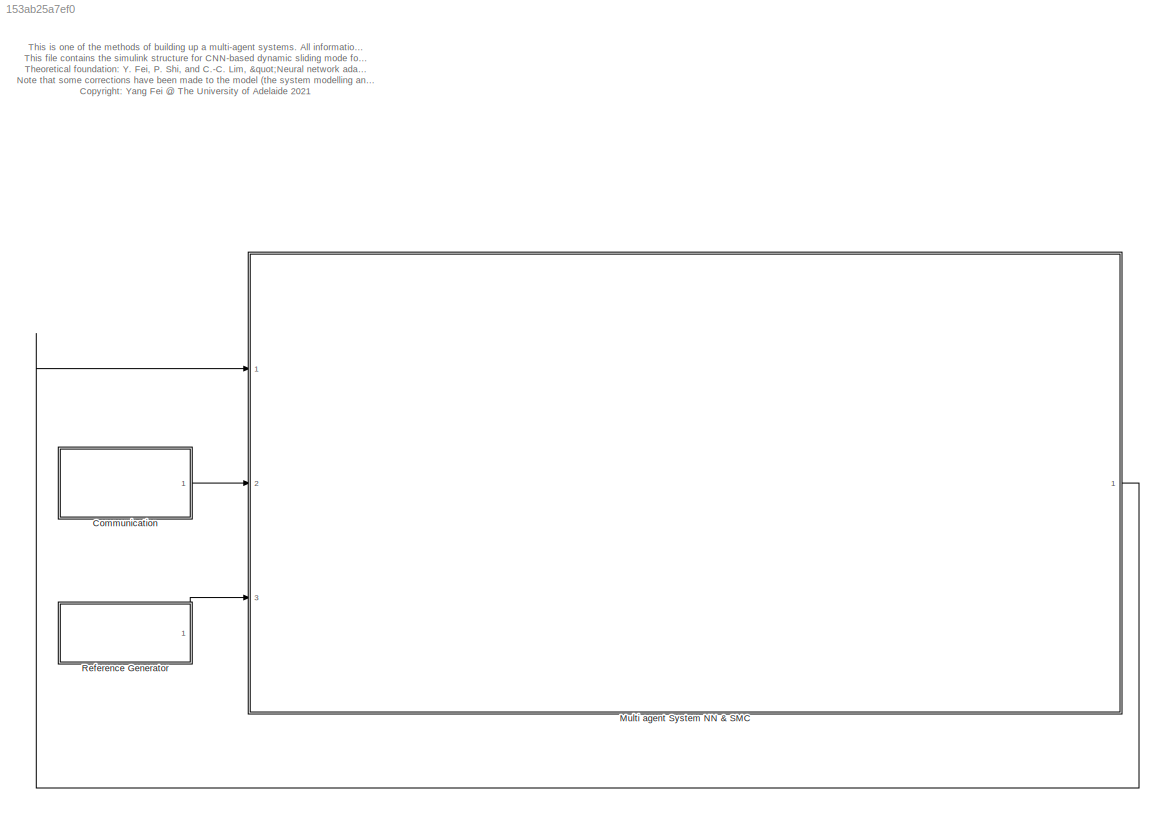
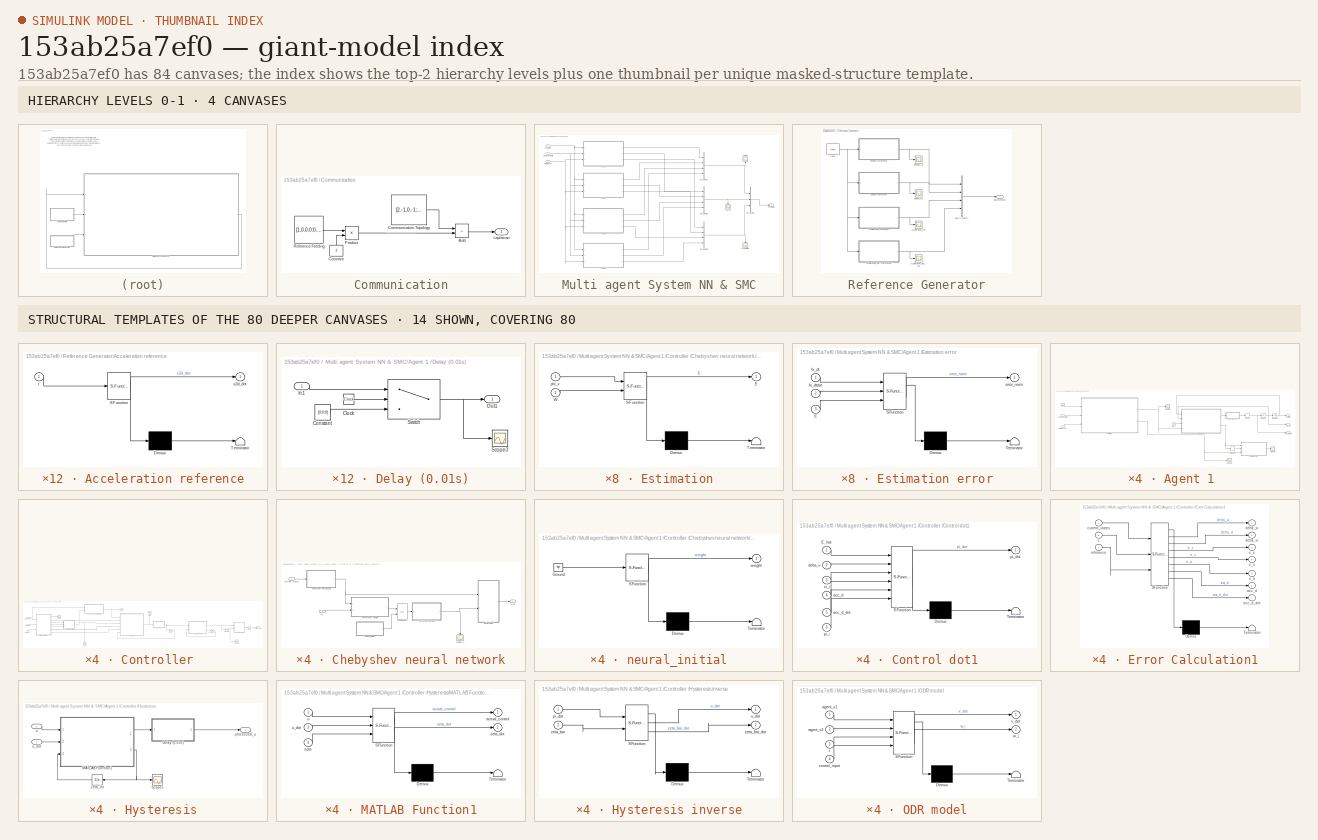
[diagram: thumbnail index - top-2 hierarchy levels (4 canvases) + 14 structural-template representatives of the remaining 80 canvases]
MODEL slx_153ab25a7ef0
KIND model
CONFIG AbsTol = auto
CONFIG EnableMultiTasking = off
CONFIG FixedStep = 0.001
CONFIG MaxStep = auto
CONFIG MinStep = auto
CONFIG RelTol = 1e-3
CONFIG SampleTimeConstraint = Unconstrained
CONFIG SolverName = ode5
CONFIG StartTime = 0.0
CONFIG StopTime = 30.0
BLOCK [SubSystem] Communication
  Ports = [0, 1]
  RequestExecContextInheritance = off
BLOCK [Sum] Communication/Add
  IconShape = rectangular
  Ports = [2, 1]
BLOCK [Constant] Communication/Communication Topology
  Value = [2,-1,0,-1;-1,2,-1,0;0,-1,2,-1;-1,0,-1,2]
  VectorParams1D = off
BLOCK [Constant] Communication/Constant
  NameLocation = right
  Value = 2
  VectorParams1D = off
BLOCK [Outport] Communication/Laplacian
  VectorParamsAs1DForOutWhenUnconnected = off
BLOCK [Product] Communication/Product
  Ports = [2, 1]
BLOCK [Constant] Communication/Reference Feeding
  Value = [1,0,0,0;0,1,0,0;0,0,1,0;0,0,0,1]
  VectorParams1D = off
BLOCK [SubSystem] Multi agent System NN & SMC
  Ports = [3, 1]
  RequestExecContextInheritance = off
BLOCK [Scope] Multi agent System NN & SMC/Acceleration
  Floating = off
  NameLocation = left
  NumInputPorts = 1
  Ports = [1]
  ScopeSpecificationString = Simulink.scopes.TimeScopeBlockCfg('CurrentConfiguration', extmgr.ConfigurationSet(extmgr.Configuration('Core','General UI',true),extmgr.Configuration('Core','Source UI',true),extmgr.Configuration('Sources','WiredSimulink',true,'DataLoggingVariableName','Acc_agents','DataLogging',true,'DataLoggingSaveFormat','Array'),extmgr.Configuration('Visuals','Time Domain',true,'SerializedDisplays',{struct('Mi...<+1604ch>
BLOCK [SubSystem] Multi agent System NN & SMC/Agent 1 
  Ports = [3, 3]
  RequestExecContextInheritance = off
BLOCK [Outport] Multi agent System NN & SMC/Agent 1 /Acceleration
  Port = 3
  VectorParamsAs1DForOutWhenUnconnected = off
BLOCK [Clock] Multi agent System NN & SMC/Agent 1 /Clock
BLOCK [SubSystem] Multi agent System NN & SMC/Agent 1 /Controller 
  Ports = [3, 2]
  RequestExecContextInheritance = off
BLOCK [SubSystem] Multi agent System NN & SMC/Agent 1 /Controller /Chebyshev neural network
  Ports = [2, 1]
  RequestExecContextInheritance = off
BLOCK [SubSystem] Multi agent System NN & SMC/Agent 1 /Controller /Chebyshev neural network/Chebyshev Polynomials
  ErrorFcn = Stateflow.Translate.translate
  PermitHierarchicalResolution = ExplicitOnly
  Ports = [1, 1]
  RequestExecContextInheritance = off
  SFBlockType = MATLAB Function
  TreatAsAtomicUnit = on
BLOCK [Demux] Multi agent System NN & SMC/Agent 1 /Controller /Chebyshev neural network/Chebyshev Polynomials/ Demux 
  Outputs = 1
  Ports = [1, 1]
BLOCK [S-Function] Multi agent System NN & SMC/Agent 1 /Controller /Chebyshev neural network/Chebyshev Polynomials/ SFunction 
  EnableBusSupport = on
  FunctionName = sf_sfun
  PortCounts = [1 2]
  Ports = [1, 2]
  SFcnIsStateOwnerBlock = off
  SFunctionDeploymentMode = off
  Tag = Stateflow S-Function 1
BLOCK [Terminator] Multi agent System NN & SMC/Agent 1 /Controller /Chebyshev neural network/Chebyshev Polynomials/ Terminator 
BLOCK [Inport] Multi agent System NN & SMC/Agent 1 /Controller /Chebyshev neural network/Chebyshev Polynomials/current_states
BLOCK [Outport] Multi agent System NN & SMC/Agent 1 /Controller /Chebyshev neural network/Chebyshev Polynomials/phi_x
  VectorParamsAs1DForOutWhenUnconnected = off
BLOCK [Inport] Multi agent System NN & SMC/Agent 1 /Controller /Chebyshev neural network/Current states
BLOCK [Outport] Multi agent System NN & SMC/Agent 1 /Controller /Chebyshev neural network/E_hat
BLOCK [SubSystem] Multi agent System NN & SMC/Agent 1 /Controller /Chebyshev neural network/Estimation
  ErrorFcn = Stateflow.Translate.translate
  PermitHierarchicalResolution = ExplicitOnly
  Ports = [2, 1]
  RequestExecContextInheritance = off
  SFBlockType = MATLAB Function
  TreatAsAtomicUnit = on
BLOCK [Demux] Multi agent System NN & SMC/Agent 1 /Controller /Chebyshev neural network/Estimation/ Demux 
  Outputs = 1
  Ports = [1, 1]
BLOCK [S-Function] Multi agent System NN & SMC/Agent 1 /Controller /Chebyshev neural network/Estimation/ SFunction 
  EnableBusSupport = on
  FunctionName = sf_sfun
  PortCounts = [2 2]
  Ports = [2, 2]
  SFcnIsStateOwnerBlock = off
  SFunctionDeploymentMode = off
  Tag = Stateflow S-Function 4
BLOCK [Terminator] Multi agent System NN & SMC/Agent 1 /Controller /Chebyshev neural network/Estimation/ Terminator 
BLOCK [Outport] Multi agent System NN & SMC/Agent 1 /Controller /Chebyshev neural network/Estimation/E
  VectorParamsAs1DForOutWhenUnconnected = off
BLOCK [Inport] Multi agent System NN & SMC/Agent 1 /Controller /Chebyshev neural network/Estimation/W
  Port = 2
BLOCK [Inport] Multi agent System NN & SMC/Agent 1 /Controller /Chebyshev neural network/Estimation/phi_x
BLOCK [Integrator] Multi agent System NN & SMC/Agent 1 /Controller /Chebyshev neural network/Integrator
  ContinuousStateAttributes = 'Neural_weights'
  InitialCondition = [0 0 0]'
  InitialConditionSource = external
  LowerSaturationLimit = -200
  Ports = [2, 1]
  UpperSaturationLimit = 200
BLOCK [SubSystem] Multi agent System NN & SMC/Agent 1 /Controller /Chebyshev neural network/MATLAB Function
  ErrorFcn = Stateflow.Translate.translate
  PermitHierarchicalResolution = ExplicitOnly
  Ports = [1, 1]
  RequestExecContextInheritance = off
  SFBlockType = MATLAB Function
  TreatAsAtomicUnit = on
BLOCK [Demux] Multi agent System NN & SMC/Agent 1 /Controller /Chebyshev neural network/MATLAB Function/ Demux 
  Outputs = 1
  Ports = [1, 1]
BLOCK [S-Function] Multi agent System NN & SMC/Agent 1 /Controller /Chebyshev neural network/MATLAB Function/ SFunction 
  EnableBusSupport = on
  FunctionName = sf_sfun
  PortCounts = [1 2]
  Ports = [1, 2]
  SFcnIsStateOwnerBlock = off
  SFunctionDeploymentMode = off
  Tag = Stateflow S-Function 47
BLOCK [Terminator] Multi agent System NN & SMC/Agent 1 /Controller /Chebyshev neural network/MATLAB Function/ Terminator 
BLOCK [Outport] Multi agent System NN & SMC/Agent 1 /Controller /Chebyshev neural network/MATLAB Function/W
  VectorParamsAs1DForOutWhenUnconnected = off
BLOCK [Inport] Multi agent System NN & SMC/Agent 1 /Controller /Chebyshev neural network/MATLAB Function/W 
BLOCK [SubSystem] Multi agent System NN & SMC/Agent 1 /Controller /Chebyshev neural network/Parameter Tuning
  ErrorFcn = Stateflow.Translate.translate
  PermitHierarchicalResolution = ExplicitOnly
  Ports = [2, 1]
  RequestExecContextInheritance = off
  SFBlockType = MATLAB Function
  TreatAsAtomicUnit = on
BLOCK [Demux] Multi agent System NN & SMC/Agent 1 /Controller /Chebyshev neural network/Parameter Tuning/ Demux 
  Outputs = 1
  Ports = [1, 1]
BLOCK [S-Function] Multi agent System NN & SMC/Agent 1 /Controller /Chebyshev neural network/Parameter Tuning/ SFunction 
  EnableBusSupport = on
  FunctionName = sf_sfun
  PortCounts = [2 2]
  Ports = [2, 2]
  SFcnIsStateOwnerBlock = off
  SFunctionDeploymentMode = off
  Tag = Stateflow S-Function 12
BLOCK [Terminator] Multi agent System NN & SMC/Agent 1 /Controller /Chebyshev neural network/Parameter Tuning/ Terminator 
BLOCK [Outport] Multi agent System NN & SMC/Agent 1 /Controller /Chebyshev neural network/Parameter Tuning/W_dot
  VectorParamsAs1DForOutWhenUnconnected = off
BLOCK [Inport] Multi agent System NN & SMC/Agent 1 /Controller /Chebyshev neural network/Parameter Tuning/phi_x
BLOCK [Inport] Multi agent System NN & SMC/Agent 1 /Controller /Chebyshev neural network/Parameter Tuning/xi
  Port = 2
BLOCK [Scope] Multi agent System NN & SMC/Agent 1 /Controller /Chebyshev neural network/Weight 1
  Floating = off
  NameLocation = left
  NumInputPorts = 1
  Ports = [1]
  ScopeSpecificationString = Simulink.scopes.TimeScopeBlockCfg('CurrentConfiguration', extmgr.ConfigurationSet(extmgr.Configuration('Core','General UI',true),extmgr.Configuration('Core','Source UI',true),extmgr.Configuration('Sources','WiredSimulink',true,'DataLoggingVariableName','ScopeData2','DataLoggingSaveFormat','Structure'),extmgr.Configuration('Visuals','Time Domain',true,'SerializedDisplays',{struct('MinYLimReal','-0....<+2648ch>  <repeated x4 — deduplicated; at blocks: Weight 1>
BLOCK [SubSystem] Multi agent System NN & SMC/Agent 1 /Controller /Chebyshev neural network/neural_initial
  ErrorFcn = Stateflow.Translate.translate
  PermitHierarchicalResolution = ExplicitOnly
  Ports = [0, 1]
  RequestExecContextInheritance = off
  SFBlockType = MATLAB Function
  TreatAsAtomicUnit = on
BLOCK [Demux] Multi agent System NN & SMC/Agent 1 /Controller /Chebyshev neural network/neural_initial/ Demux 
  Outputs = 1
  Ports = [1, 1]
BLOCK [Ground] Multi agent System NN & SMC/Agent 1 /Controller /Chebyshev neural network/neural_initial/ Ground 
BLOCK [S-Function] Multi agent System NN & SMC/Agent 1 /Controller /Chebyshev neural network/neural_initial/ SFunction 
  EnableBusSupport = on
  FunctionName = sf_sfun
  PortCounts = [1 2]
  Ports = [1, 2]
  SFcnIsStateOwnerBlock = off
  SFunctionDeploymentMode = off
  Tag = Stateflow S-Function 14
BLOCK [Terminator] Multi agent System NN & SMC/Agent 1 /Controller /Chebyshev neural network/neural_initial/ Terminator 
BLOCK [Outport] Multi agent System NN & SMC/Agent 1 /Controller /Chebyshev neural network/neural_initial/weight
  VectorParamsAs1DForOutWhenUnconnected = off
BLOCK [Inport] Multi agent System NN & SMC/Agent 1 /Controller /Chebyshev neural network/xi_i
  Port = 2
BLOCK [SubSystem] Multi agent System NN & SMC/Agent 1 /Controller /Control dot1
  ErrorFcn = Stateflow.Translate.translate
  PermitHierarchicalResolution = ExplicitOnly
  Ports = [6, 1]
  RequestExecContextInheritance = off
  SFBlockType = MATLAB Function
  TreatAsAtomicUnit = on
BLOCK [Demux] Multi agent System NN & SMC/Agent 1 /Controller /Control dot1/ Demux 
  Outputs = 1
  Ports = [1, 1]
BLOCK [S-Function] Multi agent System NN & SMC/Agent 1 /Controller /Control dot1/ SFunction 
  EnableBusSupport = on
  FunctionName = sf_sfun
  PortCounts = [6 2]
  Ports = [6, 2]
  SFcnIsStateOwnerBlock = off
  SFunctionDeploymentMode = off
  Tag = Stateflow S-Function 3
BLOCK [Terminator] Multi agent System NN & SMC/Agent 1 /Controller /Control dot1/ Terminator 
BLOCK [Inport] Multi agent System NN & SMC/Agent 1 /Controller /Control dot1/E_hat
BLOCK [Inport] Multi agent System NN & SMC/Agent 1 /Controller /Control dot1/acc_d
  Port = 4
BLOCK [Inport] Multi agent System NN & SMC/Agent 1 /Controller /Control dot1/acc_d_dot
  Port = 5
BLOCK [Inport] Multi agent System NN & SMC/Agent 1 /Controller /Control dot1/delta_v
  Port = 2
BLOCK [Outport] Multi agent System NN & SMC/Agent 1 /Controller /Control dot1/pi_dot
  VectorParamsAs1DForOutWhenUnconnected = off
BLOCK [Inport] Multi agent System NN & SMC/Agent 1 /Controller /Control dot1/pi_i
  Port = 6
BLOCK [Inport] Multi agent System NN & SMC/Agent 1 /Controller /Control dot1/xi_i
  Port = 3
BLOCK [Outport] Multi agent System NN & SMC/Agent 1 /Controller /Control_output
BLOCK [SubSystem] Multi agent System NN & SMC/Agent 1 /Controller /Delay (0.01s)
  Ports = [1, 1]
  RequestExecContextInheritance = off
BLOCK [Clock] Multi agent System NN & SMC/Agent 1 /Controller /Delay (0.01s)/Clock
BLOCK [Constant] Multi agent System NN & SMC/Agent 1 /Controller /Delay (0.01s)/Constant
  Value = [0;0;0]
BLOCK [Inport] Multi agent System NN & SMC/Agent 1 /Controller /Delay (0.01s)/In1
BLOCK [Scope] Multi agent System NN & SMC/Agent 1 /Controller /Delay (0.01s)/Scope3
  Floating = off
  NumInputPorts = 1
  Ports = [1]
  ScopeSpecificationString = Simulink.scopes.TimeScopeBlockCfg('CurrentConfiguration', extmgr.ConfigurationSet(extmgr.Configuration('Core','General UI',true),extmgr.Configuration('Core','Source UI',true),extmgr.Configuration('Sources','WiredSimulink',true,'DataLoggingVariableName','ScopeData1'),extmgr.Configuration('Visuals','Time Domain',true,'SerializedDisplays',{struct('MinYLimReal','-1.24781','MaxYLimReal','1.24976','YLab...<+1419ch>  <repeated x12 — deduplicated; at blocks: Scope3>
BLOCK [Switch] Multi agent System NN & SMC/Agent 1 /Controller /Delay (0.01s)/Switch
  Criteria = u2 > Threshold
  InputSameDT = off
  SaturateOnIntegerOverflow = off
  Threshold = 0.01
BLOCK [Outport] Multi agent System NN & SMC/Agent 1 /Controller /Delay (0.01s)/pi_dot
  VectorParamsAs1DForOutWhenUnconnected = off
BLOCK [SubSystem] Multi agent System NN & SMC/Agent 1 /Controller /Dynamic Sliding Variable
  ErrorFcn = Stateflow.Translate.translate
  PermitHierarchicalResolution = ExplicitOnly
  Ports = [3, 1]
  RequestExecContextInheritance = off
  SFBlockType = MATLAB Function
  TreatAsAtomicUnit = on
BLOCK [Demux] Multi agent System NN & SMC/Agent 1 /Controller /Dynamic Sliding Variable/ Demux 
  Outputs = 1
  Ports = [1, 1]
BLOCK [S-Function] Multi agent System NN & SMC/Agent 1 /Controller /Dynamic Sliding Variable/ SFunction 
  EnableBusSupport = on
  FunctionName = sf_sfun
  PortCounts = [3 2]
  Ports = [3, 2]
  SFcnIsStateOwnerBlock = off
  SFunctionDeploymentMode = off
  Tag = Stateflow S-Function 41
BLOCK [Terminator] Multi agent System NN & SMC/Agent 1 /Controller /Dynamic Sliding Variable/ Terminator 
BLOCK [Inport] Multi agent System NN & SMC/Agent 1 /Controller /Dynamic Sliding Variable/e_a
  Port = 3
BLOCK [Inport] Multi agent System NN & SMC/Agent 1 /Controller /Dynamic Sliding Variable/e_v
  Port = 2
BLOCK [Inport] Multi agent System NN & SMC/Agent 1 /Controller /Dynamic Sliding Variable/e_x
BLOCK [Outport] Multi agent System NN & SMC/Agent 1 /Controller /Dynamic Sliding Variable/xi
  VectorParamsAs1DForOutWhenUnconnected = off
BLOCK [Outport] Multi agent System NN & SMC/Agent 1 /Controller /E_hat
  Port = 2
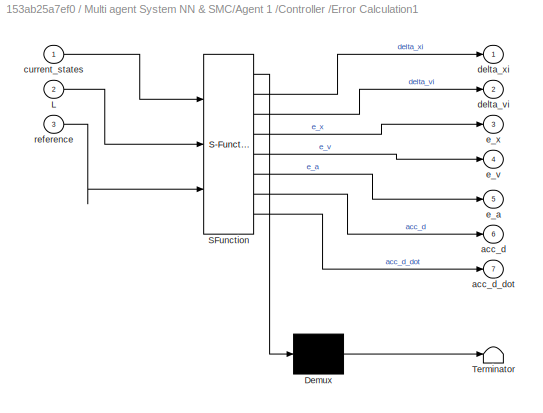
BLOCK [SubSystem] Multi agent System NN & SMC/Agent 1 /Controller /Error Calculation1
  ErrorFcn = Stateflow.Translate.translate
  PermitHierarchicalResolution = ExplicitOnly
  Ports = [3, 7]
  RequestExecContextInheritance = off
  SFBlockType = MATLAB Function
  TreatAsAtomicUnit = on
BLOCK [Demux] Multi agent System NN & SMC/Agent 1 /Controller /Error Calculation1/ Demux 
  Outputs = 1
  Ports = [1, 1]
BLOCK [S-Function] Multi agent System NN & SMC/Agent 1 /Controller /Error Calculation1/ SFunction 
  EnableBusSupport = on
  FunctionName = sf_sfun
  PortCounts = [3 8]
  Ports = [3, 8]
  SFcnIsStateOwnerBlock = off
  SFunctionDeploymentMode = off
  Tag = Stateflow S-Function 42
BLOCK [Terminator] Multi agent System NN & SMC/Agent 1 /Controller /Error Calculation1/ Terminator 
BLOCK [Inport] Multi agent System NN & SMC/Agent 1 /Controller /Error Calculation1/L
  Port = 2
BLOCK [Outport] Multi agent System NN & SMC/Agent 1 /Controller /Error Calculation1/acc_d
  Port = 6
BLOCK [Outport] Multi agent System NN & SMC/Agent 1 /Controller /Error Calculation1/acc_d_dot
  Port = 7
BLOCK [Inport] Multi agent System NN & SMC/Agent 1 /Controller /Error Calculation1/current_states
BLOCK [Outport] Multi agent System NN & SMC/Agent 1 /Controller /Error Calculation1/delta_vi
  Port = 2
BLOCK [Outport] Multi agent System NN & SMC/Agent 1 /Controller /Error Calculation1/delta_xi
  VectorParamsAs1DForOutWhenUnconnected = off
BLOCK [Outport] Multi agent System NN & SMC/Agent 1 /Controller /Error Calculation1/e_a
  Port = 5
BLOCK [Outport] Multi agent System NN & SMC/Agent 1 /Controller /Error Calculation1/e_v
  Port = 4
BLOCK [Outport] Multi agent System NN & SMC/Agent 1 /Controller /Error Calculation1/e_x
  Port = 3
BLOCK [Inport] Multi agent System NN & SMC/Agent 1 /Controller /Error Calculation1/reference
  Port = 3
BLOCK [SubSystem] Multi agent System NN & SMC/Agent 1 /Controller /Hysteresis
  Ports = [2, 1]
  RequestExecContextInheritance = off
BLOCK [SubSystem] Multi agent System NN & SMC/Agent 1 /Controller /Hysteresis inverse
  ErrorFcn = Stateflow.Translate.translate
  PermitHierarchicalResolution = ExplicitOnly
  Ports = [2, 2]
  RequestExecContextInheritance = off
  SFBlockType = MATLAB Function
  TreatAsAtomicUnit = on
BLOCK [Demux] Multi agent System NN & SMC/Agent 1 /Controller /Hysteresis inverse/ Demux 
  Outputs = 1
  Ports = [1, 1]
BLOCK [S-Function] Multi agent System NN & SMC/Agent 1 /Controller /Hysteresis inverse/ SFunction 
  EnableBusSupport = on
  FunctionName = sf_sfun
  PortCounts = [2 3]
  Ports = [2, 3]
  SFcnIsStateOwnerBlock = off
  SFunctionDeploymentMode = off
  Tag = Stateflow S-Function 9
BLOCK [Terminator] Multi agent System NN & SMC/Agent 1 /Controller /Hysteresis inverse/ Terminator 
BLOCK [Inport] Multi agent System NN & SMC/Agent 1 /Controller /Hysteresis inverse/pi_dot
BLOCK [Outport] Multi agent System NN & SMC/Agent 1 /Controller /Hysteresis inverse/u_dot
BLOCK [Inport] Multi agent System NN & SMC/Agent 1 /Controller /Hysteresis inverse/zeta_bar
  Port = 2
BLOCK [Outport] Multi agent System NN & SMC/Agent 1 /Controller /Hysteresis inverse/zeta_bar_dot
  Port = 2
BLOCK [SubSystem] Multi agent System NN & SMC/Agent 1 /Controller /Hysteresis/Delay (0.01s)
  Ports = [1, 1]
  RequestExecContextInheritance = off
BLOCK [Clock] Multi agent System NN & SMC/Agent 1 /Controller /Hysteresis/Delay (0.01s)/Clock
BLOCK [Constant] Multi agent System NN & SMC/Agent 1 /Controller /Hysteresis/Delay (0.01s)/Constant
  Value = [0;0;0]
BLOCK [Outport] Multi agent System NN & SMC/Agent 1 /Controller /Hysteresis/Delay (0.01s)/Out1
  VectorParamsAs1DForOutWhenUnconnected = off
BLOCK [Scope] Multi agent System NN & SMC/Agent 1 /Controller /Hysteresis/Delay (0.01s)/Scope3
  Floating = off
  NumInputPorts = 1
  Ports = [1]
BLOCK [Switch] Multi agent System NN & SMC/Agent 1 /Controller /Hysteresis/Delay (0.01s)/Switch
  Criteria = u2 > Threshold
  InputSameDT = off
  SaturateOnIntegerOverflow = off
  Threshold = 0.01
BLOCK [Inport] Multi agent System NN & SMC/Agent 1 /Controller /Hysteresis/Delay (0.01s)/output
BLOCK [SubSystem] Multi agent System NN & SMC/Agent 1 /Controller /Hysteresis/MATLAB Function1
  ErrorFcn = Stateflow.Translate.translate
  PermitHierarchicalResolution = ExplicitOnly
  Ports = [3, 2]
  RequestExecContextInheritance = off
  SFBlockType = MATLAB Function
  TreatAsAtomicUnit = on
BLOCK [Demux] Multi agent System NN & SMC/Agent 1 /Controller /Hysteresis/MATLAB Function1/ Demux 
  Outputs = 1
  Ports = [1, 1]
BLOCK [S-Function] Multi agent System NN & SMC/Agent 1 /Controller /Hysteresis/MATLAB Function1/ SFunction 
  EnableBusSupport = on
  FunctionName = sf_sfun
  PortCounts = [3 3]
  Ports = [3, 3]
  SFcnIsStateOwnerBlock = off
  SFunctionDeploymentMode = off
  Tag = Stateflow S-Function 5
BLOCK [Terminator] Multi agent System NN & SMC/Agent 1 /Controller /Hysteresis/MATLAB Function1/ Terminator 
BLOCK [Outport] Multi agent System NN & SMC/Agent 1 /Controller /Hysteresis/MATLAB Function1/actual_control
  VectorParamsAs1DForOutWhenUnconnected = off
BLOCK [Inport] Multi agent System NN & SMC/Agent 1 /Controller /Hysteresis/MATLAB Function1/u
BLOCK [Inport] Multi agent System NN & SMC/Agent 1 /Controller /Hysteresis/MATLAB Function1/u_dot
  Port = 2
BLOCK [Inport] Multi agent System NN & SMC/Agent 1 /Controller /Hysteresis/MATLAB Function1/zeta
  Port = 3
BLOCK [Outport] Multi agent System NN & SMC/Agent 1 /Controller /Hysteresis/MATLAB Function1/zeta_dot
  Port = 2
  VectorParamsAs1DForOutWhenUnconnected = off
BLOCK [Scope] Multi agent System NN & SMC/Agent 1 /Controller /Hysteresis/Scope1
  Floating = off
  NumInputPorts = 1
  Ports = [1]
  ScopeSpecificationString = Simulink.scopes.TimeScopeBlockCfg('CurrentConfiguration', extmgr.ConfigurationSet(extmgr.Configuration('Core','General UI',true),extmgr.Configuration('Core','Source UI',true),extmgr.Configuration('Sources','WiredSimulink',true,'DataLoggingVariableName','ScopeData3'),extmgr.Configuration('Visuals','Time Domain',true,'SerializedDisplays',{struct('MinYLimReal','-58346682.18205','MaxYLimReal','5251200...<+1575ch>  <repeated x4 — deduplicated; at blocks: Scope1>
BLOCK [Outport] Multi agent System NN & SMC/Agent 1 /Controller /Hysteresis/processed_u
  VectorParamsAs1DForOutWhenUnconnected = off
BLOCK [Inport] Multi agent System NN & SMC/Agent 1 /Controller /Hysteresis/u
  Port = 2
BLOCK [Inport] Multi agent System NN & SMC/Agent 1 /Controller /Hysteresis/u_dot
BLOCK [Integrator] Multi agent System NN & SMC/Agent 1 /Controller /Hysteresis/zeta_int
  ContinuousStateAttributes = 'speed'
  InitialCondition = [0;0;0]
  Ports = [1, 1]
BLOCK [Integrator] Multi agent System NN & SMC/Agent 1 /Controller /Integrator3
  ContinuousStateAttributes = 'Control_output'
  InitialCondition = [0;0;0]
  LowerSaturationLimit = -200
  Ports = [1, 1]
  UpperSaturationLimit = 200
BLOCK [Inport] Multi agent System NN & SMC/Agent 1 /Controller /Laplacian
  Port = 2
BLOCK [Memory] Multi agent System NN & SMC/Agent 1 /Controller /Memory
  InitialCondition = [0;0;0]
  LinearizeMemory = on
BLOCK [Inport] Multi agent System NN & SMC/Agent 1 /Controller /Reference
  Port = 3
BLOCK [Scope] Multi agent System NN & SMC/Agent 1 /Controller /Scope
  Floating = off
  NameLocation = right
  NumInputPorts = 1
  Ports = [1]
  ScopeSpecificationString = Simulink.scopes.TimeScopeBlockCfg('CurrentConfiguration', extmgr.ConfigurationSet(extmgr.Configuration('Core','General UI',true),extmgr.Configuration('Core','Source UI',true),extmgr.Configuration('Sources','WiredSimulink',true,'DataLoggingVariableName','ScopeData6','DataLoggingSaveFormat','Array'),extmgr.Configuration('Visuals','Time Domain',true,'SerializedDisplays',{struct('MinYLimReal','-7035.6...<+1529ch>  <repeated x4 — deduplicated; at blocks: Scope>
BLOCK [Scope] Multi agent System NN & SMC/Agent 1 /Controller /Scope2
  Floating = off
  NumInputPorts = 1
  Ports = [1]
  ScopeSpecificationString = Simulink.scopes.TimeScopeBlockCfg('CurrentConfiguration', extmgr.ConfigurationSet(extmgr.Configuration('Core','General UI',true),extmgr.Configuration('Core','Source UI',true),extmgr.Configuration('Sources','WiredSimulink',true,'DataLoggingVariableName','actual_ctr_1','DataLogging',true,'DataLoggingSaveFormat','Array'),extmgr.Configuration('Visuals','Time Domain',true,'SerializedDisplays',{struct('...<+1530ch>
BLOCK [Inport] Multi agent System NN & SMC/Agent 1 /Controller /current_states
BLOCK [Scope] Multi agent System NN & SMC/Agent 1 /Controller /delta_x
  Floating = off
  NameLocation = right
  NumInputPorts = 1
  Ports = [1]
  ScopeSpecificationString = Simulink.scopes.TimeScopeBlockCfg('CurrentConfiguration', extmgr.ConfigurationSet(extmgr.Configuration('Core','General UI',true),extmgr.Configuration('Core','Source UI',true),extmgr.Configuration('Sources','WiredSimulink',true,'DataLoggingVariableName','delta_x1','DataLogging',true,'DataLoggingSaveFormat','Array'),extmgr.Configuration('Visuals','Time Domain',true,'SerializedDisplays',{struct('MinY...<+1543ch>
BLOCK [Integrator] Multi agent System NN & SMC/Agent 1 /Controller /int_pi
  ContinuousStateAttributes = 'Control_output'
  InitialCondition = [0;0;0]
  LowerSaturationLimit = -200
  Ports = [1, 1]
  UpperSaturationLimit = 200
BLOCK [Integrator] Multi agent System NN & SMC/Agent 1 /Controller /int_zeta_bar
  ContinuousStateAttributes = 'Control_output'
  InitialCondition = [0;0;0]
  LowerSaturationLimit = -200
  Ports = [1, 1]
  UpperSaturationLimit = 200
BLOCK [Scope] Multi agent System NN & SMC/Agent 1 /Controller /xi_i
  Floating = off
  NameLocation = left
  NumInputPorts = 1
  Ports = [1]
  ScopeSpecificationString = Simulink.scopes.TimeScopeBlockCfg('CurrentConfiguration', extmgr.ConfigurationSet(extmgr.Configuration('Core','General UI',true),extmgr.Configuration('Core','Source UI',true),extmgr.Configuration('Sources','WiredSimulink',true,'DataLoggingVariableName','xi_1','DataLogging',true,'DataLoggingSaveFormat','Array'),extmgr.Configuration('Visuals','Time Domain',true,'SerializedDisplays',{struct('MinYLimR...<+1513ch>
BLOCK [SubSystem] Multi agent System NN & SMC/Agent 1 /Delay (0.01s)
  Ports = [1, 1]
  RequestExecContextInheritance = off
BLOCK [Clock] Multi agent System NN & SMC/Agent 1 /Delay (0.01s)/Clock
BLOCK [Constant] Multi agent System NN & SMC/Agent 1 /Delay (0.01s)/Constant
  Value = [0;0;0]
BLOCK [Inport] Multi agent System NN & SMC/Agent 1 /Delay (0.01s)/In1
BLOCK [Outport] Multi agent System NN & SMC/Agent 1 /Delay (0.01s)/Out1
  VectorParamsAs1DForOutWhenUnconnected = off
BLOCK [Scope] Multi agent System NN & SMC/Agent 1 /Delay (0.01s)/Scope3
  Floating = off
  NumInputPorts = 1
  Ports = [1]
BLOCK [Switch] Multi agent System NN & SMC/Agent 1 /Delay (0.01s)/Switch
  Criteria = u2 > Threshold
  InputSameDT = off
  SaturateOnIntegerOverflow = off
  Threshold = 0.01
BLOCK [Derivative] Multi agent System NN & SMC/Agent 1 /Derivative
BLOCK [Scope] Multi agent System NN & SMC/Agent 1 /Error norm
  Floating = off
  NumInputPorts = 1
  Ports = [1]
  ScopeSpecificationString = Simulink.scopes.TimeScopeBlockCfg('CurrentConfiguration', extmgr.ConfigurationSet(extmgr.Configuration('Core','General UI',true),extmgr.Configuration('Core','Source UI',true),extmgr.Configuration('Sources','WiredSimulink',true,'DataLoggingVariableName','esti_norm_1','DataLogging',true,'DataLoggingSaveFormat','Array'),extmgr.Configuration('Visuals','Time Domain',true,'SerializedDisplays',{struct('M...<+1506ch>
BLOCK [SubSystem] Multi agent System NN & SMC/Agent 1 /Estimation error
  ErrorFcn = Stateflow.Translate.translate
  PermitHierarchicalResolution = ExplicitOnly
  Ports = [3, 1]
  RequestExecContextInheritance = off
  SFBlockType = MATLAB Function
  TreatAsAtomicUnit = on
BLOCK [Demux] Multi agent System NN & SMC/Agent 1 /Estimation error/ Demux 
  Outputs = 1
  Ports = [1, 1]
BLOCK [S-Function] Multi agent System NN & SMC/Agent 1 /Estimation error/ SFunction 
  EnableBusSupport = on
  FunctionName = sf_sfun
  PortCounts = [3 2]
  Ports = [3, 2]
  SFcnIsStateOwnerBlock = off
  SFunctionDeploymentMode = off
  Tag = Stateflow S-Function 21
BLOCK [Terminator] Multi agent System NN & SMC/Agent 1 /Estimation error/ Terminator 
BLOCK [Inport] Multi agent System NN & SMC/Agent 1 /Estimation error/E
  Port = 3
BLOCK [Outport] Multi agent System NN & SMC/Agent 1 /Estimation error/error_norm
  VectorParamsAs1DForOutWhenUnconnected = off
BLOCK [Inport] Multi agent System NN & SMC/Agent 1 /Estimation error/fx_dt
BLOCK [Inport] Multi agent System NN & SMC/Agent 1 /Estimation error/fx_dtdot
  Port = 2
BLOCK [Integrator] Multi agent System NN & SMC/Agent 1 /Integrator
  ContinuousStateAttributes = 'speed'
  InitialCondition = [0;0;0]
  Ports = [1, 1]
BLOCK [Integrator] Multi agent System NN & SMC/Agent 1 /Integrator1
  ContinuousStateAttributes = 'position'
  InitialCondition = [2;3;0]
  Ports = [1, 1]
  Tag = Position_x1
BLOCK [Inport] Multi agent System NN & SMC/Agent 1 /Laplacian Matrix
  Port = 2
BLOCK [Memory] Multi agent System NN & SMC/Agent 1 /Memory
  InitialCondition = [0;0;0]
  LinearizeMemory = on
BLOCK [SubSystem] Multi agent System NN & SMC/Agent 1 /ODR model
  ErrorFcn = Stateflow.Translate.translate
  PermitHierarchicalResolution = ExplicitOnly
  Ports = [4, 2]
  RequestExecContextInheritance = off
  SFBlockType = MATLAB Function
  TreatAsAtomicUnit = on
BLOCK [Demux] Multi agent System NN & SMC/Agent 1 /ODR model/ Demux 
  Outputs = 1
  Ports = [1, 1]
BLOCK [S-Function] Multi agent System NN & SMC/Agent 1 /ODR model/ SFunction 
  EnableBusSupport = on
  FunctionName = sf_sfun
  PortCounts = [4 3]
  Ports = [4, 3]
  SFcnIsStateOwnerBlock = off
  SFunctionDeploymentMode = off
  Tag = Stateflow S-Function 2
BLOCK [Terminator] Multi agent System NN & SMC/Agent 1 /ODR model/ Terminator 
BLOCK [Inport] Multi agent System NN & SMC/Agent 1 /ODR model/agent_x1
BLOCK [Inport] Multi agent System NN & SMC/Agent 1 /ODR model/agent_x2
  Port = 2
BLOCK [Inport] Multi agent System NN & SMC/Agent 1 /ODR model/control_input
  Port = 4
BLOCK [Inport] Multi agent System NN & SMC/Agent 1 /ODR model/t
  Port = 3
BLOCK [Outport] Multi agent System NN & SMC/Agent 1 /ODR model/v_dot
  VectorParamsAs1DForOutWhenUnconnected = off
BLOCK [Outport] Multi agent System NN & SMC/Agent 1 /ODR model/w_i
  Port = 2
  VectorParamsAs1DForOutWhenUnconnected = off
BLOCK [Outport] Multi agent System NN & SMC/Agent 1 /Position
  VectorParamsAs1DForOutWhenUnconnected = off
BLOCK [Inport] Multi agent System NN & SMC/Agent 1 /References 
  Port = 3
BLOCK [Scope] Multi agent System NN & SMC/Agent 1 /Scope
  Floating = off
  NumInputPorts = 1
  Ports = [1]
  ScopeSpecificationString = Simulink.scopes.TimeScopeBlockCfg('CurrentConfiguration', extmgr.ConfigurationSet(extmgr.Configuration('Core','General UI',true),extmgr.Configuration('Core','Source UI',true),extmgr.Configuration('Sources','WiredSimulink',true,'DataLoggingVariableName','real_ctr_1','DataLoggingSaveFormat','Array'),extmgr.Configuration('Visuals','Time Domain',true,'SerializedDisplays',{struct('MinYLimReal','-16.584...<+1520ch>  <repeated x4 — deduplicated; at blocks: Scope>
BLOCK [Scope] Multi agent System NN & SMC/Agent 1 /Scope2
  Floating = off
  NumInputPorts = 1
  Ports = [1]
  ScopeSpecificationString = Simulink.scopes.TimeScopeBlockCfg('CurrentConfiguration', extmgr.ConfigurationSet(extmgr.Configuration('Core','General UI',true),extmgr.Configuration('Core','Source UI',true),extmgr.Configuration('Sources','WiredSimulink',true,'DataLoggingVariableName','ScopeData2'),extmgr.Configuration('Visuals','Time Domain',true,'SerializedDisplays',{struct('MinYLimReal','-16.29611','MaxYLimReal','16.29719','YL...<+1460ch>  <repeated x4 — deduplicated; at blocks: Scope2>
BLOCK [Inport] Multi agent System NN & SMC/Agent 1 /States
BLOCK [Outport] Multi agent System NN & SMC/Agent 1 /Velocity
  Port = 2
  VectorParamsAs1DForOutWhenUnconnected = off
BLOCK [SubSystem] Multi agent System NN & SMC/Agent 2
  Ports = [3, 3]
  RequestExecContextInheritance = off
BLOCK [Outport] Multi agent System NN & SMC/Agent 2/Acceleration
  Port = 3
  VectorParamsAs1DForOutWhenUnconnected = off
BLOCK [Clock] Multi agent System NN & SMC/Agent 2/Clock
BLOCK [SubSystem] Multi agent System NN & SMC/Agent 2/Controller 
  Ports = [3, 2]
  RequestExecContextInheritance = off
BLOCK [SubSystem] Multi agent System NN & SMC/Agent 2/Controller /Chebyshev neural network
  Ports = [2, 1]
  RequestExecContextInheritance = off
BLOCK [SubSystem] Multi agent System NN & SMC/Agent 2/Controller /Chebyshev neural network/Chebyshev Polynomials
  ErrorFcn = Stateflow.Translate.translate
  PermitHierarchicalResolution = ExplicitOnly
  Ports = [1, 1]
  RequestExecContextInheritance = off
  SFBlockType = MATLAB Function
  TreatAsAtomicUnit = on
BLOCK [Demux] Multi agent System NN & SMC/Agent 2/Controller /Chebyshev neural network/Chebyshev Polynomials/ Demux 
  Outputs = 1
  Ports = [1, 1]
BLOCK [S-Function] Multi agent System NN & SMC/Agent 2/Controller /Chebyshev neural network/Chebyshev Polynomials/ SFunction 
  EnableBusSupport = on
  FunctionName = sf_sfun
  PortCounts = [1 2]
  Ports = [1, 2]
  SFcnIsStateOwnerBlock = off
  SFunctionDeploymentMode = off
  Tag = Stateflow S-Function 6
BLOCK [Terminator] Multi agent System NN & SMC/Agent 2/Controller /Chebyshev neural network/Chebyshev Polynomials/ Terminator 
BLOCK [Inport] Multi agent System NN & SMC/Agent 2/Controller /Chebyshev neural network/Chebyshev Polynomials/current_states
BLOCK [Outport] Multi agent System NN & SMC/Agent 2/Controller /Chebyshev neural network/Chebyshev Polynomials/phi_x
  VectorParamsAs1DForOutWhenUnconnected = off
BLOCK [Inport] Multi agent System NN & SMC/Agent 2/Controller /Chebyshev neural network/Current states
BLOCK [Outport] Multi agent System NN & SMC/Agent 2/Controller /Chebyshev neural network/E_hat
BLOCK [SubSystem] Multi agent System NN & SMC/Agent 2/Controller /Chebyshev neural network/Estimation
  ErrorFcn = Stateflow.Translate.translate
  PermitHierarchicalResolution = ExplicitOnly
  Ports = [2, 1]
  RequestExecContextInheritance = off
  SFBlockType = MATLAB Function
  TreatAsAtomicUnit = on
BLOCK [Demux] Multi agent System NN & SMC/Agent 2/Controller /Chebyshev neural network/Estimation/ Demux 
  Outputs = 1
  Ports = [1, 1]
BLOCK [S-Function] Multi agent System NN & SMC/Agent 2/Controller /Chebyshev neural network/Estimation/ SFunction 
  EnableBusSupport = on
  FunctionName = sf_sfun
  PortCounts = [2 2]
  Ports = [2, 2]
  SFcnIsStateOwnerBlock = off
  SFunctionDeploymentMode = off
  Tag = Stateflow S-Function 7
BLOCK [Terminator] Multi agent System NN & SMC/Agent 2/Controller /Chebyshev neural network/Estimation/ Terminator 
BLOCK [Outport] Multi agent System NN & SMC/Agent 2/Controller /Chebyshev neural network/Estimation/E
  VectorParamsAs1DForOutWhenUnconnected = off
BLOCK [Inport] Multi agent System NN & SMC/Agent 2/Controller /Chebyshev neural network/Estimation/W
  Port = 2
BLOCK [Inport] Multi agent System NN & SMC/Agent 2/Controller /Chebyshev neural network/Estimation/phi_x
BLOCK [Integrator] Multi agent System NN & SMC/Agent 2/Controller /Chebyshev neural network/Integrator
  ContinuousStateAttributes = 'Neural_weights'
  InitialCondition = [0 0 0]'
  InitialConditionSource = external
  LowerSaturationLimit = -200
  Ports = [2, 1]
  UpperSaturationLimit = 200
BLOCK [SubSystem] Multi agent System NN & SMC/Agent 2/Controller /Chebyshev neural network/MATLAB Function
  ErrorFcn = Stateflow.Translate.translate
  PermitHierarchicalResolution = ExplicitOnly
  Ports = [1, 1]
  RequestExecContextInheritance = off
  SFBlockType = MATLAB Function
  TreatAsAtomicUnit = on
BLOCK [Demux] Multi agent System NN & SMC/Agent 2/Controller /Chebyshev neural network/MATLAB Function/ Demux 
  Outputs = 1
  Ports = [1, 1]
BLOCK [S-Function] Multi agent System NN & SMC/Agent 2/Controller /Chebyshev neural network/MATLAB Function/ SFunction 
  EnableBusSupport = on
  FunctionName = sf_sfun
  PortCounts = [1 2]
  Ports = [1, 2]
  SFcnIsStateOwnerBlock = off
  SFunctionDeploymentMode = off
  Tag = Stateflow S-Function 8
BLOCK [Terminator] Multi agent System NN & SMC/Agent 2/Controller /Chebyshev neural network/MATLAB Function/ Terminator 
BLOCK [Outport] Multi agent System NN & SMC/Agent 2/Controller /Chebyshev neural network/MATLAB Function/W
  VectorParamsAs1DForOutWhenUnconnected = off
BLOCK [Inport] Multi agent System NN & SMC/Agent 2/Controller /Chebyshev neural network/MATLAB Function/W 
BLOCK [SubSystem] Multi agent System NN & SMC/Agent 2/Controller /Chebyshev neural network/Parameter Tuning
  ErrorFcn = Stateflow.Translate.translate
  PermitHierarchicalResolution = ExplicitOnly
  Ports = [2, 1]
  RequestExecContextInheritance = off
  SFBlockType = MATLAB Function
  TreatAsAtomicUnit = on
BLOCK [Demux] Multi agent System NN & SMC/Agent 2/Controller /Chebyshev neural network/Parameter Tuning/ Demux 
  Outputs = 1
  Ports = [1, 1]
BLOCK [S-Function] Multi agent System NN & SMC/Agent 2/Controller /Chebyshev neural network/Parameter Tuning/ SFunction 
  EnableBusSupport = on
  FunctionName = sf_sfun
  PortCounts = [2 2]
  Ports = [2, 2]
  SFcnIsStateOwnerBlock = off
  SFunctionDeploymentMode = off
  Tag = Stateflow S-Function 10
BLOCK [Terminator] Multi agent System NN & SMC/Agent 2/Controller /Chebyshev neural network/Parameter Tuning/ Terminator 
BLOCK [Outport] Multi agent System NN & SMC/Agent 2/Controller /Chebyshev neural network/Parameter Tuning/W_dot
  VectorParamsAs1DForOutWhenUnconnected = off
BLOCK [Inport] Multi agent System NN & SMC/Agent 2/Controller /Chebyshev neural network/Parameter Tuning/phi_x
BLOCK [Inport] Multi agent System NN & SMC/Agent 2/Controller /Chebyshev neural network/Parameter Tuning/xi
  Port = 2
BLOCK [Scope] Multi agent System NN & SMC/Agent 2/Controller /Chebyshev neural network/Weight 1
  Floating = off
  NameLocation = left
  NumInputPorts = 1
  Ports = [1]
BLOCK [SubSystem] Multi agent System NN & SMC/Agent 2/Controller /Chebyshev neural network/neural_initial
  ErrorFcn = Stateflow.Translate.translate
  PermitHierarchicalResolution = ExplicitOnly
  Ports = [0, 1]
  RequestExecContextInheritance = off
  SFBlockType = MATLAB Function
  TreatAsAtomicUnit = on
BLOCK [Demux] Multi agent System NN & SMC/Agent 2/Controller /Chebyshev neural network/neural_initial/ Demux 
  Outputs = 1
  Ports = [1, 1]
BLOCK [Ground] Multi agent System NN & SMC/Agent 2/Controller /Chebyshev neural network/neural_initial/ Ground 
BLOCK [S-Function] Multi agent System NN & SMC/Agent 2/Controller /Chebyshev neural network/neural_initial/ SFunction 
  EnableBusSupport = on
  FunctionName = sf_sfun
  PortCounts = [1 2]
  Ports = [1, 2]
  SFcnIsStateOwnerBlock = off
  SFunctionDeploymentMode = off
  Tag = Stateflow S-Function 11
BLOCK [Terminator] Multi agent System NN & SMC/Agent 2/Controller /Chebyshev neural network/neural_initial/ Terminator 
BLOCK [Outport] Multi agent System NN & SMC/Agent 2/Controller /Chebyshev neural network/neural_initial/weight
  VectorParamsAs1DForOutWhenUnconnected = off
BLOCK [Inport] Multi agent System NN & SMC/Agent 2/Controller /Chebyshev neural network/xi_i
  Port = 2
BLOCK [SubSystem] Multi agent System NN & SMC/Agent 2/Controller /Control dot1
  ErrorFcn = Stateflow.Translate.translate
  PermitHierarchicalResolution = ExplicitOnly
  Ports = [6, 1]
  RequestExecContextInheritance = off
  SFBlockType = MATLAB Function
  TreatAsAtomicUnit = on
BLOCK [Demux] Multi agent System NN & SMC/Agent 2/Controller /Control dot1/ Demux 
  Outputs = 1
  Ports = [1, 1]
BLOCK [S-Function] Multi agent System NN & SMC/Agent 2/Controller /Control dot1/ SFunction 
  EnableBusSupport = on
  FunctionName = sf_sfun
  PortCounts = [6 2]
  Ports = [6, 2]
  SFcnIsStateOwnerBlock = off
  SFunctionDeploymentMode = off
  Tag = Stateflow S-Function 13
BLOCK [Terminator] Multi agent System NN & SMC/Agent 2/Controller /Control dot1/ Terminator 
BLOCK [Inport] Multi agent System NN & SMC/Agent 2/Controller /Control dot1/E_hat
BLOCK [Inport] Multi agent System NN & SMC/Agent 2/Controller /Control dot1/acc_d
  Port = 4
BLOCK [Inport] Multi agent System NN & SMC/Agent 2/Controller /Control dot1/acc_d_dot
  Port = 5
BLOCK [Inport] Multi agent System NN & SMC/Agent 2/Controller /Control dot1/delta_v
  Port = 2
BLOCK [Outport] Multi agent System NN & SMC/Agent 2/Controller /Control dot1/pi_dot
  VectorParamsAs1DForOutWhenUnconnected = off
BLOCK [Inport] Multi agent System NN & SMC/Agent 2/Controller /Control dot1/pi_i
  Port = 6
BLOCK [Inport] Multi agent System NN & SMC/Agent 2/Controller /Control dot1/xi_i
  Port = 3
BLOCK [Outport] Multi agent System NN & SMC/Agent 2/Controller /Control_output
BLOCK [SubSystem] Multi agent System NN & SMC/Agent 2/Controller /Delay (0.01s)
  Ports = [1, 1]
  RequestExecContextInheritance = off
BLOCK [Clock] Multi agent System NN & SMC/Agent 2/Controller /Delay (0.01s)/Clock
BLOCK [Constant] Multi agent System NN & SMC/Agent 2/Controller /Delay (0.01s)/Constant
  Value = [0;0;0]
BLOCK [Inport] Multi agent System NN & SMC/Agent 2/Controller /Delay (0.01s)/In1
BLOCK [Scope] Multi agent System NN & SMC/Agent 2/Controller /Delay (0.01s)/Scope3
  Floating = off
  NumInputPorts = 1
  Ports = [1]
BLOCK [Switch] Multi agent System NN & SMC/Agent 2/Controller /Delay (0.01s)/Switch
  Criteria = u2 > Threshold
  InputSameDT = off
  SaturateOnIntegerOverflow = off
  Threshold = 0.01
BLOCK [Outport] Multi agent System NN & SMC/Agent 2/Controller /Delay (0.01s)/pi_dot
  VectorParamsAs1DForOutWhenUnconnected = off
BLOCK [SubSystem] Multi agent System NN & SMC/Agent 2/Controller /Dynamic Sliding Variable
  ErrorFcn = Stateflow.Translate.translate
  PermitHierarchicalResolution = ExplicitOnly
  Ports = [3, 1]
  RequestExecContextInheritance = off
  SFBlockType = MATLAB Function
  TreatAsAtomicUnit = on
BLOCK [Demux] Multi agent System NN & SMC/Agent 2/Controller /Dynamic Sliding Variable/ Demux 
  Outputs = 1
  Ports = [1, 1]
BLOCK [S-Function] Multi agent System NN & SMC/Agent 2/Controller /Dynamic Sliding Variable/ SFunction 
  EnableBusSupport = on
  FunctionName = sf_sfun
  PortCounts = [3 2]
  Ports = [3, 2]
  SFcnIsStateOwnerBlock = off
  SFunctionDeploymentMode = off
  Tag = Stateflow S-Function 15
BLOCK [Terminator] Multi agent System NN & SMC/Agent 2/Controller /Dynamic Sliding Variable/ Terminator 
BLOCK [Inport] Multi agent System NN & SMC/Agent 2/Controller /Dynamic Sliding Variable/e_a
  Port = 3
BLOCK [Inport] Multi agent System NN & SMC/Agent 2/Controller /Dynamic Sliding Variable/e_v
  Port = 2
BLOCK [Inport] Multi agent System NN & SMC/Agent 2/Controller /Dynamic Sliding Variable/e_x
BLOCK [Outport] Multi agent System NN & SMC/Agent 2/Controller /Dynamic Sliding Variable/xi
  VectorParamsAs1DForOutWhenUnconnected = off
BLOCK [Outport] Multi agent System NN & SMC/Agent 2/Controller /E_hat
  Port = 2
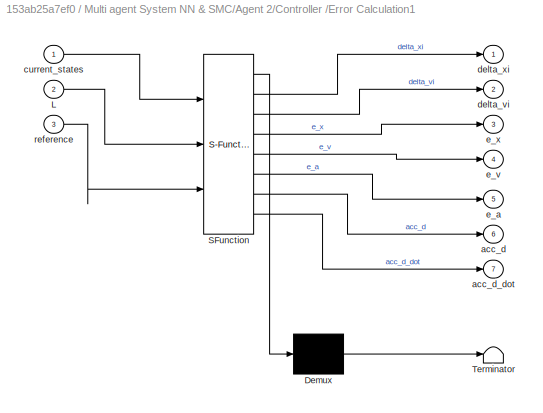
BLOCK [SubSystem] Multi agent System NN & SMC/Agent 2/Controller /Error Calculation1
  ErrorFcn = Stateflow.Translate.translate
  PermitHierarchicalResolution = ExplicitOnly
  Ports = [3, 7]
  RequestExecContextInheritance = off
  SFBlockType = MATLAB Function
  TreatAsAtomicUnit = on
BLOCK [Demux] Multi agent System NN & SMC/Agent 2/Controller /Error Calculation1/ Demux 
  Outputs = 1
  Ports = [1, 1]
BLOCK [S-Function] Multi agent System NN & SMC/Agent 2/Controller /Error Calculation1/ SFunction 
  EnableBusSupport = on
  FunctionName = sf_sfun
  PortCounts = [3 8]
  Ports = [3, 8]
  SFcnIsStateOwnerBlock = off
  SFunctionDeploymentMode = off
  Tag = Stateflow S-Function 16
BLOCK [Terminator] Multi agent System NN & SMC/Agent 2/Controller /Error Calculation1/ Terminator 
BLOCK [Inport] Multi agent System NN & SMC/Agent 2/Controller /Error Calculation1/L
  Port = 2
BLOCK [Outport] Multi agent System NN & SMC/Agent 2/Controller /Error Calculation1/acc_d
  Port = 6
BLOCK [Outport] Multi agent System NN & SMC/Agent 2/Controller /Error Calculation1/acc_d_dot
  Port = 7
BLOCK [Inport] Multi agent System NN & SMC/Agent 2/Controller /Error Calculation1/current_states
BLOCK [Outport] Multi agent System NN & SMC/Agent 2/Controller /Error Calculation1/delta_vi
  Port = 2
BLOCK [Outport] Multi agent System NN & SMC/Agent 2/Controller /Error Calculation1/delta_xi
  VectorParamsAs1DForOutWhenUnconnected = off
BLOCK [Outport] Multi agent System NN & SMC/Agent 2/Controller /Error Calculation1/e_a
  Port = 5
BLOCK [Outport] Multi agent System NN & SMC/Agent 2/Controller /Error Calculation1/e_v
  Port = 4
BLOCK [Outport] Multi agent System NN & SMC/Agent 2/Controller /Error Calculation1/e_x
  Port = 3
BLOCK [Inport] Multi agent System NN & SMC/Agent 2/Controller /Error Calculation1/reference
  Port = 3
BLOCK [SubSystem] Multi agent System NN & SMC/Agent 2/Controller /Hysteresis
  Ports = [2, 1]
  RequestExecContextInheritance = off
BLOCK [SubSystem] Multi agent System NN & SMC/Agent 2/Controller /Hysteresis inverse
  ErrorFcn = Stateflow.Translate.translate
  PermitHierarchicalResolution = ExplicitOnly
  Ports = [2, 2]
  RequestExecContextInheritance = off
  SFBlockType = MATLAB Function
  TreatAsAtomicUnit = on
BLOCK [Demux] Multi agent System NN & SMC/Agent 2/Controller /Hysteresis inverse/ Demux 
  Outputs = 1
  Ports = [1, 1]
BLOCK [S-Function] Multi agent System NN & SMC/Agent 2/Controller /Hysteresis inverse/ SFunction 
  EnableBusSupport = on
  FunctionName = sf_sfun
  PortCounts = [2 3]
  Ports = [2, 3]
  SFcnIsStateOwnerBlock = off
  SFunctionDeploymentMode = off
  Tag = Stateflow S-Function 18
BLOCK [Terminator] Multi agent System NN & SMC/Agent 2/Controller /Hysteresis inverse/ Terminator 
BLOCK [Inport] Multi agent System NN & SMC/Agent 2/Controller /Hysteresis inverse/pi_dot
BLOCK [Outport] Multi agent System NN & SMC/Agent 2/Controller /Hysteresis inverse/u_dot
BLOCK [Inport] Multi agent System NN & SMC/Agent 2/Controller /Hysteresis inverse/zeta_bar
  Port = 2
BLOCK [Outport] Multi agent System NN & SMC/Agent 2/Controller /Hysteresis inverse/zeta_bar_dot
  Port = 2
BLOCK [SubSystem] Multi agent System NN & SMC/Agent 2/Controller /Hysteresis/Delay (0.01s)
  Ports = [1, 1]
  RequestExecContextInheritance = off
BLOCK [Clock] Multi agent System NN & SMC/Agent 2/Controller /Hysteresis/Delay (0.01s)/Clock
BLOCK [Constant] Multi agent System NN & SMC/Agent 2/Controller /Hysteresis/Delay (0.01s)/Constant
  Value = [0;0;0]
BLOCK [Outport] Multi agent System NN & SMC/Agent 2/Controller /Hysteresis/Delay (0.01s)/Out1
  VectorParamsAs1DForOutWhenUnconnected = off
BLOCK [Scope] Multi agent System NN & SMC/Agent 2/Controller /Hysteresis/Delay (0.01s)/Scope3
  Floating = off
  NumInputPorts = 1
  Ports = [1]
BLOCK [Switch] Multi agent System NN & SMC/Agent 2/Controller /Hysteresis/Delay (0.01s)/Switch
  Criteria = u2 > Threshold
  InputSameDT = off
  SaturateOnIntegerOverflow = off
  Threshold = 0.01
BLOCK [Inport] Multi agent System NN & SMC/Agent 2/Controller /Hysteresis/Delay (0.01s)/output
BLOCK [SubSystem] Multi agent System NN & SMC/Agent 2/Controller /Hysteresis/MATLAB Function1
  ErrorFcn = Stateflow.Translate.translate
  PermitHierarchicalResolution = ExplicitOnly
  Ports = [3, 2]
  RequestExecContextInheritance = off
  SFBlockType = MATLAB Function
  TreatAsAtomicUnit = on
BLOCK [Demux] Multi agent System NN & SMC/Agent 2/Controller /Hysteresis/MATLAB Function1/ Demux 
  Outputs = 1
  Ports = [1, 1]
BLOCK [S-Function] Multi agent System NN & SMC/Agent 2/Controller /Hysteresis/MATLAB Function1/ SFunction 
  EnableBusSupport = on
  FunctionName = sf_sfun
  PortCounts = [3 3]
  Ports = [3, 3]
  SFcnIsStateOwnerBlock = off
  SFunctionDeploymentMode = off
  Tag = Stateflow S-Function 17
BLOCK [Terminator] Multi agent System NN & SMC/Agent 2/Controller /Hysteresis/MATLAB Function1/ Terminator 
BLOCK [Outport] Multi agent System NN & SMC/Agent 2/Controller /Hysteresis/MATLAB Function1/actual_control
  VectorParamsAs1DForOutWhenUnconnected = off
BLOCK [Inport] Multi agent System NN & SMC/Agent 2/Controller /Hysteresis/MATLAB Function1/u
BLOCK [Inport] Multi agent System NN & SMC/Agent 2/Controller /Hysteresis/MATLAB Function1/u_dot
  Port = 2
BLOCK [Inport] Multi agent System NN & SMC/Agent 2/Controller /Hysteresis/MATLAB Function1/zeta
  Port = 3
BLOCK [Outport] Multi agent System NN & SMC/Agent 2/Controller /Hysteresis/MATLAB Function1/zeta_dot
  Port = 2
  VectorParamsAs1DForOutWhenUnconnected = off
BLOCK [Scope] Multi agent System NN & SMC/Agent 2/Controller /Hysteresis/Scope1
  Floating = off
  NumInputPorts = 1
  Ports = [1]
BLOCK [Outport] Multi agent System NN & SMC/Agent 2/Controller /Hysteresis/processed_u
  VectorParamsAs1DForOutWhenUnconnected = off
BLOCK [Inport] Multi agent System NN & SMC/Agent 2/Controller /Hysteresis/u
  Port = 2
BLOCK [Inport] Multi agent System NN & SMC/Agent 2/Controller /Hysteresis/u_dot
BLOCK [Integrator] Multi agent System NN & SMC/Agent 2/Controller /Hysteresis/zeta_int
  ContinuousStateAttributes = 'speed'
  InitialCondition = [0;0;0]
  Ports = [1, 1]
BLOCK [Integrator] Multi agent System NN & SMC/Agent 2/Controller /Integrator3
  ContinuousStateAttributes = 'Control_output'
  InitialCondition = [0;0;0]
  LowerSaturationLimit = -200
  Ports = [1, 1]
  UpperSaturationLimit = 200
BLOCK [Inport] Multi agent System NN & SMC/Agent 2/Controller /Laplacian
  Port = 2
BLOCK [Memory] Multi agent System NN & SMC/Agent 2/Controller /Memory
  InitialCondition = [0;0;0]
  LinearizeMemory = on
BLOCK [Inport] Multi agent System NN & SMC/Agent 2/Controller /Reference
  Port = 3
BLOCK [Scope] Multi agent System NN & SMC/Agent 2/Controller /Scope
  Floating = off
  NameLocation = right
  NumInputPorts = 1
  Ports = [1]
BLOCK [Scope] Multi agent System NN & SMC/Agent 2/Controller /Scope2
  Floating = off
  NumInputPorts = 1
  Ports = [1]
  ScopeSpecificationString = Simulink.scopes.TimeScopeBlockCfg('CurrentConfiguration', extmgr.ConfigurationSet(extmgr.Configuration('Core','General UI',true),extmgr.Configuration('Core','Source UI',true),extmgr.Configuration('Sources','WiredSimulink',true,'DataLoggingVariableName','actual_ctr_2','DataLogging',true,'DataLoggingSaveFormat','Array'),extmgr.Configuration('Visuals','Time Domain',true,'SerializedDisplays',{struct('...<+1530ch>
BLOCK [Inport] Multi agent System NN & SMC/Agent 2/Controller /current_states
BLOCK [Scope] Multi agent System NN & SMC/Agent 2/Controller /delta_x
  Floating = off
  NameLocation = right
  NumInputPorts = 1
  Ports = [1]
  ScopeSpecificationString = Simulink.scopes.TimeScopeBlockCfg('CurrentConfiguration', extmgr.ConfigurationSet(extmgr.Configuration('Core','General UI',true),extmgr.Configuration('Core','Source UI',true),extmgr.Configuration('Sources','WiredSimulink',true,'DataLoggingVariableName','delta_x2','DataLogging',true,'DataLoggingSaveFormat','Array'),extmgr.Configuration('Visuals','Time Domain',true,'SerializedDisplays',{struct('MinY...<+1541ch>
BLOCK [Integrator] Multi agent System NN & SMC/Agent 2/Controller /int_pi
  ContinuousStateAttributes = 'Control_output'
  InitialCondition = [0;0;0]
  LowerSaturationLimit = -200
  Ports = [1, 1]
  UpperSaturationLimit = 200
BLOCK [Integrator] Multi agent System NN & SMC/Agent 2/Controller /int_zeta_bar
  ContinuousStateAttributes = 'Control_output'
  InitialCondition = [0;0;0]
  LowerSaturationLimit = -200
  Ports = [1, 1]
  UpperSaturationLimit = 200
BLOCK [Scope] Multi agent System NN & SMC/Agent 2/Controller /xi_i
  Floating = off
  NameLocation = left
  NumInputPorts = 1
  Ports = [1]
  ScopeSpecificationString = Simulink.scopes.TimeScopeBlockCfg('CurrentConfiguration', extmgr.ConfigurationSet(extmgr.Configuration('Core','General UI',true),extmgr.Configuration('Core','Source UI',true),extmgr.Configuration('Sources','WiredSimulink',true,'DataLoggingVariableName','xi_2','DataLogging',true,'DataLoggingSaveFormat','Array'),extmgr.Configuration('Visuals','Time Domain',true,'SerializedDisplays',{struct('MinYLimR...<+1507ch>
BLOCK [SubSystem] Multi agent System NN & SMC/Agent 2/Delay (0.01s)
  Ports = [1, 1]
  RequestExecContextInheritance = off
BLOCK [Clock] Multi agent System NN & SMC/Agent 2/Delay (0.01s)/Clock
BLOCK [Constant] Multi agent System NN & SMC/Agent 2/Delay (0.01s)/Constant
  Value = [0;0;0]
BLOCK [Inport] Multi agent System NN & SMC/Agent 2/Delay (0.01s)/In1
BLOCK [Outport] Multi agent System NN & SMC/Agent 2/Delay (0.01s)/Out1
  VectorParamsAs1DForOutWhenUnconnected = off
BLOCK [Scope] Multi agent System NN & SMC/Agent 2/Delay (0.01s)/Scope3
  Floating = off
  NumInputPorts = 1
  Ports = [1]
BLOCK [Switch] Multi agent System NN & SMC/Agent 2/Delay (0.01s)/Switch
  Criteria = u2 > Threshold
  InputSameDT = off
  SaturateOnIntegerOverflow = off
  Threshold = 0.01
BLOCK [Derivative] Multi agent System NN & SMC/Agent 2/Derivative
BLOCK [Scope] Multi agent System NN & SMC/Agent 2/Error norm
  Floating = off
  NumInputPorts = 1
  Ports = [1]
  ScopeSpecificationString = Simulink.scopes.TimeScopeBlockCfg('CurrentConfiguration', extmgr.ConfigurationSet(extmgr.Configuration('Core','General UI',true),extmgr.Configuration('Core','Source UI',true),extmgr.Configuration('Sources','WiredSimulink',true,'DataLoggingVariableName','esti_norm_2','DataLogging',true,'DataLoggingSaveFormat','Array'),extmgr.Configuration('Visuals','Time Domain',true,'SerializedDisplays',{struct('M...<+1500ch>
BLOCK [SubSystem] Multi agent System NN & SMC/Agent 2/Estimation error
  ErrorFcn = Stateflow.Translate.translate
  PermitHierarchicalResolution = ExplicitOnly
  Ports = [3, 1]
  RequestExecContextInheritance = off
  SFBlockType = MATLAB Function
  TreatAsAtomicUnit = on
BLOCK [Demux] Multi agent System NN & SMC/Agent 2/Estimation error/ Demux 
  Outputs = 1
  Ports = [1, 1]
BLOCK [S-Function] Multi agent System NN & SMC/Agent 2/Estimation error/ SFunction 
  EnableBusSupport = on
  FunctionName = sf_sfun
  PortCounts = [3 2]
  Ports = [3, 2]
  SFcnIsStateOwnerBlock = off
  SFunctionDeploymentMode = off
  Tag = Stateflow S-Function 19
BLOCK [Terminator] Multi agent System NN & SMC/Agent 2/Estimation error/ Terminator 
BLOCK [Inport] Multi agent System NN & SMC/Agent 2/Estimation error/E
  Port = 3
BLOCK [Outport] Multi agent System NN & SMC/Agent 2/Estimation error/error_norm
  VectorParamsAs1DForOutWhenUnconnected = off
BLOCK [Inport] Multi agent System NN & SMC/Agent 2/Estimation error/fx_dt
BLOCK [Inport] Multi agent System NN & SMC/Agent 2/Estimation error/fx_dtdot
  Port = 2
BLOCK [Integrator] Multi agent System NN & SMC/Agent 2/Integrator
  ContinuousStateAttributes = 'speed'
  InitialCondition = [0;0;0]
  Ports = [1, 1]
BLOCK [Integrator] Multi agent System NN & SMC/Agent 2/Integrator1
  ContinuousStateAttributes = 'position'
  InitialCondition = [-0.5;2;pi/4]
  Ports = [1, 1]
  Tag = Position_x1
BLOCK [Inport] Multi agent System NN & SMC/Agent 2/Laplacian Matrix
  Port = 2
BLOCK [Memory] Multi agent System NN & SMC/Agent 2/Memory
  InitialCondition = [0;0;0]
  LinearizeMemory = on
BLOCK [SubSystem] Multi agent System NN & SMC/Agent 2/ODR model
  ErrorFcn = Stateflow.Translate.translate
  PermitHierarchicalResolution = ExplicitOnly
  Ports = [4, 2]
  RequestExecContextInheritance = off
  SFBlockType = MATLAB Function
  TreatAsAtomicUnit = on
BLOCK [Demux] Multi agent System NN & SMC/Agent 2/ODR model/ Demux 
  Outputs = 1
  Ports = [1, 1]
BLOCK [S-Function] Multi agent System NN & SMC/Agent 2/ODR model/ SFunction 
  EnableBusSupport = on
  FunctionName = sf_sfun
  PortCounts = [4 3]
  Ports = [4, 3]
  SFcnIsStateOwnerBlock = off
  SFunctionDeploymentMode = off
  Tag = Stateflow S-Function 20
BLOCK [Terminator] Multi agent System NN & SMC/Agent 2/ODR model/ Terminator 
BLOCK [Inport] Multi agent System NN & SMC/Agent 2/ODR model/agent_x1
BLOCK [Inport] Multi agent System NN & SMC/Agent 2/ODR model/agent_x2
  Port = 2
BLOCK [Inport] Multi agent System NN & SMC/Agent 2/ODR model/control_input
  Port = 4
BLOCK [Inport] Multi agent System NN & SMC/Agent 2/ODR model/t
  Port = 3
BLOCK [Outport] Multi agent System NN & SMC/Agent 2/ODR model/v_dot
  VectorParamsAs1DForOutWhenUnconnected = off
BLOCK [Outport] Multi agent System NN & SMC/Agent 2/ODR model/w_i
  Port = 2
  VectorParamsAs1DForOutWhenUnconnected = off
BLOCK [Outport] Multi agent System NN & SMC/Agent 2/Position
  VectorParamsAs1DForOutWhenUnconnected = off
BLOCK [Inport] Multi agent System NN & SMC/Agent 2/References 
  Port = 3
BLOCK [Scope] Multi agent System NN & SMC/Agent 2/Scope
  Floating = off
  NumInputPorts = 1
  Ports = [1]
BLOCK [Scope] Multi agent System NN & SMC/Agent 2/Scope2
  Floating = off
  NumInputPorts = 1
  Ports = [1]
BLOCK [Inport] Multi agent System NN & SMC/Agent 2/States
BLOCK [Outport] Multi agent System NN & SMC/Agent 2/Velocity
  Port = 2
  VectorParamsAs1DForOutWhenUnconnected = off
BLOCK [SubSystem] Multi agent System NN & SMC/Agent 3
  Ports = [3, 3]
  RequestExecContextInheritance = off
BLOCK [Outport] Multi agent System NN & SMC/Agent 3/Acceleration
  Port = 3
  VectorParamsAs1DForOutWhenUnconnected = off
BLOCK [Clock] Multi agent System NN & SMC/Agent 3/Clock
BLOCK [SubSystem] Multi agent System NN & SMC/Agent 3/Controller 
  Ports = [3, 2]
  RequestExecContextInheritance = off
BLOCK [SubSystem] Multi agent System NN & SMC/Agent 3/Controller /Chebyshev neural network
  Ports = [2, 1]
  RequestExecContextInheritance = off
BLOCK [SubSystem] Multi agent System NN & SMC/Agent 3/Controller /Chebyshev neural network/Chebyshev Polynomials
  ErrorFcn = Stateflow.Translate.translate
  PermitHierarchicalResolution = ExplicitOnly
  Ports = [1, 1]
  RequestExecContextInheritance = off
  SFBlockType = MATLAB Function
  TreatAsAtomicUnit = on
BLOCK [Demux] Multi agent System NN & SMC/Agent 3/Controller /Chebyshev neural network/Chebyshev Polynomials/ Demux 
  Outputs = 1
  Ports = [1, 1]
BLOCK [S-Function] Multi agent System NN & SMC/Agent 3/Controller /Chebyshev neural network/Chebyshev Polynomials/ SFunction 
  EnableBusSupport = on
  FunctionName = sf_sfun
  PortCounts = [1 2]
  Ports = [1, 2]
  SFcnIsStateOwnerBlock = off
  SFunctionDeploymentMode = off
  Tag = Stateflow S-Function 22
BLOCK [Terminator] Multi agent System NN & SMC/Agent 3/Controller /Chebyshev neural network/Chebyshev Polynomials/ Terminator 
BLOCK [Inport] Multi agent System NN & SMC/Agent 3/Controller /Chebyshev neural network/Chebyshev Polynomials/current_states
BLOCK [Outport] Multi agent System NN & SMC/Agent 3/Controller /Chebyshev neural network/Chebyshev Polynomials/phi_x
  VectorParamsAs1DForOutWhenUnconnected = off
BLOCK [Inport] Multi agent System NN & SMC/Agent 3/Controller /Chebyshev neural network/Current states
BLOCK [Outport] Multi agent System NN & SMC/Agent 3/Controller /Chebyshev neural network/E_hat
BLOCK [SubSystem] Multi agent System NN & SMC/Agent 3/Controller /Chebyshev neural network/Estimation
  ErrorFcn = Stateflow.Translate.translate
  PermitHierarchicalResolution = ExplicitOnly
  Ports = [2, 1]
  RequestExecContextInheritance = off
  SFBlockType = MATLAB Function
  TreatAsAtomicUnit = on
BLOCK [Demux] Multi agent System NN & SMC/Agent 3/Controller /Chebyshev neural network/Estimation/ Demux 
  Outputs = 1
  Ports = [1, 1]
BLOCK [S-Function] Multi agent System NN & SMC/Agent 3/Controller /Chebyshev neural network/Estimation/ SFunction 
  EnableBusSupport = on
  FunctionName = sf_sfun
  PortCounts = [2 2]
  Ports = [2, 2]
  SFcnIsStateOwnerBlock = off
  SFunctionDeploymentMode = off
  Tag = Stateflow S-Function 23
BLOCK [Terminator] Multi agent System NN & SMC/Agent 3/Controller /Chebyshev neural network/Estimation/ Terminator 
BLOCK [Outport] Multi agent System NN & SMC/Agent 3/Controller /Chebyshev neural network/Estimation/E
  VectorParamsAs1DForOutWhenUnconnected = off
BLOCK [Inport] Multi agent System NN & SMC/Agent 3/Controller /Chebyshev neural network/Estimation/W
  Port = 2
BLOCK [Inport] Multi agent System NN & SMC/Agent 3/Controller /Chebyshev neural network/Estimation/phi_x
BLOCK [Integrator] Multi agent System NN & SMC/Agent 3/Controller /Chebyshev neural network/Integrator
  ContinuousStateAttributes = 'Neural_weights'
  InitialCondition = [0 0 0]'
  InitialConditionSource = external
  LowerSaturationLimit = -200
  Ports = [2, 1]
  UpperSaturationLimit = 200
BLOCK [SubSystem] Multi agent System NN & SMC/Agent 3/Controller /Chebyshev neural network/MATLAB Function
  ErrorFcn = Stateflow.Translate.translate
  PermitHierarchicalResolution = ExplicitOnly
  Ports = [1, 1]
  RequestExecContextInheritance = off
  SFBlockType = MATLAB Function
  TreatAsAtomicUnit = on
BLOCK [Demux] Multi agent System NN & SMC/Agent 3/Controller /Chebyshev neural network/MATLAB Function/ Demux 
  Outputs = 1
  Ports = [1, 1]
BLOCK [S-Function] Multi agent System NN & SMC/Agent 3/Controller /Chebyshev neural network/MATLAB Function/ SFunction 
  EnableBusSupport = on
  FunctionName = sf_sfun
  PortCounts = [1 2]
  Ports = [1, 2]
  SFcnIsStateOwnerBlock = off
  SFunctionDeploymentMode = off
  Tag = Stateflow S-Function 24
BLOCK [Terminator] Multi agent System NN & SMC/Agent 3/Controller /Chebyshev neural network/MATLAB Function/ Terminator 
BLOCK [Outport] Multi agent System NN & SMC/Agent 3/Controller /Chebyshev neural network/MATLAB Function/W
  VectorParamsAs1DForOutWhenUnconnected = off
BLOCK [Inport] Multi agent System NN & SMC/Agent 3/Controller /Chebyshev neural network/MATLAB Function/W 
BLOCK [SubSystem] Multi agent System NN & SMC/Agent 3/Controller /Chebyshev neural network/Parameter Tuning
  ErrorFcn = Stateflow.Translate.translate
  PermitHierarchicalResolution = ExplicitOnly
  Ports = [2, 1]
  RequestExecContextInheritance = off
  SFBlockType = MATLAB Function
  TreatAsAtomicUnit = on
BLOCK [Demux] Multi agent System NN & SMC/Agent 3/Controller /Chebyshev neural network/Parameter Tuning/ Demux 
  Outputs = 1
  Ports = [1, 1]
BLOCK [S-Function] Multi agent System NN & SMC/Agent 3/Controller /Chebyshev neural network/Parameter Tuning/ SFunction 
  EnableBusSupport = on
  FunctionName = sf_sfun
  PortCounts = [2 2]
  Ports = [2, 2]
  SFcnIsStateOwnerBlock = off
  SFunctionDeploymentMode = off
  Tag = Stateflow S-Function 25
BLOCK [Terminator] Multi agent System NN & SMC/Agent 3/Controller /Chebyshev neural network/Parameter Tuning/ Terminator 
BLOCK [Outport] Multi agent System NN & SMC/Agent 3/Controller /Chebyshev neural network/Parameter Tuning/W_dot
  VectorParamsAs1DForOutWhenUnconnected = off
BLOCK [Inport] Multi agent System NN & SMC/Agent 3/Controller /Chebyshev neural network/Parameter Tuning/phi_x
BLOCK [Inport] Multi agent System NN & SMC/Agent 3/Controller /Chebyshev neural network/Parameter Tuning/xi
  Port = 2
BLOCK [Scope] Multi agent System NN & SMC/Agent 3/Controller /Chebyshev neural network/Weight 1
  Floating = off
  NameLocation = left
  NumInputPorts = 1
  Ports = [1]
BLOCK [SubSystem] Multi agent System NN & SMC/Agent 3/Controller /Chebyshev neural network/neural_initial
  ErrorFcn = Stateflow.Translate.translate
  PermitHierarchicalResolution = ExplicitOnly
  Ports = [0, 1]
  RequestExecContextInheritance = off
  SFBlockType = MATLAB Function
  TreatAsAtomicUnit = on
BLOCK [Demux] Multi agent System NN & SMC/Agent 3/Controller /Chebyshev neural network/neural_initial/ Demux 
  Outputs = 1
  Ports = [1, 1]
BLOCK [Ground] Multi agent System NN & SMC/Agent 3/Controller /Chebyshev neural network/neural_initial/ Ground 
BLOCK [S-Function] Multi agent System NN & SMC/Agent 3/Controller /Chebyshev neural network/neural_initial/ SFunction 
  EnableBusSupport = on
  FunctionName = sf_sfun
  PortCounts = [1 2]
  Ports = [1, 2]
  SFcnIsStateOwnerBlock = off
  SFunctionDeploymentMode = off
  Tag = Stateflow S-Function 26
BLOCK [Terminator] Multi agent System NN & SMC/Agent 3/Controller /Chebyshev neural network/neural_initial/ Terminator 
BLOCK [Outport] Multi agent System NN & SMC/Agent 3/Controller /Chebyshev neural network/neural_initial/weight
  VectorParamsAs1DForOutWhenUnconnected = off
BLOCK [Inport] Multi agent System NN & SMC/Agent 3/Controller /Chebyshev neural network/xi_i
  Port = 2
BLOCK [SubSystem] Multi agent System NN & SMC/Agent 3/Controller /Control dot1
  ErrorFcn = Stateflow.Translate.translate
  PermitHierarchicalResolution = ExplicitOnly
  Ports = [6, 1]
  RequestExecContextInheritance = off
  SFBlockType = MATLAB Function
  TreatAsAtomicUnit = on
BLOCK [Demux] Multi agent System NN & SMC/Agent 3/Controller /Control dot1/ Demux 
  Outputs = 1
  Ports = [1, 1]
BLOCK [S-Function] Multi agent System NN & SMC/Agent 3/Controller /Control dot1/ SFunction 
  EnableBusSupport = on
  FunctionName = sf_sfun
  PortCounts = [6 2]
  Ports = [6, 2]
  SFcnIsStateOwnerBlock = off
  SFunctionDeploymentMode = off
  Tag = Stateflow S-Function 27
BLOCK [Terminator] Multi agent System NN & SMC/Agent 3/Controller /Control dot1/ Terminator 
BLOCK [Inport] Multi agent System NN & SMC/Agent 3/Controller /Control dot1/E_hat
BLOCK [Inport] Multi agent System NN & SMC/Agent 3/Controller /Control dot1/acc_d
  Port = 4
BLOCK [Inport] Multi agent System NN & SMC/Agent 3/Controller /Control dot1/acc_d_dot
  Port = 5
BLOCK [Inport] Multi agent System NN & SMC/Agent 3/Controller /Control dot1/delta_v
  Port = 2
BLOCK [Outport] Multi agent System NN & SMC/Agent 3/Controller /Control dot1/pi_dot
  VectorParamsAs1DForOutWhenUnconnected = off
BLOCK [Inport] Multi agent System NN & SMC/Agent 3/Controller /Control dot1/pi_i
  Port = 6
BLOCK [Inport] Multi agent System NN & SMC/Agent 3/Controller /Control dot1/xi_i
  Port = 3
BLOCK [Outport] Multi agent System NN & SMC/Agent 3/Controller /Control_output
BLOCK [SubSystem] Multi agent System NN & SMC/Agent 3/Controller /Delay (0.01s)
  Ports = [1, 1]
  RequestExecContextInheritance = off
BLOCK [Clock] Multi agent System NN & SMC/Agent 3/Controller /Delay (0.01s)/Clock
BLOCK [Constant] Multi agent System NN & SMC/Agent 3/Controller /Delay (0.01s)/Constant
  Value = [0;0;0]
BLOCK [Inport] Multi agent System NN & SMC/Agent 3/Controller /Delay (0.01s)/In1
BLOCK [Scope] Multi agent System NN & SMC/Agent 3/Controller /Delay (0.01s)/Scope3
  Floating = off
  NumInputPorts = 1
  Ports = [1]
BLOCK [Switch] Multi agent System NN & SMC/Agent 3/Controller /Delay (0.01s)/Switch
  Criteria = u2 > Threshold
  InputSameDT = off
  SaturateOnIntegerOverflow = off
  Threshold = 0.01
BLOCK [Outport] Multi agent System NN & SMC/Agent 3/Controller /Delay (0.01s)/pi_dot
  VectorParamsAs1DForOutWhenUnconnected = off
BLOCK [SubSystem] Multi agent System NN & SMC/Agent 3/Controller /Dynamic Sliding Variable
  ErrorFcn = Stateflow.Translate.translate
  PermitHierarchicalResolution = ExplicitOnly
  Ports = [3, 1]
  RequestExecContextInheritance = off
  SFBlockType = MATLAB Function
  TreatAsAtomicUnit = on
BLOCK [Demux] Multi agent System NN & SMC/Agent 3/Controller /Dynamic Sliding Variable/ Demux 
  Outputs = 1
  Ports = [1, 1]
BLOCK [S-Function] Multi agent System NN & SMC/Agent 3/Controller /Dynamic Sliding Variable/ SFunction 
  EnableBusSupport = on
  FunctionName = sf_sfun
  PortCounts = [3 2]
  Ports = [3, 2]
  SFcnIsStateOwnerBlock = off
  SFunctionDeploymentMode = off
  Tag = Stateflow S-Function 28
BLOCK [Terminator] Multi agent System NN & SMC/Agent 3/Controller /Dynamic Sliding Variable/ Terminator 
BLOCK [Inport] Multi agent System NN & SMC/Agent 3/Controller /Dynamic Sliding Variable/e_a
  Port = 3
BLOCK [Inport] Multi agent System NN & SMC/Agent 3/Controller /Dynamic Sliding Variable/e_v
  Port = 2
BLOCK [Inport] Multi agent System NN & SMC/Agent 3/Controller /Dynamic Sliding Variable/e_x
BLOCK [Outport] Multi agent System NN & SMC/Agent 3/Controller /Dynamic Sliding Variable/xi
  VectorParamsAs1DForOutWhenUnconnected = off
BLOCK [Outport] Multi agent System NN & SMC/Agent 3/Controller /E_hat
  Port = 2
BLOCK [SubSystem] Multi agent System NN & SMC/Agent 3/Controller /Error Calculation1
  ErrorFcn = Stateflow.Translate.translate
  PermitHierarchicalResolution = ExplicitOnly
  Ports = [3, 7]
  RequestExecContextInheritance = off
  SFBlockType = MATLAB Function
  TreatAsAtomicUnit = on
BLOCK [Demux] Multi agent System NN & SMC/Agent 3/Controller /Error Calculation1/ Demux 
  Outputs = 1
  Ports = [1, 1]
BLOCK [S-Function] Multi agent System NN & SMC/Agent 3/Controller /Error Calculation1/ SFunction 
  EnableBusSupport = on
  FunctionName = sf_sfun
  PortCounts = [3 8]
  Ports = [3, 8]
  SFcnIsStateOwnerBlock = off
  SFunctionDeploymentMode = off
  Tag = Stateflow S-Function 29
BLOCK [Terminator] Multi agent System NN & SMC/Agent 3/Controller /Error Calculation1/ Terminator 
BLOCK [Inport] Multi agent System NN & SMC/Agent 3/Controller /Error Calculation1/L
  Port = 2
BLOCK [Outport] Multi agent System NN & SMC/Agent 3/Controller /Error Calculation1/acc_d
  Port = 6
BLOCK [Outport] Multi agent System NN & SMC/Agent 3/Controller /Error Calculation1/acc_d_dot
  Port = 7
BLOCK [Inport] Multi agent System NN & SMC/Agent 3/Controller /Error Calculation1/current_states
BLOCK [Outport] Multi agent System NN & SMC/Agent 3/Controller /Error Calculation1/delta_vi
  Port = 2
BLOCK [Outport] Multi agent System NN & SMC/Agent 3/Controller /Error Calculation1/delta_xi
  VectorParamsAs1DForOutWhenUnconnected = off
BLOCK [Outport] Multi agent System NN & SMC/Agent 3/Controller /Error Calculation1/e_a
  Port = 5
BLOCK [Outport] Multi agent System NN & SMC/Agent 3/Controller /Error Calculation1/e_v
  Port = 4
BLOCK [Outport] Multi agent System NN & SMC/Agent 3/Controller /Error Calculation1/e_x
  Port = 3
BLOCK [Inport] Multi agent System NN & SMC/Agent 3/Controller /Error Calculation1/reference
  Port = 3
BLOCK [SubSystem] Multi agent System NN & SMC/Agent 3/Controller /Hysteresis
  Ports = [2, 1]
  RequestExecContextInheritance = off
BLOCK [SubSystem] Multi agent System NN & SMC/Agent 3/Controller /Hysteresis inverse
  ErrorFcn = Stateflow.Translate.translate
  PermitHierarchicalResolution = ExplicitOnly
  Ports = [2, 2]
  RequestExecContextInheritance = off
  SFBlockType = MATLAB Function
  TreatAsAtomicUnit = on
BLOCK [Demux] Multi agent System NN & SMC/Agent 3/Controller /Hysteresis inverse/ Demux 
  Outputs = 1
  Ports = [1, 1]
BLOCK [S-Function] Multi agent System NN & SMC/Agent 3/Controller /Hysteresis inverse/ SFunction 
  EnableBusSupport = on
  FunctionName = sf_sfun
  PortCounts = [2 3]
  Ports = [2, 3]
  SFcnIsStateOwnerBlock = off
  SFunctionDeploymentMode = off
  Tag = Stateflow S-Function 31
BLOCK [Terminator] Multi agent System NN & SMC/Agent 3/Controller /Hysteresis inverse/ Terminator 
BLOCK [Inport] Multi agent System NN & SMC/Agent 3/Controller /Hysteresis inverse/pi_dot
BLOCK [Outport] Multi agent System NN & SMC/Agent 3/Controller /Hysteresis inverse/u_dot
BLOCK [Inport] Multi agent System NN & SMC/Agent 3/Controller /Hysteresis inverse/zeta_bar
  Port = 2
BLOCK [Outport] Multi agent System NN & SMC/Agent 3/Controller /Hysteresis inverse/zeta_bar_dot
  Port = 2
BLOCK [SubSystem] Multi agent System NN & SMC/Agent 3/Controller /Hysteresis/Delay (0.01s)
  Ports = [1, 1]
  RequestExecContextInheritance = off
BLOCK [Clock] Multi agent System NN & SMC/Agent 3/Controller /Hysteresis/Delay (0.01s)/Clock
BLOCK [Constant] Multi agent System NN & SMC/Agent 3/Controller /Hysteresis/Delay (0.01s)/Constant
  Value = [0;0;0]
BLOCK [Outport] Multi agent System NN & SMC/Agent 3/Controller /Hysteresis/Delay (0.01s)/Out1
  VectorParamsAs1DForOutWhenUnconnected = off
BLOCK [Scope] Multi agent System NN & SMC/Agent 3/Controller /Hysteresis/Delay (0.01s)/Scope3
  Floating = off
  NumInputPorts = 1
  Ports = [1]
BLOCK [Switch] Multi agent System NN & SMC/Agent 3/Controller /Hysteresis/Delay (0.01s)/Switch
  Criteria = u2 > Threshold
  InputSameDT = off
  SaturateOnIntegerOverflow = off
  Threshold = 0.01
BLOCK [Inport] Multi agent System NN & SMC/Agent 3/Controller /Hysteresis/Delay (0.01s)/output
BLOCK [SubSystem] Multi agent System NN & SMC/Agent 3/Controller /Hysteresis/MATLAB Function1
  ErrorFcn = Stateflow.Translate.translate
  PermitHierarchicalResolution = ExplicitOnly
  Ports = [3, 2]
  RequestExecContextInheritance = off
  SFBlockType = MATLAB Function
  TreatAsAtomicUnit = on
BLOCK [Demux] Multi agent System NN & SMC/Agent 3/Controller /Hysteresis/MATLAB Function1/ Demux 
  Outputs = 1
  Ports = [1, 1]
BLOCK [S-Function] Multi agent System NN & SMC/Agent 3/Controller /Hysteresis/MATLAB Function1/ SFunction 
  EnableBusSupport = on
  FunctionName = sf_sfun
  PortCounts = [3 3]
  Ports = [3, 3]
  SFcnIsStateOwnerBlock = off
  SFunctionDeploymentMode = off
  Tag = Stateflow S-Function 30
BLOCK [Terminator] Multi agent System NN & SMC/Agent 3/Controller /Hysteresis/MATLAB Function1/ Terminator 
BLOCK [Outport] Multi agent System NN & SMC/Agent 3/Controller /Hysteresis/MATLAB Function1/actual_control
  VectorParamsAs1DForOutWhenUnconnected = off
BLOCK [Inport] Multi agent System NN & SMC/Agent 3/Controller /Hysteresis/MATLAB Function1/u
BLOCK [Inport] Multi agent System NN & SMC/Agent 3/Controller /Hysteresis/MATLAB Function1/u_dot
  Port = 2
BLOCK [Inport] Multi agent System NN & SMC/Agent 3/Controller /Hysteresis/MATLAB Function1/zeta
  Port = 3
BLOCK [Outport] Multi agent System NN & SMC/Agent 3/Controller /Hysteresis/MATLAB Function1/zeta_dot
  Port = 2
  VectorParamsAs1DForOutWhenUnconnected = off
BLOCK [Scope] Multi agent System NN & SMC/Agent 3/Controller /Hysteresis/Scope1
  Floating = off
  NumInputPorts = 1
  Ports = [1]
BLOCK [Outport] Multi agent System NN & SMC/Agent 3/Controller /Hysteresis/processed_u
  VectorParamsAs1DForOutWhenUnconnected = off
BLOCK [Inport] Multi agent System NN & SMC/Agent 3/Controller /Hysteresis/u
  Port = 2
BLOCK [Inport] Multi agent System NN & SMC/Agent 3/Controller /Hysteresis/u_dot
BLOCK [Integrator] Multi agent System NN & SMC/Agent 3/Controller /Hysteresis/zeta_int
  ContinuousStateAttributes = 'speed'
  InitialCondition = [0;0;0]
  Ports = [1, 1]
BLOCK [Integrator] Multi agent System NN & SMC/Agent 3/Controller /Integrator3
  ContinuousStateAttributes = 'Control_output'
  InitialCondition = [0;0;0]
  LowerSaturationLimit = -200
  Ports = [1, 1]
  UpperSaturationLimit = 200
BLOCK [Inport] Multi agent System NN & SMC/Agent 3/Controller /Laplacian
  Port = 2
BLOCK [Memory] Multi agent System NN & SMC/Agent 3/Controller /Memory
  InitialCondition = [0;0;0]
  LinearizeMemory = on
BLOCK [Inport] Multi agent System NN & SMC/Agent 3/Controller /Reference
  Port = 3
BLOCK [Scope] Multi agent System NN & SMC/Agent 3/Controller /Scope
  Floating = off
  NameLocation = right
  NumInputPorts = 1
  Ports = [1]
BLOCK [Scope] Multi agent System NN & SMC/Agent 3/Controller /Scope2
  Floating = off
  NumInputPorts = 1
  Ports = [1]
  ScopeSpecificationString = Simulink.scopes.TimeScopeBlockCfg('CurrentConfiguration', extmgr.ConfigurationSet(extmgr.Configuration('Core','General UI',true),extmgr.Configuration('Core','Source UI',true),extmgr.Configuration('Sources','WiredSimulink',true,'DataLoggingVariableName','actual_ctr_3','DataLogging',true,'DataLoggingSaveFormat','Array'),extmgr.Configuration('Visuals','Time Domain',true,'SerializedDisplays',{struct('...<+1530ch>
BLOCK [Inport] Multi agent System NN & SMC/Agent 3/Controller /current_states
BLOCK [Scope] Multi agent System NN & SMC/Agent 3/Controller /delta_x
  Floating = off
  NameLocation = right
  NumInputPorts = 1
  Ports = [1]
  ScopeSpecificationString = Simulink.scopes.TimeScopeBlockCfg('CurrentConfiguration', extmgr.ConfigurationSet(extmgr.Configuration('Core','General UI',true),extmgr.Configuration('Core','Source UI',true),extmgr.Configuration('Sources','WiredSimulink',true,'DataLoggingVariableName','delta_x3','DataLogging',true,'DataLoggingSaveFormat','Array'),extmgr.Configuration('Visuals','Time Domain',true,'SerializedDisplays',{struct('MinY...<+1541ch>
BLOCK [Integrator] Multi agent System NN & SMC/Agent 3/Controller /int_pi
  ContinuousStateAttributes = 'Control_output'
  InitialCondition = [0;0;0]
  LowerSaturationLimit = -200
  Ports = [1, 1]
  UpperSaturationLimit = 200
BLOCK [Integrator] Multi agent System NN & SMC/Agent 3/Controller /int_zeta_bar
  ContinuousStateAttributes = 'Control_output'
  InitialCondition = [0;0;0]
  LowerSaturationLimit = -200
  Ports = [1, 1]
  UpperSaturationLimit = 200
BLOCK [Scope] Multi agent System NN & SMC/Agent 3/Controller /xi_i
  Floating = off
  NameLocation = left
  NumInputPorts = 1
  Ports = [1]
  ScopeSpecificationString = Simulink.scopes.TimeScopeBlockCfg('CurrentConfiguration', extmgr.ConfigurationSet(extmgr.Configuration('Core','General UI',true),extmgr.Configuration('Core','Source UI',true),extmgr.Configuration('Sources','WiredSimulink',true,'DataLoggingVariableName','xi_3','DataLogging',true,'DataLoggingSaveFormat','Array'),extmgr.Configuration('Visuals','Time Domain',true,'SerializedDisplays',{struct('MinYLimR...<+1507ch>
BLOCK [SubSystem] Multi agent System NN & SMC/Agent 3/Delay (0.01s)
  Ports = [1, 1]
  RequestExecContextInheritance = off
BLOCK [Clock] Multi agent System NN & SMC/Agent 3/Delay (0.01s)/Clock
BLOCK [Constant] Multi agent System NN & SMC/Agent 3/Delay (0.01s)/Constant
  Value = [0;0;0]
BLOCK [Inport] Multi agent System NN & SMC/Agent 3/Delay (0.01s)/In1
BLOCK [Outport] Multi agent System NN & SMC/Agent 3/Delay (0.01s)/Out1
  VectorParamsAs1DForOutWhenUnconnected = off
BLOCK [Scope] Multi agent System NN & SMC/Agent 3/Delay (0.01s)/Scope3
  Floating = off
  NumInputPorts = 1
  Ports = [1]
BLOCK [Switch] Multi agent System NN & SMC/Agent 3/Delay (0.01s)/Switch
  Criteria = u2 > Threshold
  InputSameDT = off
  SaturateOnIntegerOverflow = off
  Threshold = 0.01
BLOCK [Derivative] Multi agent System NN & SMC/Agent 3/Derivative
BLOCK [Scope] Multi agent System NN & SMC/Agent 3/Error norm
  Floating = off
  NumInputPorts = 1
  Ports = [1]
  ScopeSpecificationString = Simulink.scopes.TimeScopeBlockCfg('CurrentConfiguration', extmgr.ConfigurationSet(extmgr.Configuration('Core','General UI',true),extmgr.Configuration('Core','Source UI',true),extmgr.Configuration('Sources','WiredSimulink',true,'DataLoggingVariableName','esti_norm_3','DataLogging',true,'DataLoggingSaveFormat','Array'),extmgr.Configuration('Visuals','Time Domain',true,'SerializedDisplays',{struct('M...<+1510ch>
BLOCK [SubSystem] Multi agent System NN & SMC/Agent 3/Estimation error
  ErrorFcn = Stateflow.Translate.translate
  PermitHierarchicalResolution = ExplicitOnly
  Ports = [3, 1]
  RequestExecContextInheritance = off
  SFBlockType = MATLAB Function
  TreatAsAtomicUnit = on
BLOCK [Demux] Multi agent System NN & SMC/Agent 3/Estimation error/ Demux 
  Outputs = 1
  Ports = [1, 1]
BLOCK [S-Function] Multi agent System NN & SMC/Agent 3/Estimation error/ SFunction 
  EnableBusSupport = on
  FunctionName = sf_sfun
  PortCounts = [3 2]
  Ports = [3, 2]
  SFcnIsStateOwnerBlock = off
  SFunctionDeploymentMode = off
  Tag = Stateflow S-Function 32
BLOCK [Terminator] Multi agent System NN & SMC/Agent 3/Estimation error/ Terminator 
BLOCK [Inport] Multi agent System NN & SMC/Agent 3/Estimation error/E
  Port = 3
BLOCK [Outport] Multi agent System NN & SMC/Agent 3/Estimation error/error_norm
  VectorParamsAs1DForOutWhenUnconnected = off
BLOCK [Inport] Multi agent System NN & SMC/Agent 3/Estimation error/fx_dt
BLOCK [Inport] Multi agent System NN & SMC/Agent 3/Estimation error/fx_dtdot
  Port = 2
BLOCK [Integrator] Multi agent System NN & SMC/Agent 3/Integrator
  ContinuousStateAttributes = 'speed'
  InitialCondition = [0;0;0]
  Ports = [1, 1]
BLOCK [Integrator] Multi agent System NN & SMC/Agent 3/Integrator1
  ContinuousStateAttributes = 'position'
  InitialCondition = [0.5;0;2*pi/3]
  Ports = [1, 1]
  Tag = Position_x1
BLOCK [Inport] Multi agent System NN & SMC/Agent 3/Laplacian Matrix
  Port = 2
BLOCK [Memory] Multi agent System NN & SMC/Agent 3/Memory
  InitialCondition = [0;0;0]
  LinearizeMemory = on
BLOCK [SubSystem] Multi agent System NN & SMC/Agent 3/ODR model
  ErrorFcn = Stateflow.Translate.translate
  PermitHierarchicalResolution = ExplicitOnly
  Ports = [4, 2]
  RequestExecContextInheritance = off
  SFBlockType = MATLAB Function
  TreatAsAtomicUnit = on
BLOCK [Demux] Multi agent System NN & SMC/Agent 3/ODR model/ Demux 
  Outputs = 1
  Ports = [1, 1]
BLOCK [S-Function] Multi agent System NN & SMC/Agent 3/ODR model/ SFunction 
  EnableBusSupport = on
  FunctionName = sf_sfun
  PortCounts = [4 3]
  Ports = [4, 3]
  SFcnIsStateOwnerBlock = off
  SFunctionDeploymentMode = off
  Tag = Stateflow S-Function 33
BLOCK [Terminator] Multi agent System NN & SMC/Agent 3/ODR model/ Terminator 
BLOCK [Inport] Multi agent System NN & SMC/Agent 3/ODR model/agent_x1
BLOCK [Inport] Multi agent System NN & SMC/Agent 3/ODR model/agent_x2
  Port = 2
BLOCK [Inport] Multi agent System NN & SMC/Agent 3/ODR model/control_input
  Port = 4
BLOCK [Inport] Multi agent System NN & SMC/Agent 3/ODR model/t
  Port = 3
BLOCK [Outport] Multi agent System NN & SMC/Agent 3/ODR model/v_dot
  VectorParamsAs1DForOutWhenUnconnected = off
BLOCK [Outport] Multi agent System NN & SMC/Agent 3/ODR model/w_i
  Port = 2
  VectorParamsAs1DForOutWhenUnconnected = off
BLOCK [Outport] Multi agent System NN & SMC/Agent 3/Position
  VectorParamsAs1DForOutWhenUnconnected = off
BLOCK [Inport] Multi agent System NN & SMC/Agent 3/References 
  Port = 3
BLOCK [Scope] Multi agent System NN & SMC/Agent 3/Scope
  Floating = off
  NumInputPorts = 1
  Ports = [1]
BLOCK [Scope] Multi agent System NN & SMC/Agent 3/Scope2
  Floating = off
  NumInputPorts = 1
  Ports = [1]
BLOCK [Inport] Multi agent System NN & SMC/Agent 3/States
BLOCK [Outport] Multi agent System NN & SMC/Agent 3/Velocity
  Port = 2
  VectorParamsAs1DForOutWhenUnconnected = off
BLOCK [SubSystem] Multi agent System NN & SMC/Agent 4
  Ports = [3, 3]
  RequestExecContextInheritance = off
BLOCK [Outport] Multi agent System NN & SMC/Agent 4/Acceleration
  Port = 3
  VectorParamsAs1DForOutWhenUnconnected = off
BLOCK [Clock] Multi agent System NN & SMC/Agent 4/Clock
BLOCK [SubSystem] Multi agent System NN & SMC/Agent 4/Controller 
  Ports = [3, 2]
  RequestExecContextInheritance = off
BLOCK [SubSystem] Multi agent System NN & SMC/Agent 4/Controller /Chebyshev neural network
  Ports = [2, 1]
  RequestExecContextInheritance = off
BLOCK [SubSystem] Multi agent System NN & SMC/Agent 4/Controller /Chebyshev neural network/Chebyshev Polynomials
  ErrorFcn = Stateflow.Translate.translate
  PermitHierarchicalResolution = ExplicitOnly
  Ports = [1, 1]
  RequestExecContextInheritance = off
  SFBlockType = MATLAB Function
  TreatAsAtomicUnit = on
BLOCK [Demux] Multi agent System NN & SMC/Agent 4/Controller /Chebyshev neural network/Chebyshev Polynomials/ Demux 
  Outputs = 1
  Ports = [1, 1]
BLOCK [S-Function] Multi agent System NN & SMC/Agent 4/Controller /Chebyshev neural network/Chebyshev Polynomials/ SFunction 
  EnableBusSupport = on
  FunctionName = sf_sfun
  PortCounts = [1 2]
  Ports = [1, 2]
  SFcnIsStateOwnerBlock = off
  SFunctionDeploymentMode = off
  Tag = Stateflow S-Function 34
BLOCK [Terminator] Multi agent System NN & SMC/Agent 4/Controller /Chebyshev neural network/Chebyshev Polynomials/ Terminator 
BLOCK [Inport] Multi agent System NN & SMC/Agent 4/Controller /Chebyshev neural network/Chebyshev Polynomials/current_states
BLOCK [Outport] Multi agent System NN & SMC/Agent 4/Controller /Chebyshev neural network/Chebyshev Polynomials/phi_x
  VectorParamsAs1DForOutWhenUnconnected = off
BLOCK [Inport] Multi agent System NN & SMC/Agent 4/Controller /Chebyshev neural network/Current states
BLOCK [Outport] Multi agent System NN & SMC/Agent 4/Controller /Chebyshev neural network/E_hat
BLOCK [SubSystem] Multi agent System NN & SMC/Agent 4/Controller /Chebyshev neural network/Estimation
  ErrorFcn = Stateflow.Translate.translate
  PermitHierarchicalResolution = ExplicitOnly
  Ports = [2, 1]
  RequestExecContextInheritance = off
  SFBlockType = MATLAB Function
  TreatAsAtomicUnit = on
BLOCK [Demux] Multi agent System NN & SMC/Agent 4/Controller /Chebyshev neural network/Estimation/ Demux 
  Outputs = 1
  Ports = [1, 1]
BLOCK [S-Function] Multi agent System NN & SMC/Agent 4/Controller /Chebyshev neural network/Estimation/ SFunction 
  EnableBusSupport = on
  FunctionName = sf_sfun
  PortCounts = [2 2]
  Ports = [2, 2]
  SFcnIsStateOwnerBlock = off
  SFunctionDeploymentMode = off
  Tag = Stateflow S-Function 35
BLOCK [Terminator] Multi agent System NN & SMC/Agent 4/Controller /Chebyshev neural network/Estimation/ Terminator 
BLOCK [Outport] Multi agent System NN & SMC/Agent 4/Controller /Chebyshev neural network/Estimation/E
  VectorParamsAs1DForOutWhenUnconnected = off
BLOCK [Inport] Multi agent System NN & SMC/Agent 4/Controller /Chebyshev neural network/Estimation/W
  Port = 2
BLOCK [Inport] Multi agent System NN & SMC/Agent 4/Controller /Chebyshev neural network/Estimation/phi_x
BLOCK [Integrator] Multi agent System NN & SMC/Agent 4/Controller /Chebyshev neural network/Integrator
  ContinuousStateAttributes = 'Neural_weights'
  InitialCondition = [0 0 0]'
  InitialConditionSource = external
  LowerSaturationLimit = -200
  Ports = [2, 1]
  UpperSaturationLimit = 200
BLOCK [SubSystem] Multi agent System NN & SMC/Agent 4/Controller /Chebyshev neural network/MATLAB Function
  ErrorFcn = Stateflow.Translate.translate
  PermitHierarchicalResolution = ExplicitOnly
  Ports = [1, 1]
  RequestExecContextInheritance = off
  SFBlockType = MATLAB Function
  TreatAsAtomicUnit = on
BLOCK [Demux] Multi agent System NN & SMC/Agent 4/Controller /Chebyshev neural network/MATLAB Function/ Demux 
  Outputs = 1
  Ports = [1, 1]
BLOCK [S-Function] Multi agent System NN & SMC/Agent 4/Controller /Chebyshev neural network/MATLAB Function/ SFunction 
  EnableBusSupport = on
  FunctionName = sf_sfun
  PortCounts = [1 2]
  Ports = [1, 2]
  SFcnIsStateOwnerBlock = off
  SFunctionDeploymentMode = off
  Tag = Stateflow S-Function 36
BLOCK [Terminator] Multi agent System NN & SMC/Agent 4/Controller /Chebyshev neural network/MATLAB Function/ Terminator 
BLOCK [Outport] Multi agent System NN & SMC/Agent 4/Controller /Chebyshev neural network/MATLAB Function/W
  VectorParamsAs1DForOutWhenUnconnected = off
BLOCK [Inport] Multi agent System NN & SMC/Agent 4/Controller /Chebyshev neural network/MATLAB Function/W 
BLOCK [SubSystem] Multi agent System NN & SMC/Agent 4/Controller /Chebyshev neural network/Parameter Tuning
  ErrorFcn = Stateflow.Translate.translate
  PermitHierarchicalResolution = ExplicitOnly
  Ports = [2, 1]
  RequestExecContextInheritance = off
  SFBlockType = MATLAB Function
  TreatAsAtomicUnit = on
BLOCK [Demux] Multi agent System NN & SMC/Agent 4/Controller /Chebyshev neural network/Parameter Tuning/ Demux 
  Outputs = 1
  Ports = [1, 1]
BLOCK [S-Function] Multi agent System NN & SMC/Agent 4/Controller /Chebyshev neural network/Parameter Tuning/ SFunction 
  EnableBusSupport = on
  FunctionName = sf_sfun
  PortCounts = [2 2]
  Ports = [2, 2]
  SFcnIsStateOwnerBlock = off
  SFunctionDeploymentMode = off
  Tag = Stateflow S-Function 37
BLOCK [Terminator] Multi agent System NN & SMC/Agent 4/Controller /Chebyshev neural network/Parameter Tuning/ Terminator 
BLOCK [Outport] Multi agent System NN & SMC/Agent 4/Controller /Chebyshev neural network/Parameter Tuning/W_dot
  VectorParamsAs1DForOutWhenUnconnected = off
BLOCK [Inport] Multi agent System NN & SMC/Agent 4/Controller /Chebyshev neural network/Parameter Tuning/phi_x
BLOCK [Inport] Multi agent System NN & SMC/Agent 4/Controller /Chebyshev neural network/Parameter Tuning/xi
  Port = 2
BLOCK [Scope] Multi agent System NN & SMC/Agent 4/Controller /Chebyshev neural network/Weight 1
  Floating = off
  NameLocation = left
  NumInputPorts = 1
  Ports = [1]
BLOCK [SubSystem] Multi agent System NN & SMC/Agent 4/Controller /Chebyshev neural network/neural_initial
  ErrorFcn = Stateflow.Translate.translate
  PermitHierarchicalResolution = ExplicitOnly
  Ports = [0, 1]
  RequestExecContextInheritance = off
  SFBlockType = MATLAB Function
  TreatAsAtomicUnit = on
BLOCK [Demux] Multi agent System NN & SMC/Agent 4/Controller /Chebyshev neural network/neural_initial/ Demux 
  Outputs = 1
  Ports = [1, 1]
BLOCK [Ground] Multi agent System NN & SMC/Agent 4/Controller /Chebyshev neural network/neural_initial/ Ground 
BLOCK [S-Function] Multi agent System NN & SMC/Agent 4/Controller /Chebyshev neural network/neural_initial/ SFunction 
  EnableBusSupport = on
  FunctionName = sf_sfun
  PortCounts = [1 2]
  Ports = [1, 2]
  SFcnIsStateOwnerBlock = off
  SFunctionDeploymentMode = off
  Tag = Stateflow S-Function 38
BLOCK [Terminator] Multi agent System NN & SMC/Agent 4/Controller /Chebyshev neural network/neural_initial/ Terminator 
BLOCK [Outport] Multi agent System NN & SMC/Agent 4/Controller /Chebyshev neural network/neural_initial/weight
  VectorParamsAs1DForOutWhenUnconnected = off
BLOCK [Inport] Multi agent System NN & SMC/Agent 4/Controller /Chebyshev neural network/xi_i
  Port = 2
BLOCK [SubSystem] Multi agent System NN & SMC/Agent 4/Controller /Control dot1
  ErrorFcn = Stateflow.Translate.translate
  PermitHierarchicalResolution = ExplicitOnly
  Ports = [6, 1]
  RequestExecContextInheritance = off
  SFBlockType = MATLAB Function
  TreatAsAtomicUnit = on
BLOCK [Demux] Multi agent System NN & SMC/Agent 4/Controller /Control dot1/ Demux 
  Outputs = 1
  Ports = [1, 1]
BLOCK [S-Function] Multi agent System NN & SMC/Agent 4/Controller /Control dot1/ SFunction 
  EnableBusSupport = on
  FunctionName = sf_sfun
  PortCounts = [6 2]
  Ports = [6, 2]
  SFcnIsStateOwnerBlock = off
  SFunctionDeploymentMode = off
  Tag = Stateflow S-Function 39
BLOCK [Terminator] Multi agent System NN & SMC/Agent 4/Controller /Control dot1/ Terminator 
BLOCK [Inport] Multi agent System NN & SMC/Agent 4/Controller /Control dot1/E_hat
BLOCK [Inport] Multi agent System NN & SMC/Agent 4/Controller /Control dot1/acc_d
  Port = 4
BLOCK [Inport] Multi agent System NN & SMC/Agent 4/Controller /Control dot1/acc_d_dot
  Port = 5
BLOCK [Inport] Multi agent System NN & SMC/Agent 4/Controller /Control dot1/delta_v
  Port = 2
BLOCK [Outport] Multi agent System NN & SMC/Agent 4/Controller /Control dot1/pi_dot
  VectorParamsAs1DForOutWhenUnconnected = off
BLOCK [Inport] Multi agent System NN & SMC/Agent 4/Controller /Control dot1/pi_i
  Port = 6
BLOCK [Inport] Multi agent System NN & SMC/Agent 4/Controller /Control dot1/xi_i
  Port = 3
BLOCK [Outport] Multi agent System NN & SMC/Agent 4/Controller /Control_output
BLOCK [SubSystem] Multi agent System NN & SMC/Agent 4/Controller /Delay (0.01s)
  Ports = [1, 1]
  RequestExecContextInheritance = off
BLOCK [Clock] Multi agent System NN & SMC/Agent 4/Controller /Delay (0.01s)/Clock
BLOCK [Constant] Multi agent System NN & SMC/Agent 4/Controller /Delay (0.01s)/Constant
  Value = [0;0;0]
BLOCK [Inport] Multi agent System NN & SMC/Agent 4/Controller /Delay (0.01s)/In1
BLOCK [Scope] Multi agent System NN & SMC/Agent 4/Controller /Delay (0.01s)/Scope3
  Floating = off
  NumInputPorts = 1
  Ports = [1]
BLOCK [Switch] Multi agent System NN & SMC/Agent 4/Controller /Delay (0.01s)/Switch
  Criteria = u2 > Threshold
  InputSameDT = off
  SaturateOnIntegerOverflow = off
  Threshold = 0.01
BLOCK [Outport] Multi agent System NN & SMC/Agent 4/Controller /Delay (0.01s)/pi_dot
  VectorParamsAs1DForOutWhenUnconnected = off
BLOCK [SubSystem] Multi agent System NN & SMC/Agent 4/Controller /Dynamic Sliding Variable
  ErrorFcn = Stateflow.Translate.translate
  PermitHierarchicalResolution = ExplicitOnly
  Ports = [3, 1]
  RequestExecContextInheritance = off
  SFBlockType = MATLAB Function
  TreatAsAtomicUnit = on
BLOCK [Demux] Multi agent System NN & SMC/Agent 4/Controller /Dynamic Sliding Variable/ Demux 
  Outputs = 1
  Ports = [1, 1]
BLOCK [S-Function] Multi agent System NN & SMC/Agent 4/Controller /Dynamic Sliding Variable/ SFunction 
  EnableBusSupport = on
  FunctionName = sf_sfun
  PortCounts = [3 2]
  Ports = [3, 2]
  SFcnIsStateOwnerBlock = off
  SFunctionDeploymentMode = off
  Tag = Stateflow S-Function 40
BLOCK [Terminator] Multi agent System NN & SMC/Agent 4/Controller /Dynamic Sliding Variable/ Terminator 
BLOCK [Inport] Multi agent System NN & SMC/Agent 4/Controller /Dynamic Sliding Variable/e_a
  Port = 3
BLOCK [Inport] Multi agent System NN & SMC/Agent 4/Controller /Dynamic Sliding Variable/e_v
  Port = 2
BLOCK [Inport] Multi agent System NN & SMC/Agent 4/Controller /Dynamic Sliding Variable/e_x
BLOCK [Outport] Multi agent System NN & SMC/Agent 4/Controller /Dynamic Sliding Variable/xi
  VectorParamsAs1DForOutWhenUnconnected = off
BLOCK [Outport] Multi agent System NN & SMC/Agent 4/Controller /E_hat
  Port = 2
BLOCK [SubSystem] Multi agent System NN & SMC/Agent 4/Controller /Error Calculation1
  ErrorFcn = Stateflow.Translate.translate
  PermitHierarchicalResolution = ExplicitOnly
  Ports = [3, 7]
  RequestExecContextInheritance = off
  SFBlockType = MATLAB Function
  TreatAsAtomicUnit = on
BLOCK [Demux] Multi agent System NN & SMC/Agent 4/Controller /Error Calculation1/ Demux 
  Outputs = 1
  Ports = [1, 1]
BLOCK [S-Function] Multi agent System NN & SMC/Agent 4/Controller /Error Calculation1/ SFunction 
  EnableBusSupport = on
  FunctionName = sf_sfun
  PortCounts = [3 8]
  Ports = [3, 8]
  SFcnIsStateOwnerBlock = off
  SFunctionDeploymentMode = off
  Tag = Stateflow S-Function 43
BLOCK [Terminator] Multi agent System NN & SMC/Agent 4/Controller /Error Calculation1/ Terminator 
BLOCK [Inport] Multi agent System NN & SMC/Agent 4/Controller /Error Calculation1/L
  Port = 2
BLOCK [Outport] Multi agent System NN & SMC/Agent 4/Controller /Error Calculation1/acc_d
  Port = 6
BLOCK [Outport] Multi agent System NN & SMC/Agent 4/Controller /Error Calculation1/acc_d_dot
  Port = 7
BLOCK [Inport] Multi agent System NN & SMC/Agent 4/Controller /Error Calculation1/current_states
BLOCK [Outport] Multi agent System NN & SMC/Agent 4/Controller /Error Calculation1/delta_vi
  Port = 2
BLOCK [Outport] Multi agent System NN & SMC/Agent 4/Controller /Error Calculation1/delta_xi
  VectorParamsAs1DForOutWhenUnconnected = off
BLOCK [Outport] Multi agent System NN & SMC/Agent 4/Controller /Error Calculation1/e_a
  Port = 5
BLOCK [Outport] Multi agent System NN & SMC/Agent 4/Controller /Error Calculation1/e_v
  Port = 4
BLOCK [Outport] Multi agent System NN & SMC/Agent 4/Controller /Error Calculation1/e_x
  Port = 3
BLOCK [Inport] Multi agent System NN & SMC/Agent 4/Controller /Error Calculation1/reference
  Port = 3
BLOCK [SubSystem] Multi agent System NN & SMC/Agent 4/Controller /Hysteresis
  Ports = [2, 1]
  RequestExecContextInheritance = off
BLOCK [SubSystem] Multi agent System NN & SMC/Agent 4/Controller /Hysteresis inverse
  ErrorFcn = Stateflow.Translate.translate
  PermitHierarchicalResolution = ExplicitOnly
  Ports = [2, 2]
  RequestExecContextInheritance = off
  SFBlockType = MATLAB Function
  TreatAsAtomicUnit = on
BLOCK [Demux] Multi agent System NN & SMC/Agent 4/Controller /Hysteresis inverse/ Demux 
  Outputs = 1
  Ports = [1, 1]
BLOCK [S-Function] Multi agent System NN & SMC/Agent 4/Controller /Hysteresis inverse/ SFunction 
  EnableBusSupport = on
  FunctionName = sf_sfun
  PortCounts = [2 3]
  Ports = [2, 3]
  SFcnIsStateOwnerBlock = off
  SFunctionDeploymentMode = off
  Tag = Stateflow S-Function 45
BLOCK [Terminator] Multi agent System NN & SMC/Agent 4/Controller /Hysteresis inverse/ Terminator 
BLOCK [Inport] Multi agent System NN & SMC/Agent 4/Controller /Hysteresis inverse/pi_dot
BLOCK [Outport] Multi agent System NN & SMC/Agent 4/Controller /Hysteresis inverse/u_dot
BLOCK [Inport] Multi agent System NN & SMC/Agent 4/Controller /Hysteresis inverse/zeta_bar
  Port = 2
BLOCK [Outport] Multi agent System NN & SMC/Agent 4/Controller /Hysteresis inverse/zeta_bar_dot
  Port = 2
BLOCK [SubSystem] Multi agent System NN & SMC/Agent 4/Controller /Hysteresis/Delay (0.01s)
  Ports = [1, 1]
  RequestExecContextInheritance = off
BLOCK [Clock] Multi agent System NN & SMC/Agent 4/Controller /Hysteresis/Delay (0.01s)/Clock
BLOCK [Constant] Multi agent System NN & SMC/Agent 4/Controller /Hysteresis/Delay (0.01s)/Constant
  Value = [0;0;0]
BLOCK [Outport] Multi agent System NN & SMC/Agent 4/Controller /Hysteresis/Delay (0.01s)/Out1
  VectorParamsAs1DForOutWhenUnconnected = off
BLOCK [Scope] Multi agent System NN & SMC/Agent 4/Controller /Hysteresis/Delay (0.01s)/Scope3
  Floating = off
  NumInputPorts = 1
  Ports = [1]
BLOCK [Switch] Multi agent System NN & SMC/Agent 4/Controller /Hysteresis/Delay (0.01s)/Switch
  Criteria = u2 > Threshold
  InputSameDT = off
  SaturateOnIntegerOverflow = off
  Threshold = 0.01
BLOCK [Inport] Multi agent System NN & SMC/Agent 4/Controller /Hysteresis/Delay (0.01s)/output
BLOCK [SubSystem] Multi agent System NN & SMC/Agent 4/Controller /Hysteresis/MATLAB Function1
  ErrorFcn = Stateflow.Translate.translate
  PermitHierarchicalResolution = ExplicitOnly
  Ports = [3, 2]
  RequestExecContextInheritance = off
  SFBlockType = MATLAB Function
  TreatAsAtomicUnit = on
BLOCK [Demux] Multi agent System NN & SMC/Agent 4/Controller /Hysteresis/MATLAB Function1/ Demux 
  Outputs = 1
  Ports = [1, 1]
BLOCK [S-Function] Multi agent System NN & SMC/Agent 4/Controller /Hysteresis/MATLAB Function1/ SFunction 
  EnableBusSupport = on
  FunctionName = sf_sfun
  PortCounts = [3 3]
  Ports = [3, 3]
  SFcnIsStateOwnerBlock = off
  SFunctionDeploymentMode = off
  Tag = Stateflow S-Function 44
BLOCK [Terminator] Multi agent System NN & SMC/Agent 4/Controller /Hysteresis/MATLAB Function1/ Terminator 
BLOCK [Outport] Multi agent System NN & SMC/Agent 4/Controller /Hysteresis/MATLAB Function1/actual_control
  VectorParamsAs1DForOutWhenUnconnected = off
BLOCK [Inport] Multi agent System NN & SMC/Agent 4/Controller /Hysteresis/MATLAB Function1/u
BLOCK [Inport] Multi agent System NN & SMC/Agent 4/Controller /Hysteresis/MATLAB Function1/u_dot
  Port = 2
BLOCK [Inport] Multi agent System NN & SMC/Agent 4/Controller /Hysteresis/MATLAB Function1/zeta
  Port = 3
BLOCK [Outport] Multi agent System NN & SMC/Agent 4/Controller /Hysteresis/MATLAB Function1/zeta_dot
  Port = 2
  VectorParamsAs1DForOutWhenUnconnected = off
BLOCK [Scope] Multi agent System NN & SMC/Agent 4/Controller /Hysteresis/Scope1
  Floating = off
  NumInputPorts = 1
  Ports = [1]
BLOCK [Outport] Multi agent System NN & SMC/Agent 4/Controller /Hysteresis/processed_u
  VectorParamsAs1DForOutWhenUnconnected = off
BLOCK [Inport] Multi agent System NN & SMC/Agent 4/Controller /Hysteresis/u
  Port = 2
BLOCK [Inport] Multi agent System NN & SMC/Agent 4/Controller /Hysteresis/u_dot
BLOCK [Integrator] Multi agent System NN & SMC/Agent 4/Controller /Hysteresis/zeta_int
  ContinuousStateAttributes = 'speed'
  InitialCondition = [0;0;0]
  Ports = [1, 1]
BLOCK [Integrator] Multi agent System NN & SMC/Agent 4/Controller /Integrator3
  ContinuousStateAttributes = 'Control_output'
  InitialCondition = [0;0;0]
  LowerSaturationLimit = -200
  Ports = [1, 1]
  UpperSaturationLimit = 200
BLOCK [Inport] Multi agent System NN & SMC/Agent 4/Controller /Laplacian
  Port = 2
BLOCK [Memory] Multi agent System NN & SMC/Agent 4/Controller /Memory
  InitialCondition = [0;0;0]
  LinearizeMemory = on
BLOCK [Inport] Multi agent System NN & SMC/Agent 4/Controller /Reference
  Port = 3
BLOCK [Scope] Multi agent System NN & SMC/Agent 4/Controller /Scope
  Floating = off
  NameLocation = right
  NumInputPorts = 1
  Ports = [1]
BLOCK [Scope] Multi agent System NN & SMC/Agent 4/Controller /Scope2
  Floating = off
  NumInputPorts = 1
  Ports = [1]
  ScopeSpecificationString = Simulink.scopes.TimeScopeBlockCfg('CurrentConfiguration', extmgr.ConfigurationSet(extmgr.Configuration('Core','General UI',true),extmgr.Configuration('Core','Source UI',true),extmgr.Configuration('Sources','WiredSimulink',true,'DataLoggingVariableName','actual_ctr_4','DataLogging',true,'DataLoggingSaveFormat','Array'),extmgr.Configuration('Visuals','Time Domain',true,'SerializedDisplays',{struct('...<+1530ch>
BLOCK [Inport] Multi agent System NN & SMC/Agent 4/Controller /current_states
BLOCK [Scope] Multi agent System NN & SMC/Agent 4/Controller /delta_x
  Floating = off
  NameLocation = right
  NumInputPorts = 1
  Ports = [1]
  ScopeSpecificationString = Simulink.scopes.TimeScopeBlockCfg('CurrentConfiguration', extmgr.ConfigurationSet(extmgr.Configuration('Core','General UI',true),extmgr.Configuration('Core','Source UI',true),extmgr.Configuration('Sources','WiredSimulink',true,'DataLoggingVariableName','delta_x4','DataLogging',true,'DataLoggingSaveFormat','Array'),extmgr.Configuration('Visuals','Time Domain',true,'SerializedDisplays',{struct('MinY...<+1543ch>
BLOCK [Integrator] Multi agent System NN & SMC/Agent 4/Controller /int_pi
  ContinuousStateAttributes = 'Control_output'
  InitialCondition = [0;0;0]
  LowerSaturationLimit = -200
  Ports = [1, 1]
  UpperSaturationLimit = 200
BLOCK [Integrator] Multi agent System NN & SMC/Agent 4/Controller /int_zeta_bar
  ContinuousStateAttributes = 'Control_output'
  InitialCondition = [0;0;0]
  LowerSaturationLimit = -200
  Ports = [1, 1]
  UpperSaturationLimit = 200
BLOCK [Scope] Multi agent System NN & SMC/Agent 4/Controller /xi_i
  Floating = off
  NameLocation = left
  NumInputPorts = 1
  Ports = [1]
  ScopeSpecificationString = Simulink.scopes.TimeScopeBlockCfg('CurrentConfiguration', extmgr.ConfigurationSet(extmgr.Configuration('Core','General UI',true),extmgr.Configuration('Core','Source UI',true),extmgr.Configuration('Sources','WiredSimulink',true,'DataLoggingVariableName','xi_4','DataLogging',true,'DataLoggingSaveFormat','Array'),extmgr.Configuration('Visuals','Time Domain',true,'SerializedDisplays',{struct('MinYLimR...<+1507ch>
BLOCK [SubSystem] Multi agent System NN & SMC/Agent 4/Delay (0.01s)
  Ports = [1, 1]
  RequestExecContextInheritance = off
BLOCK [Clock] Multi agent System NN & SMC/Agent 4/Delay (0.01s)/Clock
BLOCK [Constant] Multi agent System NN & SMC/Agent 4/Delay (0.01s)/Constant
  Value = [0;0;0]
BLOCK [Inport] Multi agent System NN & SMC/Agent 4/Delay (0.01s)/In1
BLOCK [Outport] Multi agent System NN & SMC/Agent 4/Delay (0.01s)/Out1
  VectorParamsAs1DForOutWhenUnconnected = off
BLOCK [Scope] Multi agent System NN & SMC/Agent 4/Delay (0.01s)/Scope3
  Floating = off
  NumInputPorts = 1
  Ports = [1]
BLOCK [Switch] Multi agent System NN & SMC/Agent 4/Delay (0.01s)/Switch
  Criteria = u2 > Threshold
  InputSameDT = off
  SaturateOnIntegerOverflow = off
  Threshold = 0.01
BLOCK [Derivative] Multi agent System NN & SMC/Agent 4/Derivative
BLOCK [Scope] Multi agent System NN & SMC/Agent 4/Error norm
  Floating = off
  NumInputPorts = 1
  Ports = [1]
  ScopeSpecificationString = Simulink.scopes.TimeScopeBlockCfg('CurrentConfiguration', extmgr.ConfigurationSet(extmgr.Configuration('Core','General UI',true),extmgr.Configuration('Core','Source UI',true),extmgr.Configuration('Sources','WiredSimulink',true,'DataLoggingVariableName','esti_norm_4','DataLogging',true,'DataLoggingSaveFormat','Array'),extmgr.Configuration('Visuals','Time Domain',true,'SerializedDisplays',{struct('M...<+1510ch>
BLOCK [SubSystem] Multi agent System NN & SMC/Agent 4/Estimation error
  ErrorFcn = Stateflow.Translate.translate
  PermitHierarchicalResolution = ExplicitOnly
  Ports = [3, 1]
  RequestExecContextInheritance = off
  SFBlockType = MATLAB Function
  TreatAsAtomicUnit = on
BLOCK [Demux] Multi agent System NN & SMC/Agent 4/Estimation error/ Demux 
  Outputs = 1
  Ports = [1, 1]
BLOCK [S-Function] Multi agent System NN & SMC/Agent 4/Estimation error/ SFunction 
  EnableBusSupport = on
  FunctionName = sf_sfun
  PortCounts = [3 2]
  Ports = [3, 2]
  SFcnIsStateOwnerBlock = off
  SFunctionDeploymentMode = off
  Tag = Stateflow S-Function 46
BLOCK [Terminator] Multi agent System NN & SMC/Agent 4/Estimation error/ Terminator 
BLOCK [Inport] Multi agent System NN & SMC/Agent 4/Estimation error/E
  Port = 3
BLOCK [Outport] Multi agent System NN & SMC/Agent 4/Estimation error/error_norm
  VectorParamsAs1DForOutWhenUnconnected = off
BLOCK [Inport] Multi agent System NN & SMC/Agent 4/Estimation error/fx_dt
BLOCK [Inport] Multi agent System NN & SMC/Agent 4/Estimation error/fx_dtdot
  Port = 2
BLOCK [Integrator] Multi agent System NN & SMC/Agent 4/Integrator
  ContinuousStateAttributes = 'speed'
  InitialCondition = [0;0;0]
  Ports = [1, 1]
BLOCK [Integrator] Multi agent System NN & SMC/Agent 4/Integrator1
  ContinuousStateAttributes = 'position'
  InitialCondition = [1.5;1;5*pi/4]
  Ports = [1, 1]
  Tag = Position_x1
BLOCK [Inport] Multi agent System NN & SMC/Agent 4/Laplacian Matrix
  Port = 2
BLOCK [Memory] Multi agent System NN & SMC/Agent 4/Memory
  InitialCondition = [0;0;0]
  LinearizeMemory = on
BLOCK [SubSystem] Multi agent System NN & SMC/Agent 4/ODR model
  ErrorFcn = Stateflow.Translate.translate
  PermitHierarchicalResolution = ExplicitOnly
  Ports = [4, 2]
  RequestExecContextInheritance = off
  SFBlockType = MATLAB Function
  TreatAsAtomicUnit = on
BLOCK [Demux] Multi agent System NN & SMC/Agent 4/ODR model/ Demux 
  Outputs = 1
  Ports = [1, 1]
BLOCK [S-Function] Multi agent System NN & SMC/Agent 4/ODR model/ SFunction 
  EnableBusSupport = on
  FunctionName = sf_sfun
  PortCounts = [4 3]
  Ports = [4, 3]
  SFcnIsStateOwnerBlock = off
  SFunctionDeploymentMode = off
  Tag = Stateflow S-Function 48
BLOCK [Terminator] Multi agent System NN & SMC/Agent 4/ODR model/ Terminator 
BLOCK [Inport] Multi agent System NN & SMC/Agent 4/ODR model/agent_x1
BLOCK [Inport] Multi agent System NN & SMC/Agent 4/ODR model/agent_x2
  Port = 2
BLOCK [Inport] Multi agent System NN & SMC/Agent 4/ODR model/control_input
  Port = 4
BLOCK [Inport] Multi agent System NN & SMC/Agent 4/ODR model/t
  Port = 3
BLOCK [Outport] Multi agent System NN & SMC/Agent 4/ODR model/v_dot
  VectorParamsAs1DForOutWhenUnconnected = off
BLOCK [Outport] Multi agent System NN & SMC/Agent 4/ODR model/w_i
  Port = 2
  VectorParamsAs1DForOutWhenUnconnected = off
BLOCK [Outport] Multi agent System NN & SMC/Agent 4/Position
  VectorParamsAs1DForOutWhenUnconnected = off
BLOCK [Inport] Multi agent System NN & SMC/Agent 4/References 
  Port = 3
BLOCK [Scope] Multi agent System NN & SMC/Agent 4/Scope
  Floating = off
  NumInputPorts = 1
  Ports = [1]
BLOCK [Scope] Multi agent System NN & SMC/Agent 4/Scope2
  Floating = off
  NumInputPorts = 1
  Ports = [1]
BLOCK [Inport] Multi agent System NN & SMC/Agent 4/States
BLOCK [Outport] Multi agent System NN & SMC/Agent 4/Velocity
  Port = 2
  VectorParamsAs1DForOutWhenUnconnected = off
BLOCK [BusCreator] Multi agent System NN & SMC/Bus Creator
  DisplayOption = bar
  InheritFromInputs = on
  Inputs = 4
  Ports = [4, 1]
BLOCK [BusCreator] Multi agent System NN & SMC/Bus Creator1
  DisplayOption = bar
  InheritFromInputs = on
  Inputs = 3
  Ports = [3, 1]
BLOCK [BusCreator] Multi agent System NN & SMC/Bus Creator2
  DisplayOption = bar
  InheritFromInputs = on
  Inputs = 4
  Ports = [4, 1]
BLOCK [BusCreator] Multi agent System NN & SMC/Bus Creator3
  DisplayOption = bar
  InheritFromInputs = on
  Inputs = 4
  Ports = [4, 1]
BLOCK [Inport] Multi agent System NN & SMC/Laplacian Matrix
  Port = 2
BLOCK [Inport] Multi agent System NN & SMC/Last states
BLOCK [Outport] Multi agent System NN & SMC/Next States
  VectorParamsAs1DForOutWhenUnconnected = off
BLOCK [Scope] Multi agent System NN & SMC/Position
  Floating = off
  NameLocation = right
  NumInputPorts = 1
  Ports = [1]
  ScopeSpecificationString = Simulink.scopes.TimeScopeBlockCfg('CurrentConfiguration', extmgr.ConfigurationSet(extmgr.Configuration('Core','General UI',true),extmgr.Configuration('Core','Source UI',true),extmgr.Configuration('Sources','WiredSimulink',true,'DataLoggingVariableName','Position_agents','DataLogging',true,'DataLoggingSaveFormat','Array'),extmgr.Configuration('Visuals','Time Domain',true,'SerializedDisplays',{struc...<+1628ch>
BLOCK [Inport] Multi agent System NN & SMC/References 
  Port = 3
BLOCK [Scope] Multi agent System NN & SMC/Speed
  Floating = off
  NameLocation = left
  NumInputPorts = 1
  Ports = [1]
  ScopeSpecificationString = Simulink.scopes.TimeScopeBlockCfg('CurrentConfiguration', extmgr.ConfigurationSet(extmgr.Configuration('Core','General UI',true),extmgr.Configuration('Core','Source UI',true),extmgr.Configuration('Sources','WiredSimulink',true,'DataLoggingVariableName','Speed_agents','DataLogging',true,'DataLoggingSaveFormat','Array'),extmgr.Configuration('Visuals','Time Domain',true,'SerializedDisplays',{struct('...<+1581ch>
BLOCK [SubSystem] Reference Generator
  Ports = [0, 1]
  RequestExecContextInheritance = off
BLOCK [SubSystem] Reference Generator/Acceleration reference
  ErrorFcn = Stateflow.Translate.translate
  PermitHierarchicalResolution = ExplicitOnly
  Ports = [1, 1]
  RequestExecContextInheritance = off
  SFBlockType = MATLAB Function
  TreatAsAtomicUnit = on
BLOCK [Demux] Reference Generator/Acceleration reference/ Demux 
  Outputs = 1
  Ports = [1, 1]
BLOCK [S-Function] Reference Generator/Acceleration reference/ SFunction 
  EnableBusSupport = on
  FunctionName = sf_sfun
  PortCounts = [1 2]
  Ports = [1, 2]
  SFcnIsStateOwnerBlock = off
  SFunctionDeploymentMode = off
  Tag = Stateflow S-Function 53
BLOCK [Terminator] Reference Generator/Acceleration reference/ Terminator 
BLOCK [Inport] Reference Generator/Acceleration reference/t
BLOCK [Outport] Reference Generator/Acceleration reference/x2d_dot
  VectorParamsAs1DForOutWhenUnconnected = off
BLOCK [SubSystem] Reference Generator/Acceleration_dot Reference
  ErrorFcn = Stateflow.Translate.translate
  PermitHierarchicalResolution = ExplicitOnly
  Ports = [1, 1]
  RequestExecContextInheritance = off
  SFBlockType = MATLAB Function
  TreatAsAtomicUnit = on
BLOCK [Demux] Reference Generator/Acceleration_dot Reference/ Demux 
  Outputs = 1
  Ports = [1, 1]
BLOCK [S-Function] Reference Generator/Acceleration_dot Reference/ SFunction 
  EnableBusSupport = on
  FunctionName = sf_sfun
  PortCounts = [1 2]
  Ports = [1, 2]
  SFcnIsStateOwnerBlock = off
  SFunctionDeploymentMode = off
  Tag = Stateflow S-Function 54
BLOCK [Terminator] Reference Generator/Acceleration_dot Reference/ Terminator 
BLOCK [Inport] Reference Generator/Acceleration_dot Reference/t
BLOCK [Outport] Reference Generator/Acceleration_dot Reference/x2ddot
  VectorParamsAs1DForOutWhenUnconnected = off
BLOCK [Scope] Reference Generator/Acceleration_dot_ref
  Floating = off
  NumInputPorts = 1
  Ports = [1]
  ScopeSpecificationString = Simulink.scopes.TimeScopeBlockCfg('CurrentConfiguration', extmgr.ConfigurationSet(extmgr.Configuration('Core','General UI',true),extmgr.Configuration('Core','Source UI',true),extmgr.Configuration('Sources','WiredSimulink',true,'DataLoggingVariableName','Acceleration_dot_ref','DataLogging',true,'DataLoggingSaveFormat','Array'),extmgr.Configuration('Visuals','Time Domain',true,'SerializedDisplays',{...<+1822ch>
BLOCK [Scope] Reference Generator/Acceleration_ref
  Floating = off
  NumInputPorts = 1
  Ports = [1]
  ScopeSpecificationString = Simulink.scopes.TimeScopeBlockCfg('CurrentConfiguration', extmgr.ConfigurationSet(extmgr.Configuration('Core','General UI',true),extmgr.Configuration('Core','Source UI',true),extmgr.Configuration('Sources','WiredSimulink',true,'DataLoggingVariableName','Acceleration_ref','DataLogging',true,'DataLoggingSaveFormat','Array'),extmgr.Configuration('Visuals','Time Domain',true,'SerializedDisplays',{stru...<+1770ch>
BLOCK [BusCreator] Reference Generator/Bus Creator1
  DisplayOption = bar
  InheritFromInputs = on
  Inputs = 4
  Ports = [4, 1]
BLOCK [Clock] Reference Generator/Clock
  DisplayTime = on
BLOCK [Outport] Reference Generator/Full_reference
  VectorParamsAs1DForOutWhenUnconnected = off
BLOCK [SubSystem] Reference Generator/Position Reference
  ErrorFcn = Stateflow.Translate.translate
  PermitHierarchicalResolution = ExplicitOnly
  Ports = [1, 1]
  RequestExecContextInheritance = off
  SFBlockType = MATLAB Function
  TreatAsAtomicUnit = on
BLOCK [Demux] Reference Generator/Position Reference/ Demux 
  Outputs = 1
  Ports = [1, 1]
BLOCK [S-Function] Reference Generator/Position Reference/ SFunction 
  EnableBusSupport = on
  FunctionName = sf_sfun
  PortCounts = [1 2]
  Ports = [1, 2]
  SFcnIsStateOwnerBlock = off
  SFunctionDeploymentMode = off
  Tag = Stateflow S-Function 55
BLOCK [Terminator] Reference Generator/Position Reference/ Terminator 
BLOCK [Inport] Reference Generator/Position Reference/t
BLOCK [Outport] Reference Generator/Position Reference/x1d
  VectorParamsAs1DForOutWhenUnconnected = off
BLOCK [Scope] Reference Generator/Position_ref
  Floating = off
  NumInputPorts = 1
  Ports = [1]
  ScopeSpecificationString = Simulink.scopes.TimeScopeBlockCfg('CurrentConfiguration', extmgr.ConfigurationSet(extmgr.Configuration('Core','General UI',true),extmgr.Configuration('Core','Source UI',true),extmgr.Configuration('Sources','WiredSimulink',true,'DataLoggingVariableName','ref_x1','DataLogging',true,'DataLoggingSaveFormat','Array'),extmgr.Configuration('Visuals','Time Domain',true,'SerializedDisplays',{struct('MinYLi...<+1712ch>
BLOCK [SubSystem] Reference Generator/Speed Reference
  ErrorFcn = Stateflow.Translate.translate
  PermitHierarchicalResolution = ExplicitOnly
  Ports = [1, 1]
  RequestExecContextInheritance = off
  SFBlockType = MATLAB Function
  TreatAsAtomicUnit = on
BLOCK [Demux] Reference Generator/Speed Reference/ Demux 
  Outputs = 1
  Ports = [1, 1]
BLOCK [S-Function] Reference Generator/Speed Reference/ SFunction 
  EnableBusSupport = on
  FunctionName = sf_sfun
  PortCounts = [1 2]
  Ports = [1, 2]
  SFcnIsStateOwnerBlock = off
  SFunctionDeploymentMode = off
  Tag = Stateflow S-Function 56
BLOCK [Terminator] Reference Generator/Speed Reference/ Terminator 
BLOCK [Inport] Reference Generator/Speed Reference/t
BLOCK [Outport] Reference Generator/Speed Reference/x2d
  VectorParamsAs1DForOutWhenUnconnected = off
BLOCK [Scope] Reference Generator/Speed_ref
  Floating = off
  NumInputPorts = 1
  Ports = [1]
  ScopeSpecificationString = Simulink.scopes.TimeScopeBlockCfg('CurrentConfiguration', extmgr.ConfigurationSet(extmgr.Configuration('Core','General UI',true),extmgr.Configuration('Core','Source UI',true),extmgr.Configuration('Sources','WiredSimulink',true,'DataLoggingVariableName','Speed_ref','DataLogging',true,'DataLoggingSaveFormat','Array'),extmgr.Configuration('Visuals','Time Domain',true,'SerializedDisplays',{struct('Min...<+1673ch>
ANNOTATION (root): This is one of the methods of building up a multi-agent systems. All information is sent to each agent and the agents will select information according to the communication topology. This file contains the simulink structure for CNN-based dynamic sliding mode formation control design. Theoretical foundation: Y. Fei, P. Shi, and C.-C. Lim, "Neural network adaptive dynamic sliding mode formation con...<+320ch>
LINE Communication/Add:1 -> Communication/Laplacian:1
LINE Communication/Communication Topology:1 -> Communication/Add:1
LINE Communication/Constant:1 -> Communication/Product:2
LINE Communication/Product:1 -> Communication/Add:2
LINE Communication/Reference Feeding:1 -> Communication/Product:1
LINE Communication:1 -> Multi agent System NN & SMC:2
LINE Multi agent System NN & SMC/Agent 1 /Clock:1 -> Multi agent System NN & SMC/Agent 1 /ODR model:3
NET Multi agent System NN & SMC/Agent 1 /Controller /Chebyshev neural network/Chebyshev Polynomials:1 -> Multi agent System NN & SMC/Agent 1 /Controller /Chebyshev neural network/Estimation:1, Multi agent System NN & SMC/Agent 1 /Controller /Chebyshev neural network/Parameter Tuning:1
LINE Multi agent System NN & SMC/Agent 1 /Controller /Chebyshev neural network/Current states:1 -> Multi agent System NN & SMC/Agent 1 /Controller /Chebyshev neural network/Chebyshev Polynomials:1
LINE Multi agent System NN & SMC/Agent 1 /Controller /Chebyshev neural network/Estimation:1 -> Multi agent System NN & SMC/Agent 1 /Controller /Chebyshev neural network/E_hat:1
LINE Multi agent System NN & SMC/Agent 1 /Controller /Chebyshev neural network/Integrator:1 -> Multi agent System NN & SMC/Agent 1 /Controller /Chebyshev neural network/MATLAB Function:1
NET Multi agent System NN & SMC/Agent 1 /Controller /Chebyshev neural network/MATLAB Function:1 -> Multi agent System NN & SMC/Agent 1 /Controller /Chebyshev neural network/Estimation:2, Multi agent System NN & SMC/Agent 1 /Controller /Chebyshev neural network/Weight 1:1
LINE Multi agent System NN & SMC/Agent 1 /Controller /Chebyshev neural network/Parameter Tuning:1 -> Multi agent System NN & SMC/Agent 1 /Controller /Chebyshev neural network/Integrator:1
LINE Multi agent System NN & SMC/Agent 1 /Controller /Chebyshev neural network/neural_initial:1 -> Multi agent System NN & SMC/Agent 1 /Controller /Chebyshev neural network/Integrator:2
LINE Multi agent System NN & SMC/Agent 1 /Controller /Chebyshev neural network/xi_i:1 -> Multi agent System NN & SMC/Agent 1 /Controller /Chebyshev neural network/Parameter Tuning:2
NET Multi agent System NN & SMC/Agent 1 /Controller /Chebyshev neural network:1 -> Multi agent System NN & SMC/Agent 1 /Controller /Control dot1:1, Multi agent System NN & SMC/Agent 1 /Controller /E_hat:1
NET Multi agent System NN & SMC/Agent 1 /Controller /Control dot1:1 -> Multi agent System NN & SMC/Agent 1 /Controller /Delay (0.01s):1, Multi agent System NN & SMC/Agent 1 /Controller /Scope:1
LINE Multi agent System NN & SMC/Agent 1 /Controller /Delay (0.01s)/Clock:1 -> Multi agent System NN & SMC/Agent 1 /Controller /Delay (0.01s)/Switch:2
LINE Multi agent System NN & SMC/Agent 1 /Controller /Delay (0.01s)/Constant:1 -> Multi agent System NN & SMC/Agent 1 /Controller /Delay (0.01s)/Switch:3
LINE Multi agent System NN & SMC/Agent 1 /Controller /Delay (0.01s)/In1:1 -> Multi agent System NN & SMC/Agent 1 /Controller /Delay (0.01s)/Switch:1
NET Multi agent System NN & SMC/Agent 1 /Controller /Delay (0.01s)/Switch:1 -> Multi agent System NN & SMC/Agent 1 /Controller /Delay (0.01s)/Scope3:1, Multi agent System NN & SMC/Agent 1 /Controller /Delay (0.01s)/pi_dot:1
NET Multi agent System NN & SMC/Agent 1 /Controller /Delay (0.01s):1 -> Multi agent System NN & SMC/Agent 1 /Controller /Hysteresis inverse:1, Multi agent System NN & SMC/Agent 1 /Controller /int_pi:1
NET Multi agent System NN & SMC/Agent 1 /Controller /Dynamic Sliding Variable:1 -> Multi agent System NN & SMC/Agent 1 /Controller /Chebyshev neural network:2, Multi agent System NN & SMC/Agent 1 /Controller /Control dot1:3, Multi agent System NN & SMC/Agent 1 /Controller /xi_i:1
LINE Multi agent System NN & SMC/Agent 1 /Controller /Error Calculation1:1 -> Multi agent System NN & SMC/Agent 1 /Controller /delta_x:1
LINE Multi agent System NN & SMC/Agent 1 /Controller /Error Calculation1:2 -> Multi agent System NN & SMC/Agent 1 /Controller /Control dot1:2
LINE Multi agent System NN & SMC/Agent 1 /Controller /Error Calculation1:3 -> Multi agent System NN & SMC/Agent 1 /Controller /Dynamic Sliding Variable:1
LINE Multi agent System NN & SMC/Agent 1 /Controller /Error Calculation1:4 -> Multi agent System NN & SMC/Agent 1 /Controller /Dynamic Sliding Variable:2
LINE Multi agent System NN & SMC/Agent 1 /Controller /Error Calculation1:5 -> Multi agent System NN & SMC/Agent 1 /Controller /Dynamic Sliding Variable:3
LINE Multi agent System NN & SMC/Agent 1 /Controller /Error Calculation1:6 -> Multi agent System NN & SMC/Agent 1 /Controller /Control dot1:4
LINE Multi agent System NN & SMC/Agent 1 /Controller /Error Calculation1:7 -> Multi agent System NN & SMC/Agent 1 /Controller /Control dot1:5
NET Multi agent System NN & SMC/Agent 1 /Controller /Hysteresis inverse:1 -> Multi agent System NN & SMC/Agent 1 /Controller /Hysteresis:1, Multi agent System NN & SMC/Agent 1 /Controller /Integrator3:1
LINE Multi agent System NN & SMC/Agent 1 /Controller /Hysteresis inverse:2 -> Multi agent System NN & SMC/Agent 1 /Controller /int_zeta_bar:1
LINE Multi agent System NN & SMC/Agent 1 /Controller /Hysteresis/Delay (0.01s)/Clock:1 -> Multi agent System NN & SMC/Agent 1 /Controller /Hysteresis/Delay (0.01s)/Switch:2
LINE Multi agent System NN & SMC/Agent 1 /Controller /Hysteresis/Delay (0.01s)/Constant:1 -> Multi agent System NN & SMC/Agent 1 /Controller /Hysteresis/Delay (0.01s)/Switch:3
NET Multi agent System NN & SMC/Agent 1 /Controller /Hysteresis/Delay (0.01s)/Switch:1 -> Multi agent System NN & SMC/Agent 1 /Controller /Hysteresis/Delay (0.01s)/Out1:1, Multi agent System NN & SMC/Agent 1 /Controller /Hysteresis/Delay (0.01s)/Scope3:1
LINE Multi agent System NN & SMC/Agent 1 /Controller /Hysteresis/Delay (0.01s)/output:1 -> Multi agent System NN & SMC/Agent 1 /Controller /Hysteresis/Delay (0.01s)/Switch:1
LINE Multi agent System NN & SMC/Agent 1 /Controller /Hysteresis/Delay (0.01s):1 -> Multi agent System NN & SMC/Agent 1 /Controller /Hysteresis/processed_u:1
LINE Multi agent System NN & SMC/Agent 1 /Controller /Hysteresis/MATLAB Function1:1 -> Multi agent System NN & SMC/Agent 1 /Controller /Hysteresis/Delay (0.01s):1
NET Multi agent System NN & SMC/Agent 1 /Controller /Hysteresis/MATLAB Function1:2 -> Multi agent System NN & SMC/Agent 1 /Controller /Hysteresis/Scope1:1, Multi agent System NN & SMC/Agent 1 /Controller /Hysteresis/zeta_int:1
LINE Multi agent System NN & SMC/Agent 1 /Controller /Hysteresis/u:1 -> Multi agent System NN & SMC/Agent 1 /Controller /Hysteresis/MATLAB Function1:1
LINE Multi agent System NN & SMC/Agent 1 /Controller /Hysteresis/u_dot:1 -> Multi agent System NN & SMC/Agent 1 /Controller /Hysteresis/MATLAB Function1:2
LINE Multi agent System NN & SMC/Agent 1 /Controller /Hysteresis/zeta_int:1 -> Multi agent System NN & SMC/Agent 1 /Controller /Hysteresis/MATLAB Function1:3
LINE Multi agent System NN & SMC/Agent 1 /Controller /Hysteresis:1 -> Multi agent System NN & SMC/Agent 1 /Controller /Memory:1
NET Multi agent System NN & SMC/Agent 1 /Controller /Integrator3:1 -> Multi agent System NN & SMC/Agent 1 /Controller /Hysteresis:2, Multi agent System NN & SMC/Agent 1 /Controller /Scope2:1
LINE Multi agent System NN & SMC/Agent 1 /Controller /Laplacian:1 -> Multi agent System NN & SMC/Agent 1 /Controller /Error Calculation1:2
LINE Multi agent System NN & SMC/Agent 1 /Controller /Memory:1 -> Multi agent System NN & SMC/Agent 1 /Controller /Control_output:1
LINE Multi agent System NN & SMC/Agent 1 /Controller /Reference:1 -> Multi agent System NN & SMC/Agent 1 /Controller /Error Calculation1:3
NET Multi agent System NN & SMC/Agent 1 /Controller /current_states:1 -> Multi agent System NN & SMC/Agent 1 /Controller /Chebyshev neural network:1, Multi agent System NN & SMC/Agent 1 /Controller /Error Calculation1:1
LINE Multi agent System NN & SMC/Agent 1 /Controller /int_pi:1 -> Multi agent System NN & SMC/Agent 1 /Controller /Control dot1:6
LINE Multi agent System NN & SMC/Agent 1 /Controller /int_zeta_bar:1 -> Multi agent System NN & SMC/Agent 1 /Controller /Hysteresis inverse:2
NET Multi agent System NN & SMC/Agent 1 /Controller :1 -> Multi agent System NN & SMC/Agent 1 /ODR model:4, Multi agent System NN & SMC/Agent 1 /Scope:1
NET Multi agent System NN & SMC/Agent 1 /Controller :2 -> Multi agent System NN & SMC/Agent 1 /Estimation error:3, Multi agent System NN & SMC/Agent 1 /Scope2:1
LINE Multi agent System NN & SMC/Agent 1 /Delay (0.01s)/Clock:1 -> Multi agent System NN & SMC/Agent 1 /Delay (0.01s)/Switch:2
LINE Multi agent System NN & SMC/Agent 1 /Delay (0.01s)/Constant:1 -> Multi agent System NN & SMC/Agent 1 /Delay (0.01s)/Switch:3
LINE Multi agent System NN & SMC/Agent 1 /Delay (0.01s)/In1:1 -> Multi agent System NN & SMC/Agent 1 /Delay (0.01s)/Switch:1
NET Multi agent System NN & SMC/Agent 1 /Delay (0.01s)/Switch:1 -> Multi agent System NN & SMC/Agent 1 /Delay (0.01s)/Out1:1, Multi agent System NN & SMC/Agent 1 /Delay (0.01s)/Scope3:1
LINE Multi agent System NN & SMC/Agent 1 /Delay (0.01s):1 -> Multi agent System NN & SMC/Agent 1 /Memory:1
LINE Multi agent System NN & SMC/Agent 1 /Derivative:1 -> Multi agent System NN & SMC/Agent 1 /Estimation error:2
LINE Multi agent System NN & SMC/Agent 1 /Estimation error:1 -> Multi agent System NN & SMC/Agent 1 /Error norm:1
NET Multi agent System NN & SMC/Agent 1 /Integrator1:1 -> Multi agent System NN & SMC/Agent 1 /ODR model:1, Multi agent System NN & SMC/Agent 1 /Position:1
NET Multi agent System NN & SMC/Agent 1 /Integrator:1 -> Multi agent System NN & SMC/Agent 1 /Integrator1:1, Multi agent System NN & SMC/Agent 1 /ODR model:2, Multi agent System NN & SMC/Agent 1 /Velocity:1
LINE Multi agent System NN & SMC/Agent 1 /Laplacian Matrix:1 -> Multi agent System NN & SMC/Agent 1 /Controller :2
NET Multi agent System NN & SMC/Agent 1 /Memory:1 -> Multi agent System NN & SMC/Agent 1 /Acceleration:1, Multi agent System NN & SMC/Agent 1 /Integrator:1
LINE Multi agent System NN & SMC/Agent 1 /ODR model:1 -> Multi agent System NN & SMC/Agent 1 /Delay (0.01s):1
NET Multi agent System NN & SMC/Agent 1 /ODR model:2 -> Multi agent System NN & SMC/Agent 1 /Derivative:1, Multi agent System NN & SMC/Agent 1 /Estimation error:1
LINE Multi agent System NN & SMC/Agent 1 /References :1 -> Multi agent System NN & SMC/Agent 1 /Controller :3
LINE Multi agent System NN & SMC/Agent 1 /States:1 -> Multi agent System NN & SMC/Agent 1 /Controller :1
LINE Multi agent System NN & SMC/Agent 1 :1 -> Multi agent System NN & SMC/Bus Creator:1
LINE Multi agent System NN & SMC/Agent 1 :2 -> Multi agent System NN & SMC/Bus Creator2:1
LINE Multi agent System NN & SMC/Agent 1 :3 -> Multi agent System NN & SMC/Bus Creator3:1
LINE Multi agent System NN & SMC/Agent 2/Clock:1 -> Multi agent System NN & SMC/Agent 2/ODR model:3
NET Multi agent System NN & SMC/Agent 2/Controller /Chebyshev neural network/Chebyshev Polynomials:1 -> Multi agent System NN & SMC/Agent 2/Controller /Chebyshev neural network/Estimation:1, Multi agent System NN & SMC/Agent 2/Controller /Chebyshev neural network/Parameter Tuning:1
LINE Multi agent System NN & SMC/Agent 2/Controller /Chebyshev neural network/Current states:1 -> Multi agent System NN & SMC/Agent 2/Controller /Chebyshev neural network/Chebyshev Polynomials:1
LINE Multi agent System NN & SMC/Agent 2/Controller /Chebyshev neural network/Estimation:1 -> Multi agent System NN & SMC/Agent 2/Controller /Chebyshev neural network/E_hat:1
LINE Multi agent System NN & SMC/Agent 2/Controller /Chebyshev neural network/Integrator:1 -> Multi agent System NN & SMC/Agent 2/Controller /Chebyshev neural network/MATLAB Function:1
NET Multi agent System NN & SMC/Agent 2/Controller /Chebyshev neural network/MATLAB Function:1 -> Multi agent System NN & SMC/Agent 2/Controller /Chebyshev neural network/Estimation:2, Multi agent System NN & SMC/Agent 2/Controller /Chebyshev neural network/Weight 1:1
LINE Multi agent System NN & SMC/Agent 2/Controller /Chebyshev neural network/Parameter Tuning:1 -> Multi agent System NN & SMC/Agent 2/Controller /Chebyshev neural network/Integrator:1
LINE Multi agent System NN & SMC/Agent 2/Controller /Chebyshev neural network/neural_initial:1 -> Multi agent System NN & SMC/Agent 2/Controller /Chebyshev neural network/Integrator:2
LINE Multi agent System NN & SMC/Agent 2/Controller /Chebyshev neural network/xi_i:1 -> Multi agent System NN & SMC/Agent 2/Controller /Chebyshev neural network/Parameter Tuning:2
NET Multi agent System NN & SMC/Agent 2/Controller /Chebyshev neural network:1 -> Multi agent System NN & SMC/Agent 2/Controller /Control dot1:1, Multi agent System NN & SMC/Agent 2/Controller /E_hat:1
NET Multi agent System NN & SMC/Agent 2/Controller /Control dot1:1 -> Multi agent System NN & SMC/Agent 2/Controller /Delay (0.01s):1, Multi agent System NN & SMC/Agent 2/Controller /Scope:1
LINE Multi agent System NN & SMC/Agent 2/Controller /Delay (0.01s)/Clock:1 -> Multi agent System NN & SMC/Agent 2/Controller /Delay (0.01s)/Switch:2
LINE Multi agent System NN & SMC/Agent 2/Controller /Delay (0.01s)/Constant:1 -> Multi agent System NN & SMC/Agent 2/Controller /Delay (0.01s)/Switch:3
LINE Multi agent System NN & SMC/Agent 2/Controller /Delay (0.01s)/In1:1 -> Multi agent System NN & SMC/Agent 2/Controller /Delay (0.01s)/Switch:1
NET Multi agent System NN & SMC/Agent 2/Controller /Delay (0.01s)/Switch:1 -> Multi agent System NN & SMC/Agent 2/Controller /Delay (0.01s)/Scope3:1, Multi agent System NN & SMC/Agent 2/Controller /Delay (0.01s)/pi_dot:1
NET Multi agent System NN & SMC/Agent 2/Controller /Delay (0.01s):1 -> Multi agent System NN & SMC/Agent 2/Controller /Hysteresis inverse:1, Multi agent System NN & SMC/Agent 2/Controller /int_pi:1
NET Multi agent System NN & SMC/Agent 2/Controller /Dynamic Sliding Variable:1 -> Multi agent System NN & SMC/Agent 2/Controller /Chebyshev neural network:2, Multi agent System NN & SMC/Agent 2/Controller /Control dot1:3, Multi agent System NN & SMC/Agent 2/Controller /xi_i:1
LINE Multi agent System NN & SMC/Agent 2/Controller /Error Calculation1:1 -> Multi agent System NN & SMC/Agent 2/Controller /delta_x:1
LINE Multi agent System NN & SMC/Agent 2/Controller /Error Calculation1:2 -> Multi agent System NN & SMC/Agent 2/Controller /Control dot1:2
LINE Multi agent System NN & SMC/Agent 2/Controller /Error Calculation1:3 -> Multi agent System NN & SMC/Agent 2/Controller /Dynamic Sliding Variable:1
LINE Multi agent System NN & SMC/Agent 2/Controller /Error Calculation1:4 -> Multi agent System NN & SMC/Agent 2/Controller /Dynamic Sliding Variable:2
LINE Multi agent System NN & SMC/Agent 2/Controller /Error Calculation1:5 -> Multi agent System NN & SMC/Agent 2/Controller /Dynamic Sliding Variable:3
LINE Multi agent System NN & SMC/Agent 2/Controller /Error Calculation1:6 -> Multi agent System NN & SMC/Agent 2/Controller /Control dot1:4
LINE Multi agent System NN & SMC/Agent 2/Controller /Error Calculation1:7 -> Multi agent System NN & SMC/Agent 2/Controller /Control dot1:5
NET Multi agent System NN & SMC/Agent 2/Controller /Hysteresis inverse:1 -> Multi agent System NN & SMC/Agent 2/Controller /Hysteresis:1, Multi agent System NN & SMC/Agent 2/Controller /Integrator3:1
LINE Multi agent System NN & SMC/Agent 2/Controller /Hysteresis inverse:2 -> Multi agent System NN & SMC/Agent 2/Controller /int_zeta_bar:1
LINE Multi agent System NN & SMC/Agent 2/Controller /Hysteresis/Delay (0.01s)/Clock:1 -> Multi agent System NN & SMC/Agent 2/Controller /Hysteresis/Delay (0.01s)/Switch:2
LINE Multi agent System NN & SMC/Agent 2/Controller /Hysteresis/Delay (0.01s)/Constant:1 -> Multi agent System NN & SMC/Agent 2/Controller /Hysteresis/Delay (0.01s)/Switch:3
NET Multi agent System NN & SMC/Agent 2/Controller /Hysteresis/Delay (0.01s)/Switch:1 -> Multi agent System NN & SMC/Agent 2/Controller /Hysteresis/Delay (0.01s)/Out1:1, Multi agent System NN & SMC/Agent 2/Controller /Hysteresis/Delay (0.01s)/Scope3:1
LINE Multi agent System NN & SMC/Agent 2/Controller /Hysteresis/Delay (0.01s)/output:1 -> Multi agent System NN & SMC/Agent 2/Controller /Hysteresis/Delay (0.01s)/Switch:1
LINE Multi agent System NN & SMC/Agent 2/Controller /Hysteresis/Delay (0.01s):1 -> Multi agent System NN & SMC/Agent 2/Controller /Hysteresis/processed_u:1
LINE Multi agent System NN & SMC/Agent 2/Controller /Hysteresis/MATLAB Function1:1 -> Multi agent System NN & SMC/Agent 2/Controller /Hysteresis/Delay (0.01s):1
NET Multi agent System NN & SMC/Agent 2/Controller /Hysteresis/MATLAB Function1:2 -> Multi agent System NN & SMC/Agent 2/Controller /Hysteresis/Scope1:1, Multi agent System NN & SMC/Agent 2/Controller /Hysteresis/zeta_int:1
LINE Multi agent System NN & SMC/Agent 2/Controller /Hysteresis/u:1 -> Multi agent System NN & SMC/Agent 2/Controller /Hysteresis/MATLAB Function1:1
LINE Multi agent System NN & SMC/Agent 2/Controller /Hysteresis/u_dot:1 -> Multi agent System NN & SMC/Agent 2/Controller /Hysteresis/MATLAB Function1:2
LINE Multi agent System NN & SMC/Agent 2/Controller /Hysteresis/zeta_int:1 -> Multi agent System NN & SMC/Agent 2/Controller /Hysteresis/MATLAB Function1:3
LINE Multi agent System NN & SMC/Agent 2/Controller /Hysteresis:1 -> Multi agent System NN & SMC/Agent 2/Controller /Memory:1
NET Multi agent System NN & SMC/Agent 2/Controller /Integrator3:1 -> Multi agent System NN & SMC/Agent 2/Controller /Hysteresis:2, Multi agent System NN & SMC/Agent 2/Controller /Scope2:1
LINE Multi agent System NN & SMC/Agent 2/Controller /Laplacian:1 -> Multi agent System NN & SMC/Agent 2/Controller /Error Calculation1:2
LINE Multi agent System NN & SMC/Agent 2/Controller /Memory:1 -> Multi agent System NN & SMC/Agent 2/Controller /Control_output:1
LINE Multi agent System NN & SMC/Agent 2/Controller /Reference:1 -> Multi agent System NN & SMC/Agent 2/Controller /Error Calculation1:3
NET Multi agent System NN & SMC/Agent 2/Controller /current_states:1 -> Multi agent System NN & SMC/Agent 2/Controller /Chebyshev neural network:1, Multi agent System NN & SMC/Agent 2/Controller /Error Calculation1:1
LINE Multi agent System NN & SMC/Agent 2/Controller /int_pi:1 -> Multi agent System NN & SMC/Agent 2/Controller /Control dot1:6
LINE Multi agent System NN & SMC/Agent 2/Controller /int_zeta_bar:1 -> Multi agent System NN & SMC/Agent 2/Controller /Hysteresis inverse:2
NET Multi agent System NN & SMC/Agent 2/Controller :1 -> Multi agent System NN & SMC/Agent 2/ODR model:4, Multi agent System NN & SMC/Agent 2/Scope:1
NET Multi agent System NN & SMC/Agent 2/Controller :2 -> Multi agent System NN & SMC/Agent 2/Estimation error:3, Multi agent System NN & SMC/Agent 2/Scope2:1
LINE Multi agent System NN & SMC/Agent 2/Delay (0.01s)/Clock:1 -> Multi agent System NN & SMC/Agent 2/Delay (0.01s)/Switch:2
LINE Multi agent System NN & SMC/Agent 2/Delay (0.01s)/Constant:1 -> Multi agent System NN & SMC/Agent 2/Delay (0.01s)/Switch:3
LINE Multi agent System NN & SMC/Agent 2/Delay (0.01s)/In1:1 -> Multi agent System NN & SMC/Agent 2/Delay (0.01s)/Switch:1
NET Multi agent System NN & SMC/Agent 2/Delay (0.01s)/Switch:1 -> Multi agent System NN & SMC/Agent 2/Delay (0.01s)/Out1:1, Multi agent System NN & SMC/Agent 2/Delay (0.01s)/Scope3:1
LINE Multi agent System NN & SMC/Agent 2/Delay (0.01s):1 -> Multi agent System NN & SMC/Agent 2/Memory:1
LINE Multi agent System NN & SMC/Agent 2/Derivative:1 -> Multi agent System NN & SMC/Agent 2/Estimation error:2
LINE Multi agent System NN & SMC/Agent 2/Estimation error:1 -> Multi agent System NN & SMC/Agent 2/Error norm:1
NET Multi agent System NN & SMC/Agent 2/Integrator1:1 -> Multi agent System NN & SMC/Agent 2/ODR model:1, Multi agent System NN & SMC/Agent 2/Position:1
NET Multi agent System NN & SMC/Agent 2/Integrator:1 -> Multi agent System NN & SMC/Agent 2/Integrator1:1, Multi agent System NN & SMC/Agent 2/ODR model:2, Multi agent System NN & SMC/Agent 2/Velocity:1
LINE Multi agent System NN & SMC/Agent 2/Laplacian Matrix:1 -> Multi agent System NN & SMC/Agent 2/Controller :2
NET Multi agent System NN & SMC/Agent 2/Memory:1 -> Multi agent System NN & SMC/Agent 2/Acceleration:1, Multi agent System NN & SMC/Agent 2/Integrator:1
LINE Multi agent System NN & SMC/Agent 2/ODR model:1 -> Multi agent System NN & SMC/Agent 2/Delay (0.01s):1
NET Multi agent System NN & SMC/Agent 2/ODR model:2 -> Multi agent System NN & SMC/Agent 2/Derivative:1, Multi agent System NN & SMC/Agent 2/Estimation error:1
LINE Multi agent System NN & SMC/Agent 2/References :1 -> Multi agent System NN & SMC/Agent 2/Controller :3
LINE Multi agent System NN & SMC/Agent 2/States:1 -> Multi agent System NN & SMC/Agent 2/Controller :1
LINE Multi agent System NN & SMC/Agent 2:1 -> Multi agent System NN & SMC/Bus Creator:2
LINE Multi agent System NN & SMC/Agent 2:2 -> Multi agent System NN & SMC/Bus Creator2:2
LINE Multi agent System NN & SMC/Agent 2:3 -> Multi agent System NN & SMC/Bus Creator3:2
LINE Multi agent System NN & SMC/Agent 3/Clock:1 -> Multi agent System NN & SMC/Agent 3/ODR model:3
NET Multi agent System NN & SMC/Agent 3/Controller /Chebyshev neural network/Chebyshev Polynomials:1 -> Multi agent System NN & SMC/Agent 3/Controller /Chebyshev neural network/Estimation:1, Multi agent System NN & SMC/Agent 3/Controller /Chebyshev neural network/Parameter Tuning:1
LINE Multi agent System NN & SMC/Agent 3/Controller /Chebyshev neural network/Current states:1 -> Multi agent System NN & SMC/Agent 3/Controller /Chebyshev neural network/Chebyshev Polynomials:1
LINE Multi agent System NN & SMC/Agent 3/Controller /Chebyshev neural network/Estimation:1 -> Multi agent System NN & SMC/Agent 3/Controller /Chebyshev neural network/E_hat:1
LINE Multi agent System NN & SMC/Agent 3/Controller /Chebyshev neural network/Integrator:1 -> Multi agent System NN & SMC/Agent 3/Controller /Chebyshev neural network/MATLAB Function:1
NET Multi agent System NN & SMC/Agent 3/Controller /Chebyshev neural network/MATLAB Function:1 -> Multi agent System NN & SMC/Agent 3/Controller /Chebyshev neural network/Estimation:2, Multi agent System NN & SMC/Agent 3/Controller /Chebyshev neural network/Weight 1:1
LINE Multi agent System NN & SMC/Agent 3/Controller /Chebyshev neural network/Parameter Tuning:1 -> Multi agent System NN & SMC/Agent 3/Controller /Chebyshev neural network/Integrator:1
LINE Multi agent System NN & SMC/Agent 3/Controller /Chebyshev neural network/neural_initial:1 -> Multi agent System NN & SMC/Agent 3/Controller /Chebyshev neural network/Integrator:2
LINE Multi agent System NN & SMC/Agent 3/Controller /Chebyshev neural network/xi_i:1 -> Multi agent System NN & SMC/Agent 3/Controller /Chebyshev neural network/Parameter Tuning:2
NET Multi agent System NN & SMC/Agent 3/Controller /Chebyshev neural network:1 -> Multi agent System NN & SMC/Agent 3/Controller /Control dot1:1, Multi agent System NN & SMC/Agent 3/Controller /E_hat:1
NET Multi agent System NN & SMC/Agent 3/Controller /Control dot1:1 -> Multi agent System NN & SMC/Agent 3/Controller /Delay (0.01s):1, Multi agent System NN & SMC/Agent 3/Controller /Scope:1
LINE Multi agent System NN & SMC/Agent 3/Controller /Delay (0.01s)/Clock:1 -> Multi agent System NN & SMC/Agent 3/Controller /Delay (0.01s)/Switch:2
LINE Multi agent System NN & SMC/Agent 3/Controller /Delay (0.01s)/Constant:1 -> Multi agent System NN & SMC/Agent 3/Controller /Delay (0.01s)/Switch:3
LINE Multi agent System NN & SMC/Agent 3/Controller /Delay (0.01s)/In1:1 -> Multi agent System NN & SMC/Agent 3/Controller /Delay (0.01s)/Switch:1
NET Multi agent System NN & SMC/Agent 3/Controller /Delay (0.01s)/Switch:1 -> Multi agent System NN & SMC/Agent 3/Controller /Delay (0.01s)/Scope3:1, Multi agent System NN & SMC/Agent 3/Controller /Delay (0.01s)/pi_dot:1
NET Multi agent System NN & SMC/Agent 3/Controller /Delay (0.01s):1 -> Multi agent System NN & SMC/Agent 3/Controller /Hysteresis inverse:1, Multi agent System NN & SMC/Agent 3/Controller /int_pi:1
NET Multi agent System NN & SMC/Agent 3/Controller /Dynamic Sliding Variable:1 -> Multi agent System NN & SMC/Agent 3/Controller /Chebyshev neural network:2, Multi agent System NN & SMC/Agent 3/Controller /Control dot1:3, Multi agent System NN & SMC/Agent 3/Controller /xi_i:1
LINE Multi agent System NN & SMC/Agent 3/Controller /Error Calculation1:1 -> Multi agent System NN & SMC/Agent 3/Controller /delta_x:1
LINE Multi agent System NN & SMC/Agent 3/Controller /Error Calculation1:2 -> Multi agent System NN & SMC/Agent 3/Controller /Control dot1:2
LINE Multi agent System NN & SMC/Agent 3/Controller /Error Calculation1:3 -> Multi agent System NN & SMC/Agent 3/Controller /Dynamic Sliding Variable:1
LINE Multi agent System NN & SMC/Agent 3/Controller /Error Calculation1:4 -> Multi agent System NN & SMC/Agent 3/Controller /Dynamic Sliding Variable:2
LINE Multi agent System NN & SMC/Agent 3/Controller /Error Calculation1:5 -> Multi agent System NN & SMC/Agent 3/Controller /Dynamic Sliding Variable:3
LINE Multi agent System NN & SMC/Agent 3/Controller /Error Calculation1:6 -> Multi agent System NN & SMC/Agent 3/Controller /Control dot1:4
LINE Multi agent System NN & SMC/Agent 3/Controller /Error Calculation1:7 -> Multi agent System NN & SMC/Agent 3/Controller /Control dot1:5
NET Multi agent System NN & SMC/Agent 3/Controller /Hysteresis inverse:1 -> Multi agent System NN & SMC/Agent 3/Controller /Hysteresis:1, Multi agent System NN & SMC/Agent 3/Controller /Integrator3:1
LINE Multi agent System NN & SMC/Agent 3/Controller /Hysteresis inverse:2 -> Multi agent System NN & SMC/Agent 3/Controller /int_zeta_bar:1
LINE Multi agent System NN & SMC/Agent 3/Controller /Hysteresis/Delay (0.01s)/Clock:1 -> Multi agent System NN & SMC/Agent 3/Controller /Hysteresis/Delay (0.01s)/Switch:2
LINE Multi agent System NN & SMC/Agent 3/Controller /Hysteresis/Delay (0.01s)/Constant:1 -> Multi agent System NN & SMC/Agent 3/Controller /Hysteresis/Delay (0.01s)/Switch:3
NET Multi agent System NN & SMC/Agent 3/Controller /Hysteresis/Delay (0.01s)/Switch:1 -> Multi agent System NN & SMC/Agent 3/Controller /Hysteresis/Delay (0.01s)/Out1:1, Multi agent System NN & SMC/Agent 3/Controller /Hysteresis/Delay (0.01s)/Scope3:1
LINE Multi agent System NN & SMC/Agent 3/Controller /Hysteresis/Delay (0.01s)/output:1 -> Multi agent System NN & SMC/Agent 3/Controller /Hysteresis/Delay (0.01s)/Switch:1
LINE Multi agent System NN & SMC/Agent 3/Controller /Hysteresis/Delay (0.01s):1 -> Multi agent System NN & SMC/Agent 3/Controller /Hysteresis/processed_u:1
LINE Multi agent System NN & SMC/Agent 3/Controller /Hysteresis/MATLAB Function1:1 -> Multi agent System NN & SMC/Agent 3/Controller /Hysteresis/Delay (0.01s):1
NET Multi agent System NN & SMC/Agent 3/Controller /Hysteresis/MATLAB Function1:2 -> Multi agent System NN & SMC/Agent 3/Controller /Hysteresis/Scope1:1, Multi agent System NN & SMC/Agent 3/Controller /Hysteresis/zeta_int:1
LINE Multi agent System NN & SMC/Agent 3/Controller /Hysteresis/u:1 -> Multi agent System NN & SMC/Agent 3/Controller /Hysteresis/MATLAB Function1:1
LINE Multi agent System NN & SMC/Agent 3/Controller /Hysteresis/u_dot:1 -> Multi agent System NN & SMC/Agent 3/Controller /Hysteresis/MATLAB Function1:2
LINE Multi agent System NN & SMC/Agent 3/Controller /Hysteresis/zeta_int:1 -> Multi agent System NN & SMC/Agent 3/Controller /Hysteresis/MATLAB Function1:3
LINE Multi agent System NN & SMC/Agent 3/Controller /Hysteresis:1 -> Multi agent System NN & SMC/Agent 3/Controller /Memory:1
NET Multi agent System NN & SMC/Agent 3/Controller /Integrator3:1 -> Multi agent System NN & SMC/Agent 3/Controller /Hysteresis:2, Multi agent System NN & SMC/Agent 3/Controller /Scope2:1
LINE Multi agent System NN & SMC/Agent 3/Controller /Laplacian:1 -> Multi agent System NN & SMC/Agent 3/Controller /Error Calculation1:2
LINE Multi agent System NN & SMC/Agent 3/Controller /Memory:1 -> Multi agent System NN & SMC/Agent 3/Controller /Control_output:1
LINE Multi agent System NN & SMC/Agent 3/Controller /Reference:1 -> Multi agent System NN & SMC/Agent 3/Controller /Error Calculation1:3
NET Multi agent System NN & SMC/Agent 3/Controller /current_states:1 -> Multi agent System NN & SMC/Agent 3/Controller /Chebyshev neural network:1, Multi agent System NN & SMC/Agent 3/Controller /Error Calculation1:1
LINE Multi agent System NN & SMC/Agent 3/Controller /int_pi:1 -> Multi agent System NN & SMC/Agent 3/Controller /Control dot1:6
LINE Multi agent System NN & SMC/Agent 3/Controller /int_zeta_bar:1 -> Multi agent System NN & SMC/Agent 3/Controller /Hysteresis inverse:2
NET Multi agent System NN & SMC/Agent 3/Controller :1 -> Multi agent System NN & SMC/Agent 3/ODR model:4, Multi agent System NN & SMC/Agent 3/Scope:1
NET Multi agent System NN & SMC/Agent 3/Controller :2 -> Multi agent System NN & SMC/Agent 3/Estimation error:3, Multi agent System NN & SMC/Agent 3/Scope2:1
LINE Multi agent System NN & SMC/Agent 3/Delay (0.01s)/Clock:1 -> Multi agent System NN & SMC/Agent 3/Delay (0.01s)/Switch:2
LINE Multi agent System NN & SMC/Agent 3/Delay (0.01s)/Constant:1 -> Multi agent System NN & SMC/Agent 3/Delay (0.01s)/Switch:3
LINE Multi agent System NN & SMC/Agent 3/Delay (0.01s)/In1:1 -> Multi agent System NN & SMC/Agent 3/Delay (0.01s)/Switch:1
NET Multi agent System NN & SMC/Agent 3/Delay (0.01s)/Switch:1 -> Multi agent System NN & SMC/Agent 3/Delay (0.01s)/Out1:1, Multi agent System NN & SMC/Agent 3/Delay (0.01s)/Scope3:1
LINE Multi agent System NN & SMC/Agent 3/Delay (0.01s):1 -> Multi agent System NN & SMC/Agent 3/Memory:1
LINE Multi agent System NN & SMC/Agent 3/Derivative:1 -> Multi agent System NN & SMC/Agent 3/Estimation error:2
LINE Multi agent System NN & SMC/Agent 3/Estimation error:1 -> Multi agent System NN & SMC/Agent 3/Error norm:1
NET Multi agent System NN & SMC/Agent 3/Integrator1:1 -> Multi agent System NN & SMC/Agent 3/ODR model:1, Multi agent System NN & SMC/Agent 3/Position:1
NET Multi agent System NN & SMC/Agent 3/Integrator:1 -> Multi agent System NN & SMC/Agent 3/Integrator1:1, Multi agent System NN & SMC/Agent 3/ODR model:2, Multi agent System NN & SMC/Agent 3/Velocity:1
LINE Multi agent System NN & SMC/Agent 3/Laplacian Matrix:1 -> Multi agent System NN & SMC/Agent 3/Controller :2
NET Multi agent System NN & SMC/Agent 3/Memory:1 -> Multi agent System NN & SMC/Agent 3/Acceleration:1, Multi agent System NN & SMC/Agent 3/Integrator:1
LINE Multi agent System NN & SMC/Agent 3/ODR model:1 -> Multi agent System NN & SMC/Agent 3/Delay (0.01s):1
NET Multi agent System NN & SMC/Agent 3/ODR model:2 -> Multi agent System NN & SMC/Agent 3/Derivative:1, Multi agent System NN & SMC/Agent 3/Estimation error:1
LINE Multi agent System NN & SMC/Agent 3/References :1 -> Multi agent System NN & SMC/Agent 3/Controller :3
LINE Multi agent System NN & SMC/Agent 3/States:1 -> Multi agent System NN & SMC/Agent 3/Controller :1
LINE Multi agent System NN & SMC/Agent 3:1 -> Multi agent System NN & SMC/Bus Creator:3
LINE Multi agent System NN & SMC/Agent 3:2 -> Multi agent System NN & SMC/Bus Creator2:3
LINE Multi agent System NN & SMC/Agent 3:3 -> Multi agent System NN & SMC/Bus Creator3:3
LINE Multi agent System NN & SMC/Agent 4/Clock:1 -> Multi agent System NN & SMC/Agent 4/ODR model:3
NET Multi agent System NN & SMC/Agent 4/Controller /Chebyshev neural network/Chebyshev Polynomials:1 -> Multi agent System NN & SMC/Agent 4/Controller /Chebyshev neural network/Estimation:1, Multi agent System NN & SMC/Agent 4/Controller /Chebyshev neural network/Parameter Tuning:1
LINE Multi agent System NN & SMC/Agent 4/Controller /Chebyshev neural network/Current states:1 -> Multi agent System NN & SMC/Agent 4/Controller /Chebyshev neural network/Chebyshev Polynomials:1
LINE Multi agent System NN & SMC/Agent 4/Controller /Chebyshev neural network/Estimation:1 -> Multi agent System NN & SMC/Agent 4/Controller /Chebyshev neural network/E_hat:1
LINE Multi agent System NN & SMC/Agent 4/Controller /Chebyshev neural network/Integrator:1 -> Multi agent System NN & SMC/Agent 4/Controller /Chebyshev neural network/MATLAB Function:1
NET Multi agent System NN & SMC/Agent 4/Controller /Chebyshev neural network/MATLAB Function:1 -> Multi agent System NN & SMC/Agent 4/Controller /Chebyshev neural network/Estimation:2, Multi agent System NN & SMC/Agent 4/Controller /Chebyshev neural network/Weight 1:1
LINE Multi agent System NN & SMC/Agent 4/Controller /Chebyshev neural network/Parameter Tuning:1 -> Multi agent System NN & SMC/Agent 4/Controller /Chebyshev neural network/Integrator:1
LINE Multi agent System NN & SMC/Agent 4/Controller /Chebyshev neural network/neural_initial:1 -> Multi agent System NN & SMC/Agent 4/Controller /Chebyshev neural network/Integrator:2
LINE Multi agent System NN & SMC/Agent 4/Controller /Chebyshev neural network/xi_i:1 -> Multi agent System NN & SMC/Agent 4/Controller /Chebyshev neural network/Parameter Tuning:2
NET Multi agent System NN & SMC/Agent 4/Controller /Chebyshev neural network:1 -> Multi agent System NN & SMC/Agent 4/Controller /Control dot1:1, Multi agent System NN & SMC/Agent 4/Controller /E_hat:1
NET Multi agent System NN & SMC/Agent 4/Controller /Control dot1:1 -> Multi agent System NN & SMC/Agent 4/Controller /Delay (0.01s):1, Multi agent System NN & SMC/Agent 4/Controller /Scope:1
LINE Multi agent System NN & SMC/Agent 4/Controller /Delay (0.01s)/Clock:1 -> Multi agent System NN & SMC/Agent 4/Controller /Delay (0.01s)/Switch:2
LINE Multi agent System NN & SMC/Agent 4/Controller /Delay (0.01s)/Constant:1 -> Multi agent System NN & SMC/Agent 4/Controller /Delay (0.01s)/Switch:3
LINE Multi agent System NN & SMC/Agent 4/Controller /Delay (0.01s)/In1:1 -> Multi agent System NN & SMC/Agent 4/Controller /Delay (0.01s)/Switch:1
NET Multi agent System NN & SMC/Agent 4/Controller /Delay (0.01s)/Switch:1 -> Multi agent System NN & SMC/Agent 4/Controller /Delay (0.01s)/Scope3:1, Multi agent System NN & SMC/Agent 4/Controller /Delay (0.01s)/pi_dot:1
NET Multi agent System NN & SMC/Agent 4/Controller /Delay (0.01s):1 -> Multi agent System NN & SMC/Agent 4/Controller /Hysteresis inverse:1, Multi agent System NN & SMC/Agent 4/Controller /int_pi:1
NET Multi agent System NN & SMC/Agent 4/Controller /Dynamic Sliding Variable:1 -> Multi agent System NN & SMC/Agent 4/Controller /Chebyshev neural network:2, Multi agent System NN & SMC/Agent 4/Controller /Control dot1:3, Multi agent System NN & SMC/Agent 4/Controller /xi_i:1
LINE Multi agent System NN & SMC/Agent 4/Controller /Error Calculation1:1 -> Multi agent System NN & SMC/Agent 4/Controller /delta_x:1
LINE Multi agent System NN & SMC/Agent 4/Controller /Error Calculation1:2 -> Multi agent System NN & SMC/Agent 4/Controller /Control dot1:2
LINE Multi agent System NN & SMC/Agent 4/Controller /Error Calculation1:3 -> Multi agent System NN & SMC/Agent 4/Controller /Dynamic Sliding Variable:1
LINE Multi agent System NN & SMC/Agent 4/Controller /Error Calculation1:4 -> Multi agent System NN & SMC/Agent 4/Controller /Dynamic Sliding Variable:2
LINE Multi agent System NN & SMC/Agent 4/Controller /Error Calculation1:5 -> Multi agent System NN & SMC/Agent 4/Controller /Dynamic Sliding Variable:3
LINE Multi agent System NN & SMC/Agent 4/Controller /Error Calculation1:6 -> Multi agent System NN & SMC/Agent 4/Controller /Control dot1:4
LINE Multi agent System NN & SMC/Agent 4/Controller /Error Calculation1:7 -> Multi agent System NN & SMC/Agent 4/Controller /Control dot1:5
NET Multi agent System NN & SMC/Agent 4/Controller /Hysteresis inverse:1 -> Multi agent System NN & SMC/Agent 4/Controller /Hysteresis:1, Multi agent System NN & SMC/Agent 4/Controller /Integrator3:1
LINE Multi agent System NN & SMC/Agent 4/Controller /Hysteresis inverse:2 -> Multi agent System NN & SMC/Agent 4/Controller /int_zeta_bar:1
LINE Multi agent System NN & SMC/Agent 4/Controller /Hysteresis/Delay (0.01s)/Clock:1 -> Multi agent System NN & SMC/Agent 4/Controller /Hysteresis/Delay (0.01s)/Switch:2
LINE Multi agent System NN & SMC/Agent 4/Controller /Hysteresis/Delay (0.01s)/Constant:1 -> Multi agent System NN & SMC/Agent 4/Controller /Hysteresis/Delay (0.01s)/Switch:3
NET Multi agent System NN & SMC/Agent 4/Controller /Hysteresis/Delay (0.01s)/Switch:1 -> Multi agent System NN & SMC/Agent 4/Controller /Hysteresis/Delay (0.01s)/Out1:1, Multi agent System NN & SMC/Agent 4/Controller /Hysteresis/Delay (0.01s)/Scope3:1
LINE Multi agent System NN & SMC/Agent 4/Controller /Hysteresis/Delay (0.01s)/output:1 -> Multi agent System NN & SMC/Agent 4/Controller /Hysteresis/Delay (0.01s)/Switch:1
LINE Multi agent System NN & SMC/Agent 4/Controller /Hysteresis/Delay (0.01s):1 -> Multi agent System NN & SMC/Agent 4/Controller /Hysteresis/processed_u:1
LINE Multi agent System NN & SMC/Agent 4/Controller /Hysteresis/MATLAB Function1:1 -> Multi agent System NN & SMC/Agent 4/Controller /Hysteresis/Delay (0.01s):1
NET Multi agent System NN & SMC/Agent 4/Controller /Hysteresis/MATLAB Function1:2 -> Multi agent System NN & SMC/Agent 4/Controller /Hysteresis/Scope1:1, Multi agent System NN & SMC/Agent 4/Controller /Hysteresis/zeta_int:1
LINE Multi agent System NN & SMC/Agent 4/Controller /Hysteresis/u:1 -> Multi agent System NN & SMC/Agent 4/Controller /Hysteresis/MATLAB Function1:1
LINE Multi agent System NN & SMC/Agent 4/Controller /Hysteresis/u_dot:1 -> Multi agent System NN & SMC/Agent 4/Controller /Hysteresis/MATLAB Function1:2
LINE Multi agent System NN & SMC/Agent 4/Controller /Hysteresis/zeta_int:1 -> Multi agent System NN & SMC/Agent 4/Controller /Hysteresis/MATLAB Function1:3
LINE Multi agent System NN & SMC/Agent 4/Controller /Hysteresis:1 -> Multi agent System NN & SMC/Agent 4/Controller /Memory:1
NET Multi agent System NN & SMC/Agent 4/Controller /Integrator3:1 -> Multi agent System NN & SMC/Agent 4/Controller /Hysteresis:2, Multi agent System NN & SMC/Agent 4/Controller /Scope2:1
LINE Multi agent System NN & SMC/Agent 4/Controller /Laplacian:1 -> Multi agent System NN & SMC/Agent 4/Controller /Error Calculation1:2
LINE Multi agent System NN & SMC/Agent 4/Controller /Memory:1 -> Multi agent System NN & SMC/Agent 4/Controller /Control_output:1
LINE Multi agent System NN & SMC/Agent 4/Controller /Reference:1 -> Multi agent System NN & SMC/Agent 4/Controller /Error Calculation1:3
NET Multi agent System NN & SMC/Agent 4/Controller /current_states:1 -> Multi agent System NN & SMC/Agent 4/Controller /Chebyshev neural network:1, Multi agent System NN & SMC/Agent 4/Controller /Error Calculation1:1
LINE Multi agent System NN & SMC/Agent 4/Controller /int_pi:1 -> Multi agent System NN & SMC/Agent 4/Controller /Control dot1:6
LINE Multi agent System NN & SMC/Agent 4/Controller /int_zeta_bar:1 -> Multi agent System NN & SMC/Agent 4/Controller /Hysteresis inverse:2
NET Multi agent System NN & SMC/Agent 4/Controller :1 -> Multi agent System NN & SMC/Agent 4/ODR model:4, Multi agent System NN & SMC/Agent 4/Scope:1
NET Multi agent System NN & SMC/Agent 4/Controller :2 -> Multi agent System NN & SMC/Agent 4/Estimation error:3, Multi agent System NN & SMC/Agent 4/Scope2:1
LINE Multi agent System NN & SMC/Agent 4/Delay (0.01s)/Clock:1 -> Multi agent System NN & SMC/Agent 4/Delay (0.01s)/Switch:2
LINE Multi agent System NN & SMC/Agent 4/Delay (0.01s)/Constant:1 -> Multi agent System NN & SMC/Agent 4/Delay (0.01s)/Switch:3
LINE Multi agent System NN & SMC/Agent 4/Delay (0.01s)/In1:1 -> Multi agent System NN & SMC/Agent 4/Delay (0.01s)/Switch:1
NET Multi agent System NN & SMC/Agent 4/Delay (0.01s)/Switch:1 -> Multi agent System NN & SMC/Agent 4/Delay (0.01s)/Out1:1, Multi agent System NN & SMC/Agent 4/Delay (0.01s)/Scope3:1
LINE Multi agent System NN & SMC/Agent 4/Delay (0.01s):1 -> Multi agent System NN & SMC/Agent 4/Memory:1
LINE Multi agent System NN & SMC/Agent 4/Derivative:1 -> Multi agent System NN & SMC/Agent 4/Estimation error:2
LINE Multi agent System NN & SMC/Agent 4/Estimation error:1 -> Multi agent System NN & SMC/Agent 4/Error norm:1
NET Multi agent System NN & SMC/Agent 4/Integrator1:1 -> Multi agent System NN & SMC/Agent 4/ODR model:1, Multi agent System NN & SMC/Agent 4/Position:1
NET Multi agent System NN & SMC/Agent 4/Integrator:1 -> Multi agent System NN & SMC/Agent 4/Integrator1:1, Multi agent System NN & SMC/Agent 4/ODR model:2, Multi agent System NN & SMC/Agent 4/Velocity:1
LINE Multi agent System NN & SMC/Agent 4/Laplacian Matrix:1 -> Multi agent System NN & SMC/Agent 4/Controller :2
NET Multi agent System NN & SMC/Agent 4/Memory:1 -> Multi agent System NN & SMC/Agent 4/Acceleration:1, Multi agent System NN & SMC/Agent 4/Integrator:1
LINE Multi agent System NN & SMC/Agent 4/ODR model:1 -> Multi agent System NN & SMC/Agent 4/Delay (0.01s):1
NET Multi agent System NN & SMC/Agent 4/ODR model:2 -> Multi agent System NN & SMC/Agent 4/Derivative:1, Multi agent System NN & SMC/Agent 4/Estimation error:1
LINE Multi agent System NN & SMC/Agent 4/References :1 -> Multi agent System NN & SMC/Agent 4/Controller :3
LINE Multi agent System NN & SMC/Agent 4/States:1 -> Multi agent System NN & SMC/Agent 4/Controller :1
LINE Multi agent System NN & SMC/Agent 4:1 -> Multi agent System NN & SMC/Bus Creator:4
LINE Multi agent System NN & SMC/Agent 4:2 -> Multi agent System NN & SMC/Bus Creator2:4
LINE Multi agent System NN & SMC/Agent 4:3 -> Multi agent System NN & SMC/Bus Creator3:4
LINE Multi agent System NN & SMC/Bus Creator1:1 -> Multi agent System NN & SMC/Next States:1
NET Multi agent System NN & SMC/Bus Creator2:1 -> Multi agent System NN & SMC/Bus Creator1:2, Multi agent System NN & SMC/Speed:1
NET Multi agent System NN & SMC/Bus Creator3:1 -> Multi agent System NN & SMC/Acceleration:1, Multi agent System NN & SMC/Bus Creator1:3
NET Multi agent System NN & SMC/Bus Creator:1 -> Multi agent System NN & SMC/Bus Creator1:1, Multi agent System NN & SMC/Position:1
NET Multi agent System NN & SMC/Laplacian Matrix:1 -> Multi agent System NN & SMC/Agent 1 :2, Multi agent System NN & SMC/Agent 2:2, Multi agent System NN & SMC/Agent 3:2, Multi agent System NN & SMC/Agent 4:2
NET Multi agent System NN & SMC/Last states:1 -> Multi agent System NN & SMC/Agent 1 :1, Multi agent System NN & SMC/Agent 2:1, Multi agent System NN & SMC/Agent 3:1, Multi agent System NN & SMC/Agent 4:1
NET Multi agent System NN & SMC/References :1 -> Multi agent System NN & SMC/Agent 1 :3, Multi agent System NN & SMC/Agent 2:3, Multi agent System NN & SMC/Agent 3:3, Multi agent System NN & SMC/Agent 4:3
LINE Multi agent System NN & SMC:1 -> Multi agent System NN & SMC:1
NET Reference Generator/Acceleration reference:1 -> Reference Generator/Acceleration_ref:1, Reference Generator/Bus Creator1:3
NET Reference Generator/Acceleration_dot Reference:1 -> Reference Generator/Acceleration_dot_ref:1, Reference Generator/Bus Creator1:4
LINE Reference Generator/Bus Creator1:1 -> Reference Generator/Full_reference:1
NET Reference Generator/Clock:1 -> Reference Generator/Acceleration reference:1, Reference Generator/Acceleration_dot Reference:1, Reference Generator/Position Reference:1, Reference Generator/Speed Reference:1
NET Reference Generator/Position Reference:1 -> Reference Generator/Bus Creator1:1, Reference Generator/Position_ref:1
NET Reference Generator/Speed Reference:1 -> Reference Generator/Bus Creator1:2, Reference Generator/Speed_ref:1
LINE Reference Generator:1 -> Multi agent System NN & SMC:3
note: NET lines group one-source signal fan-out (src -> all destinations, sorted); 1:1 wires keep LINE
CHART Multi agent System NN & SMC/Agent 2/Controller
/Chebyshev neural network/neural_initial states=1 transitions=1
  STATE_LABEL 'eML_blk_kernel()'
  STATE_LABEL 'SCRIPT:\nfunction weight = neural_initialize()\n\n% cheby_order   : order of chebyshev polynomials\n% dimension     : dimension of the system\n\ncheby_order=3;\ndimension=3;\n\nweight = zeros(1+2*cheby_order*dimension, dimension);\n\nend'  <repeated x4 — deduplicated; at blocks: Controller, Agent 1>
CHART Multi agent System NN & SMC/Agent 1
/Controller
/Chebyshev neural network/Parameter Tuning states=1 transitions=1
  STATE_LABEL 'eML_blk_kernel()'
  STATE_LABEL "SCRIPT:\nfunction W_dot = parameter_tuning(phi_x, xi)\n\n%% parameters that may alter\neta_1=0.1;\n\n%% codes\nW_dot = eta_1*phi_x*xi';\n\nend\n"
CHART Multi agent System NN & SMC/Agent 2/Controller
/Control dot1 states=1 transitions=1
  STATE_LABEL 'eML_blk_kernel()'
  STATE_LABEL 'SCRIPT:\nfunction pi_dot = control_dot(E_hat, delta_v, xi_i, acc_d, acc_d_dot , pi_i)\n\n%% Basic parameters\ndimension = 3;\n\n%% Controller parameters\nlambda = 2.5;\nk = 2.5;\nc = 10;\n\n%% codes\npi_dot= -E_hat + acc_d_dot - (k + lambda) * (pi_i - acc_d) - k * lambda * delta_v - c * xi_i;\n\nend\n'  <repeated x4 — deduplicated; at blocks: Controller, Agent 1>
CHART Multi agent System NN & SMC/Agent 1
/Controller
/Chebyshev neural network/neural_initial states=1 transitions=1
  STATE_LABEL 'eML_blk_kernel()'
CHART Multi agent System NN & SMC/Agent 2/Controller
/Dynamic Sliding Variable states=1 transitions=1
  STATE_LABEL 'eML_blk_kernel()'
  STATE_LABEL 'SCRIPT:\nfunction xi = sliding_variable(e_x, e_v, e_a)\n\n%% parameters that may alter\nk=2.5;\nlambda=2.5;\n\n%% codes\nxi = e_a + (k + lambda)* e_v + lambda * k * e_x;\n\nend\n'
CHART Multi agent System NN & SMC/Agent 2/Controller
/Error Calculation1 states=1 transitions=1
  STATE_LABEL 'eML_blk_kernel()'
  STATE_LABEL 'SCRIPT:\nfunction  [delta_xi, delta_vi, e_x, e_v, e_a, acc_d, acc_d_dot] = error_calculation(current_states, L, reference)\n\n%% parameters that may change for alternative use\ndimension = 3;\nserial_num = 2;\n\nnum_agent = size(L,1);\n%% current states\n% Current states\npos = current_states(dimension*num_agent*0+1 : dimension*num_agent*1);\nvel = current_states(dimension*num_agent*1+1 : dimension*num_agent...<+962ch>'
CHART Multi agent System NN & SMC/Agent 2/Controller
/Hysteresis/MATLAB Function1 states=1 transitions=1
  STATE_LABEL 'eML_blk_kernel()'
  STATE_LABEL 'SCRIPT:\nfunction [actual_control, zeta_dot] = B_W_hysteresis(u, u_dot, zeta)\n\n%% Hysteresis parameters\nmu=1.5;\nmu_bar=3;\nchi_bar=1;\nchi=0.5;\nn=2;\n\nactual_control=mu*u+mu_bar*zeta;\n\nf=ones(3,1)-chi_bar*sign(u_dot).*abs(zeta).^(n-1).*zeta-chi*abs(zeta).^n;\n\nzeta_dot=u_dot.*f;\n\n\nend'  <repeated x4 — deduplicated; at blocks: Controller, Agent 1>
CHART Multi agent System NN & SMC/Agent 1
/Controller
/Chebyshev neural network/Chebyshev Polynomials states=1 transitions=1
  STATE_LABEL 'eML_blk_kernel()'
  STATE_LABEL 'SCRIPT:\nfunction phi_x = Chebyshev_polynomials(current_states)\n\n%% parameters that may alter\ndimension=3;\ncheby_order=3;\n\n%% current states\nx1=current_states(dimension*0+1:dimension*1);\nx2=current_states(dimension*1+1:dimension*2);\n\n%% initialization\nphi_x=ones(1+2*dimension*cheby_order,1);\n\n%% recursion procedure\nnow_x=[x1;x2];\nfor order = 1 : cheby_order\n   if order == 1\n      phi_x(2*dimension*...<+386ch>'  <repeated x4 — deduplicated; at blocks: Agent 1, Controller>
CHART Multi agent System NN & SMC/Agent 2/Controller
/Hysteresis inverse states=1 transitions=1
  STATE_LABEL 'eML_blk_kernel()'
  STATE_LABEL 'SCRIPT:\nfunction [u_dot, zeta_bar_dot] = inv_hysteresis(pi_dot, zeta_bar)\n\n%% Basic parameters\nmu=1.5;\nmu_bar=3;\nchi_bar=1;\nchi=0.5;\nn=2;\n\ng = 1 - chi_bar * sign(pi_dot/mu) .* abs(zeta_bar).^(n-1) .* zeta_bar - chi * abs(zeta_bar) .^ n;\n\nzeta_bar_dot = pi_dot./(mu + mu_bar .* g) .* g;\n\nu_dot = pi_dot./(mu + mu_bar .* g); \n\nend\n'  <repeated x4 — deduplicated; at blocks: Controller, Agent 1>
CHART Multi agent System NN & SMC/Agent 2/Estimation error states=1 transitions=1
  STATE_LABEL 'eML_blk_kernel()'
  STATE_LABEL 'SCRIPT:\nfunction error_norm = estimation_error(fx_dt, fx_dtdot, E)\n\nc=2.5;\nlambda=2.5;\n\nesti_error = fx_dtdot + (c + lambda) * fx_dt - E; \n\nerror_norm = norm(esti_error); \n\nend\n'  <repeated x4 — deduplicated; at blocks: Estimation error, Agent 1>
CHART Multi agent System NN & SMC/Agent 2/ODR model states=1 transitions=1
  STATE_LABEL 'eML_blk_kernel()'
  STATE_LABEL 'SCRIPT:\nfunction [v_dot, w_i] = physical_model( agent_x1 , agent_x2, t, control_input )\n\nMass=[4.5,5.2,4.8,5.5];\nRadius=[0.20,0.24,0.22,0.26];\nInertia=[2.2,2.4,2.3,2.5]/10;\nBeta=[11.4,11.6,11.8,12.0];\n\n%% assign the parameter according to serial number\nserial_num = 2; \nm=Mass(serial_num);\nR=Radius(serial_num);\ninertia=Inertia(serial_num);\nbeta=Beta(serial_num);\n\n%% current states of the robot\nx=ag...<+1359ch>'
CHART Multi agent System NN & SMC/Agent 1
/Estimation error states=1 transitions=1
  STATE_LABEL 'eML_blk_kernel()'
CHART Multi agent System NN & SMC/Agent 3/Controller
/Chebyshev neural network/Chebyshev Polynomials states=1 transitions=1
  STATE_LABEL 'eML_blk_kernel()'
CHART Multi agent System NN & SMC/Agent 3/Controller
/Chebyshev neural network/Estimation states=1 transitions=1
  STATE_LABEL 'eML_blk_kernel()'
  STATE_LABEL "SCRIPT:\nfunction E = estimation(phi_x, W)\n%% estimation\nE=W'*phi_x;\n\nend\n"
CHART Multi agent System NN & SMC/Agent 3/Controller
/Chebyshev neural network/MATLAB Function states=1 transitions=1
  STATE_LABEL 'eML_blk_kernel()'
  STATE_LABEL 'SCRIPT:\nfunction W = smooth_projection(W)\n\n%% smooth projection\nWmax=0.3;\nWmin=-0.3;\nepsi=0.01;\n\nfor i=1:size(W,1)\n   for j=1:size(W,2)\n      if W(i,j)>Wmax\n          W(i,j)=Wmax + epsi * (1-exp(-(W(i,j)-Wmax)/epsi));\n      elseif W(i,j)<Wmin\n          W(i,j)=Wmin - epsi * (1-exp((W(i,j)-Wmin)/epsi));\n      else\n          W(i,j)=W(i,j);\n      end\n   end\nend\n\nend\n'  <repeated x4 — deduplicated; at blocks: Controller, Agent 1>
CHART Multi agent System NN & SMC/Agent 3/Controller
/Chebyshev neural network/Parameter Tuning states=1 transitions=1
  STATE_LABEL 'eML_blk_kernel()'
  STATE_LABEL "SCRIPT:\nfunction W_dot = parameter_tuning(phi_x, xi)\n\n%% parameters that may alter\neta_1=0.1;\n\n%% codes\nW_dot = eta_1*phi_x*xi';\n\nend\n"
CHART Multi agent System NN & SMC/Agent 3/Controller
/Chebyshev neural network/neural_initial states=1 transitions=1
  STATE_LABEL 'eML_blk_kernel()'
CHART Multi agent System NN & SMC/Agent 1
/ODR model states=1 transitions=1
  STATE_LABEL 'eML_blk_kernel()'
  STATE_LABEL 'SCRIPT:\nfunction [v_dot, w_i] = physical_model( agent_x1 , agent_x2, t, control_input )\n\nMass=[4.5,5.2,4.8,5.5];\nRadius=[0.20,0.24,0.22,0.26];\nInertia=[2.2,2.4,2.3,2.5]/10;\nBeta=[11.4,11.6,11.8,12.0];\n\n%% assign the parameter according to serial number\nserial_num = 1; \nm=Mass(serial_num);\nR=Radius(serial_num);\ninertia=Inertia(serial_num);\nbeta=Beta(serial_num);\n\n%% current states of the robot\nx=ag...<+1359ch>'
CHART Multi agent System NN & SMC/Agent 3/Controller
/Control dot1 states=1 transitions=1
  STATE_LABEL 'eML_blk_kernel()'
CHART Multi agent System NN & SMC/Agent 3/Controller
/Dynamic Sliding Variable states=1 transitions=1
  STATE_LABEL 'eML_blk_kernel()'
  STATE_LABEL 'SCRIPT:\nfunction xi = sliding_variable(e_x, e_v, e_a)\n\n%% parameters that may alter\nk=2.5;\nlambda=2.5;\n\n%% codes\nxi = e_a + (k + lambda)* e_v + lambda * k * e_x;\n\nend\n'
CHART Multi agent System NN & SMC/Agent 3/Controller
/Error Calculation1 states=1 transitions=1
  STATE_LABEL 'eML_blk_kernel()'
  STATE_LABEL 'SCRIPT:\nfunction  [delta_xi, delta_vi, e_x, e_v, e_a, acc_d, acc_d_dot] = error_calculation(current_states, L, reference)\n\n%% parameters that may change for alternative use\ndimension = 3;\nserial_num = 3;\n\nnum_agent = size(L,1);\n%% current states\n% Current states\npos = current_states(dimension*num_agent*0+1 : dimension*num_agent*1);\nvel = current_states(dimension*num_agent*1+1 : dimension*num_agent...<+962ch>'
CHART Multi agent System NN & SMC/Agent 3/Controller
/Hysteresis/MATLAB Function1 states=1 transitions=1
  STATE_LABEL 'eML_blk_kernel()'
CHART Multi agent System NN & SMC/Agent 3/Controller
/Hysteresis inverse states=1 transitions=1
  STATE_LABEL 'eML_blk_kernel()'
CHART Multi agent System NN & SMC/Agent 3/Estimation error states=1 transitions=1
  STATE_LABEL 'eML_blk_kernel()'
CHART Multi agent System NN & SMC/Agent 3/ODR model states=1 transitions=1
  STATE_LABEL 'eML_blk_kernel()'
  STATE_LABEL 'SCRIPT:\nfunction [v_dot, w_i] = physical_model( agent_x1 , agent_x2, t, control_input )\n\nMass=[4.5,5.2,4.8,5.5];\nRadius=[0.20,0.24,0.22,0.26];\nInertia=[2.2,2.4,2.3,2.5]/10;\nBeta=[11.4,11.6,11.8,12.0];\n\n%% assign the parameter according to serial number\nserial_num = 3; \nm=Mass(serial_num);\nR=Radius(serial_num);\ninertia=Inertia(serial_num);\nbeta=Beta(serial_num);\n\n%% current states of the robot\nx=ag...<+1359ch>'
CHART Multi agent System NN & SMC/Agent 4/Controller
/Chebyshev neural network/Chebyshev Polynomials states=1 transitions=1
  STATE_LABEL 'eML_blk_kernel()'
CHART Multi agent System NN & SMC/Agent 4/Controller
/Chebyshev neural network/Estimation states=1 transitions=1
  STATE_LABEL 'eML_blk_kernel()'
  STATE_LABEL "SCRIPT:\nfunction E = estimation(phi_x, W)\n%% estimation\nE=W'*phi_x;\n\nend\n"
CHART Multi agent System NN & SMC/Agent 4/Controller
/Chebyshev neural network/MATLAB Function states=1 transitions=1
  STATE_LABEL 'eML_blk_kernel()'
CHART Multi agent System NN & SMC/Agent 4/Controller
/Chebyshev neural network/Parameter Tuning states=1 transitions=1
  STATE_LABEL 'eML_blk_kernel()'
  STATE_LABEL "SCRIPT:\nfunction W_dot = parameter_tuning(phi_x, xi)\n\n%% parameters that may alter\neta_1=0.1;\n\n%% codes\nW_dot = eta_1*phi_x*xi';\n\nend\n"
CHART Multi agent System NN & SMC/Agent 4/Controller
/Chebyshev neural network/neural_initial states=1 transitions=1
  STATE_LABEL 'eML_blk_kernel()'
CHART Multi agent System NN & SMC/Agent 1
/Controller
/Control dot1 states=1 transitions=1
  STATE_LABEL 'eML_blk_kernel()'
CHART Multi agent System NN & SMC/Agent 4/Controller
/Control dot1 states=1 transitions=1
  STATE_LABEL 'eML_blk_kernel()'
CHART Multi agent System NN & SMC/Agent 4/Controller
/Dynamic Sliding Variable states=1 transitions=1
  STATE_LABEL 'eML_blk_kernel()'
  STATE_LABEL 'SCRIPT:\nfunction xi = sliding_variable(e_x, e_v, e_a)\n\n%% parameters that may alter\nk=2.5;\nlambda=2.5;\n\n%% codes\nxi = e_a + (k + lambda)* e_v + lambda * k * e_x;\n\nend\n'
CHART Multi agent System NN & SMC/Agent 1
/Controller
/Dynamic Sliding Variable states=1 transitions=1
  STATE_LABEL 'eML_blk_kernel()'
  STATE_LABEL 'SCRIPT:\nfunction xi = sliding_variable(e_x, e_v, e_a)\n\n%% parameters that may alter\nk=2.5;\nlambda=2.5;\n\n%% codes\nxi = e_a + (k + lambda)* e_v + lambda * k * e_x;\n\nend\n'
CHART Multi agent System NN & SMC/Agent 1
/Controller
/Error Calculation1 states=1 transitions=1
  STATE_LABEL 'eML_blk_kernel()'
  STATE_LABEL 'SCRIPT:\nfunction  [delta_xi, delta_vi, e_x, e_v, e_a, acc_d, acc_d_dot] = error_calculation(current_states, L, reference)\n\n%% parameters that may change for alternative use\ndimension = 3;\nserial_num = 1;\n\nnum_agent = size(L,1);\n%% current states\n% Current states\npos = current_states(dimension*num_agent*0+1 : dimension*num_agent*1);\nvel = current_states(dimension*num_agent*1+1 : dimension*num_agent...<+962ch>'
CHART Multi agent System NN & SMC/Agent 4/Controller
/Error Calculation1 states=1 transitions=1
  STATE_LABEL 'eML_blk_kernel()'
  STATE_LABEL 'SCRIPT:\nfunction  [delta_xi, delta_vi, e_x, e_v, e_a, acc_d, acc_d_dot] = error_calculation(current_states, L, reference)\n\n%% parameters that may change for alternative use\ndimension = 3;\nserial_num = 4;\n\nnum_agent = size(L,1);\n%% current states\n% Current states\npos = current_states(dimension*num_agent*0+1 : dimension*num_agent*1);\nvel = current_states(dimension*num_agent*1+1 : dimension*num_agent...<+962ch>'
CHART Multi agent System NN & SMC/Agent 4/Controller
/Hysteresis/MATLAB Function1 states=1 transitions=1
  STATE_LABEL 'eML_blk_kernel()'
CHART Multi agent System NN & SMC/Agent 4/Controller
/Hysteresis inverse states=1 transitions=1
  STATE_LABEL 'eML_blk_kernel()'
CHART Multi agent System NN & SMC/Agent 4/Estimation error states=1 transitions=1
  STATE_LABEL 'eML_blk_kernel()'
CHART Multi agent System NN & SMC/Agent 1
/Controller
/Chebyshev neural network/MATLAB Function states=1 transitions=1
  STATE_LABEL 'eML_blk_kernel()'
CHART Multi agent System NN & SMC/Agent 4/ODR model states=1 transitions=1
  STATE_LABEL 'eML_blk_kernel()'
  STATE_LABEL 'SCRIPT:\nfunction [v_dot, w_i] = physical_model( agent_x1 , agent_x2, t, control_input )\n\nMass=[4.5,5.2,4.8,5.5];\nRadius=[0.20,0.24,0.22,0.26];\nInertia=[2.2,2.4,2.3,2.5]/10;\nBeta=[11.4,11.6,11.8,12.0];\n\n%% assign the parameter according to serial number\nserial_num = 4; \nm=Mass(serial_num);\nR=Radius(serial_num);\ninertia=Inertia(serial_num);\nbeta=Beta(serial_num);\n\n%% current states of the robot\nx=ag...<+1359ch>'
CHART Reference Generator/Acceleration reference states=1 transitions=1
  STATE_LABEL 'eML_blk_kernel()'
  STATE_LABEL 'SCRIPT:\nfunction x2d_dot = gene_ref_x2_dot(t)\n\n%% generate position reference\nradius_1=1;\nradius_2=2;\nw=0.1;\n\nphase=0;\nx1=[-radius_1*w^2*cos(w*t+pi/2*1+phase)-radius_2*w^2*cos(-w*t+pi/4) ; -radius_1*w^2*sin(w*t+pi/2*1+phase)+radius_2*w^2*sin(-w*t+pi/4) ; 0];\nx2=[-radius_1*w^2*cos(w*t+pi/2*2+phase)-radius_2*w^2*cos(-w*t+pi/4) ; -radius_1*w^2*sin(w*t+pi/2*2+phase)+radius_2*w^2*sin(-w*t+pi/4) ; 0];\nx...<+305ch>'
CHART Reference Generator/Acceleration_dot Reference states=1 transitions=1
  STATE_LABEL 'eML_blk_kernel()'
  STATE_LABEL 'SCRIPT:\nfunction x2ddot = gene_ref_x2ddot(t)\n\n%% generate position reference\nradius_1=1;\nradius_2=2;\nw=0.1;\n\nphase=0;\nx1=[radius_1*w^3*sin(w*t+pi/2*1+phase)-radius_2*w^3*sin(-w*t+pi/4) ; -radius_1*w^3*cos(w*t+pi/2*1+phase)-radius_2*w^3*cos(-w*t+pi/4) ; 0];\nx2=[radius_1*w^3*sin(w*t+pi/2*2+phase)-radius_2*w^3*sin(-w*t+pi/4) ; -radius_1*w^3*cos(w*t+pi/2*2+phase)-radius_2*w^3*cos(-w*t+pi/4) ; 0];\nx3=[...<+298ch>'
CHART Multi agent System NN & SMC/Agent 1
/Controller
/Chebyshev neural network/Estimation states=1 transitions=1
  STATE_LABEL 'eML_blk_kernel()'
  STATE_LABEL "SCRIPT:\nfunction E = estimation(phi_x, W)\n%% estimation\nE=W'*phi_x;\n\nend\n"
CHART Reference Generator/Position Reference states=1 transitions=1
  STATE_LABEL 'eML_blk_kernel()'
  STATE_LABEL 'SCRIPT:\nfunction x1d = gene_ref_x1(t)\n\n%% generate position reference\nradius_1=1;\nradius_2=2;\nw=0.1;\n\nphase=0;\n\nx1=[radius_1*cos(w*t+pi/2*1+phase)+radius_2*cos(-w*t+pi/4) ; radius_1*sin(w*t+pi/2*1+phase)+radius_2*sin(-w*t+pi/4) ; 1*pi/4];\nx2=[radius_1*cos(w*t+pi/2*2+phase)+radius_2*cos(-w*t+pi/4) ; radius_1*sin(w*t+pi/2*2+phase)+radius_2*sin(-w*t+pi/4) ; 2*pi/4];\nx3=[radius_1*cos(w*t+pi/2*3+phase)...<+241ch>'
CHART Reference Generator/Speed Reference states=1 transitions=1
  STATE_LABEL 'eML_blk_kernel()'
  STATE_LABEL 'SCRIPT:\nfunction x2d = gene_ref_x2(t)\n\n%% generate position reference\nradius_1=1;\nradius_2=2;\nw=0.1;\n\nphase=0;\n\nx1=[-radius_1*w*sin(w*t+pi/2*1+phase)+radius_2*w*sin(-w*t+pi/4) ; radius_1*w*cos(w*t+pi/2*1+phase)-radius_2*w*cos(-w*t+pi/4) ; 0];\nx2=[-radius_1*w*sin(w*t+pi/2*2+phase)+radius_2*w*sin(-w*t+pi/4) ; radius_1*w*cos(w*t+pi/2*2+phase)-radius_2*w*cos(-w*t+pi/4) ; 0];\nx3=[-radius_1*w*sin(w*t+pi...<+257ch>'
CHART Multi agent System NN & SMC/Agent 1
/Controller
/Hysteresis/MATLAB Function1 states=1 transitions=1
  STATE_LABEL 'eML_blk_kernel()'
CHART Multi agent System NN & SMC/Agent 2/Controller
/Chebyshev neural network/Chebyshev Polynomials states=1 transitions=1
  STATE_LABEL 'eML_blk_kernel()'
CHART Multi agent System NN & SMC/Agent 2/Controller
/Chebyshev neural network/Estimation states=1 transitions=1
  STATE_LABEL 'eML_blk_kernel()'
  STATE_LABEL "SCRIPT:\nfunction E = estimation(phi_x, W)\n%% estimation\nE=W'*phi_x;\n\nend\n"
CHART Multi agent System NN & SMC/Agent 2/Controller
/Chebyshev neural network/MATLAB Function states=1 transitions=1
  STATE_LABEL 'eML_blk_kernel()'
CHART Multi agent System NN & SMC/Agent 1
/Controller
/Hysteresis inverse states=1 transitions=1
  STATE_LABEL 'eML_blk_kernel()'
CHART Multi agent System NN & SMC/Agent 2/Controller
/Chebyshev neural network/Parameter Tuning states=1 transitions=1
  STATE_LABEL 'eML_blk_kernel()'
  STATE_LABEL "SCRIPT:\nfunction W_dot = parameter_tuning(phi_x, xi)\n\n%% parameters that may alter\neta_1=0.1;\n\n%% codes\nW_dot = eta_1*phi_x*xi';\n\nend\n"
CHART  states=0 transitions=0
CHART  states=0 transitions=0
CHART  states=0 transitions=0
CHART  states=0 transitions=0
CHART  states=0 transitions=0
CHART  states=0 transitions=0
CHART  states=0 transitions=0
CHART  states=0 transitions=0
CHART  states=0 transitions=0
CHART  states=0 transitions=0
CHART  states=0 transitions=0
CHART  states=0 transitions=0
CHART  states=0 transitions=0
CHART  states=0 transitions=0
CHART  states=0 transitions=0
CHART  states=0 transitions=0
CHART  states=0 transitions=0
CHART  states=0 transitions=0
CHART  states=0 transitions=0
CHART  states=0 transitions=0
CHART  states=0 transitions=0
CHART  states=0 transitions=0
CHART  states=0 transitions=0
CHART  states=0 transitions=0
CHART  states=0 transitions=0
CHART  states=0 transitions=0
CHART  states=0 transitions=0
CHART  states=0 transitions=0
CHART  states=0 transitions=0
CHART  states=0 transitions=0
CHART  states=0 transitions=0
CHART  states=0 transitions=0
CHART  states=0 transitions=0
CHART  states=0 transitions=0
CHART  states=0 transitions=0
CHART  states=0 transitions=0
CHART  states=0 transitions=0
CHART  states=0 transitions=0
CHART  states=0 transitions=0
CHART  states=0 transitions=0
CHART  states=0 transitions=0
CHART  states=0 transitions=0
CHART  states=0 transitions=0
CHART  states=0 transitions=0
CHART  states=0 transitions=0
CHART  states=0 transitions=0
CHART  states=0 transitions=0
CHART  states=0 transitions=0
CHART  states=0 transitions=0
CHART  states=0 transitions=0
CHART  states=0 transitions=0
CHART  states=0 transitions=0
